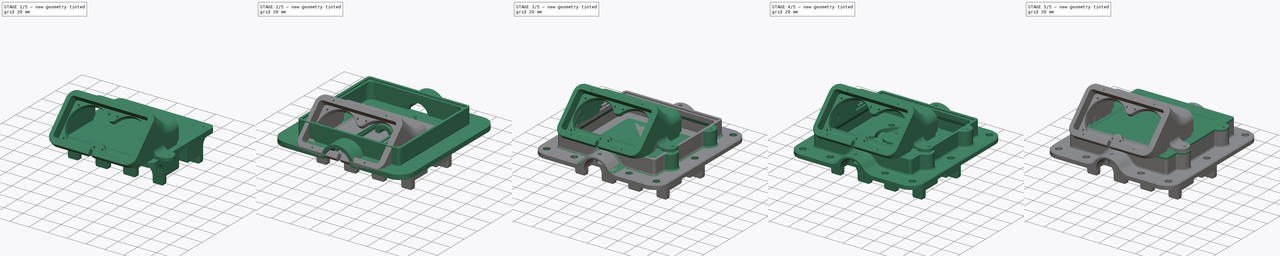
[diagram: build sequence overview — one tinted view per stage of 5, left to right]
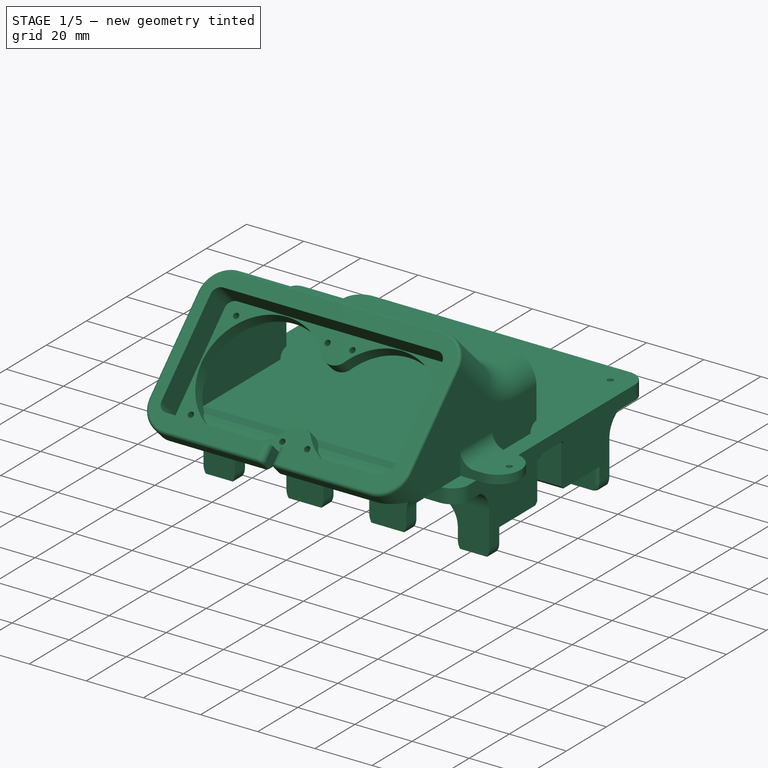
[diagram: stage 1 of 5 — iso view after this stage's code; geometry added in this stage tinted green]
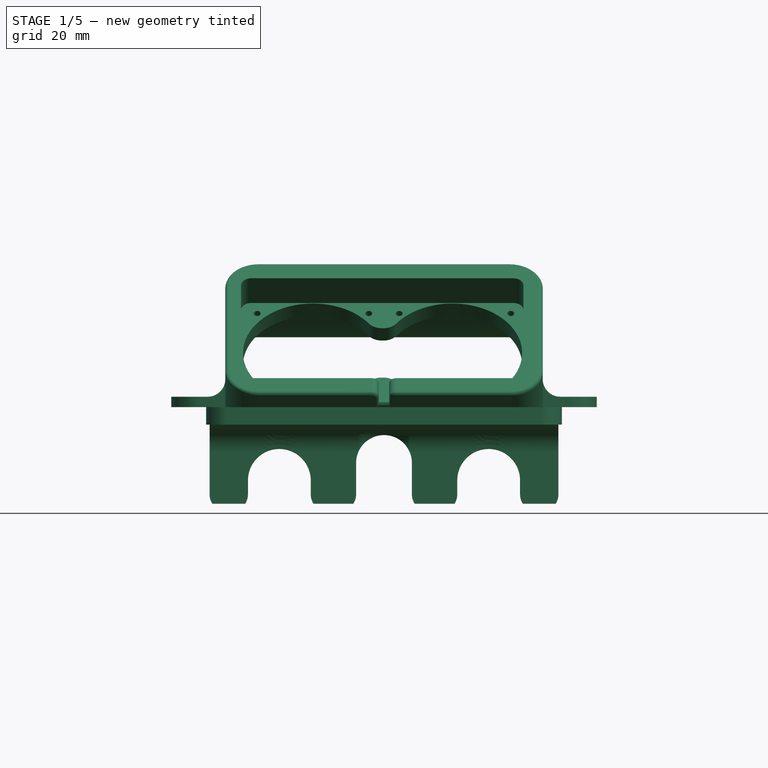
[diagram: stage 1 of 5 — front view after this stage's code; geometry added in this stage tinted green]
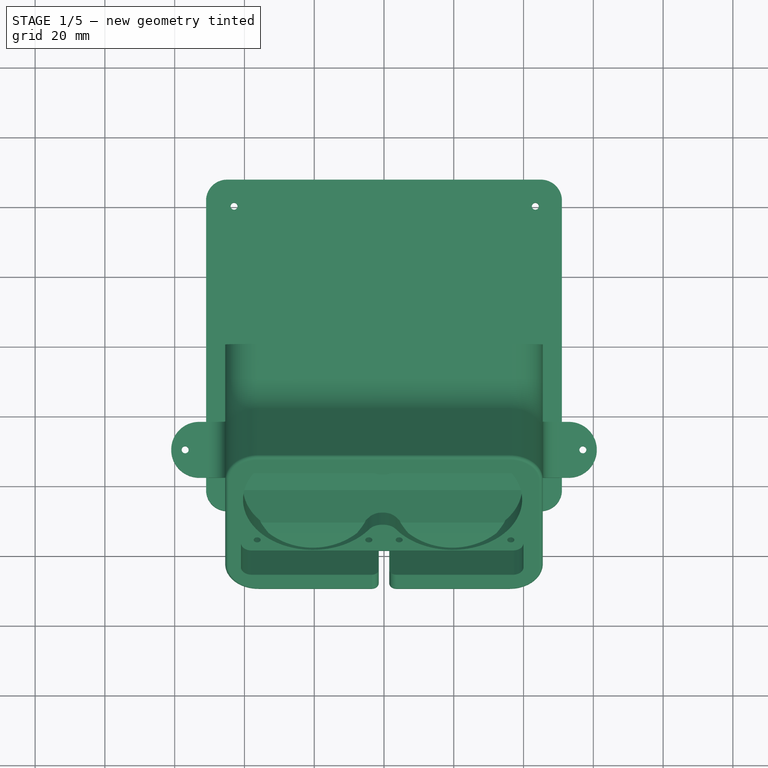
[diagram: stage 1 of 5 — top view after this stage's code; geometry added in this stage tinted green]
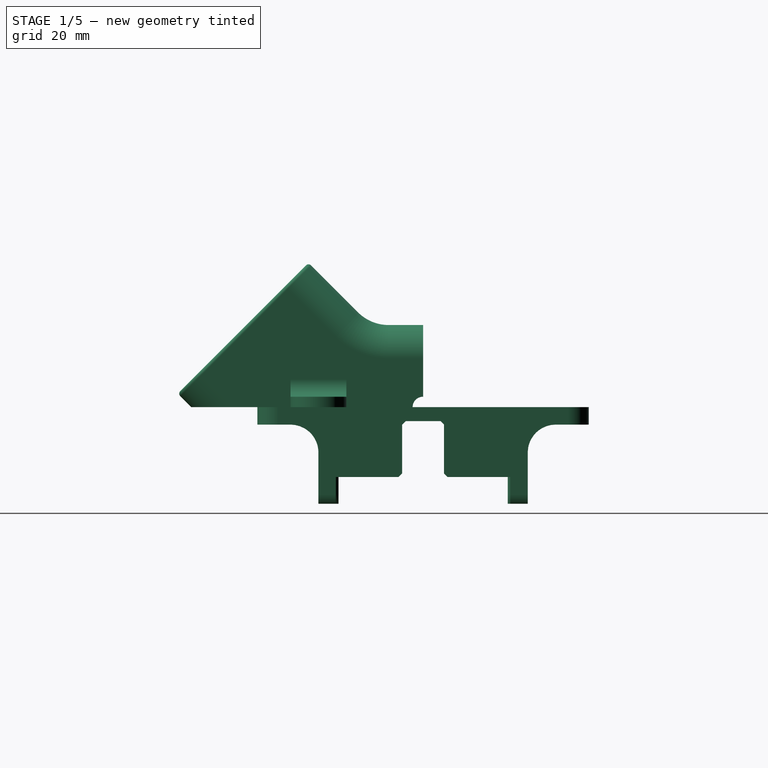
[diagram: stage 1 of 5 — right view after this stage's code; geometry added in this stage tinted green]
FCSTD DOCUMENT  (FreeCAD 0.19R24291 (Git))
Label: HeatExchangerCore
License: All rights reserved
LicenseURL: http://en.wikipedia.org/wiki/All_rights_reserved
objects: Sketcher::SketchObject×123, PartDesign::Fillet×69, PartDesign::Pocket×53, PartDesign::Body×53, PartDesign::Pad×50, App::Part×27, PartDesign::FeatureBase×18, PartDesign::Plane×16, PartDesign::Chamfer×15, PartDesign::Hole×13, PartDesign::PolarPattern×10, PartDesign::Revolution×4, PartDesign::LinearPattern×4, PartDesign::Mirrored×2, PartDesign::AdditivePipe×2, PartDesign::Thickness×1
note: 640 computed .brp shape members not serialized (recipe doc carries the construction recipe); baked Part::Feature solids carry a one-line shape summary decoded from their .brp

FEATURE [PartDesign::Body] Body044  label="Components-boundingbox"
  Group = -> [Sketch088,Pad036]
  Origin = -> Origin072
  Placement = pos=(0,0,1.5) rot=(0,0,1;0rad)
  Tip = -> Pad036
FEATURE [Sketcher::SketchObject] Sketch089
  FullyConstrained = true
  MapMode = 5
  Placement = pos=(0,0,0) rot=(0.57735,0.57735,0.57735;2.0944rad)
  Support = -> [YZ_Plane074]
  sketch-geometry (4):
    g0: LineSegment StartX=-30 StartY=0 StartZ=0 EndX=30 EndY=0 EndZ=0
    g1: LineSegment StartX=30 StartY=0 StartZ=0 EndX=30 EndY=-30 EndZ=0
    g2: LineSegment StartX=30 StartY=-30 StartZ=0 EndX=-30 EndY=-30 EndZ=0
    g3: LineSegment StartX=-30 StartY=-30 StartZ=0 EndX=-30 EndY=0 EndZ=0
  constraints (12):
    c: Coincident(g0,g1)
    c: Coincident(g1,g2)
    c: Coincident(g2,g3)
    c: Coincident(g3,g0)
    c: Horizontal(g0)
    c: Horizontal(g2)
    c: Vertical(g1)
    c: Vertical(g3)
    c: PointOnObject(g0,g-1)
    c: DistanceX(g0,g0) = 60
    c: DistanceY(g1,g1) = 30
    c: DistanceX(g-1,g0) = 30
FEATURE [PartDesign::Pad] Pad037
  Direction = (1,1,1)
  Length = 50
  Length2 = 50
  Placement = pos=(0,0,0) rot=(0.57735,0.57735,0.57735;2.0944rad)
  Profile = -> Sketch089
  Reversed = true
  Type = 4
FEATURE [Sketcher::SketchObject] Sketch090
  FullyConstrained = true
  MapMode = 5
  Placement = pos=(-50,1.1e-14,-1.1e-14) rot=(0.57735,0.57735,-0.57735;4.18879rad)
  Support = -> [Pad037]
  sketch-geometry (8):
    g0: LineSegment StartX=24.25 StartY=32.2 StartZ=0 EndX=-24.25 EndY=32.2 EndZ=0
    g1: LineSegment StartX=-24.25 StartY=32.2 StartZ=0 EndX=-24.25 EndY=20 EndZ=0
    g2: LineSegment StartX=24.25 StartY=20 StartZ=0 EndX=24.25 EndY=32.2 EndZ=0
    g3: LineSegment StartX=24.25 StartY=20 StartZ=0 EndX=6 EndY=20 EndZ=0
    g4: LineSegment StartX=6 StartY=20 StartZ=0 EndX=6 EndY=4 EndZ=0
    g5: LineSegment StartX=6 StartY=4 StartZ=0 EndX=-6 EndY=4 EndZ=0
    g6: LineSegment StartX=-6 StartY=4 StartZ=0 EndX=-6 EndY=20 EndZ=0
    g7: LineSegment StartX=-6 StartY=20 StartZ=0 EndX=-24.25 EndY=20 EndZ=0
  constraints (23):
    c: Coincident(g0,g1)
    c: Coincident(g2,g0)
    c: Horizontal(g0)
    c: Vertical(g1)
    c: Vertical(g2)
    c: DistanceX(g1,g2) = 48.5
    c: DistanceY(g-1,g0) = 32.2
    c: DistanceY(g-1,g2) = 20
    c: DistanceX(g-1,g2) = 24.25
    c: Coincident(g3,g2)
    c: Horizontal(g3)
    c: Coincident(g4,g3)
    c: Vertical(g4)
    c: Coincident(g5,g4)
    c: Horizontal(g5)
    c: Coincident(g6,g5)
    c: Vertical(g6)
    c: Coincident(g7,g6)
    c: Coincident(g7,g1)
    c: DistanceY(g-1,g4) = 4
    c: Tangent(g3,g7)
    c: DistanceX(g5,g5) = 12
    c: DistanceX(g5,g-1) = 6
FEATURE [Sketcher::SketchObject] Sketch091
  FullyConstrained = true
  MapMode = 5
  Support = -> [XY_Plane074]
  sketch-geometry (4):
    g0: LineSegment StartX=-51 StartY=47.5 StartZ=0 EndX=51 EndY=47.5 EndZ=0
    g1: LineSegment StartX=51 StartY=47.5 StartZ=0 EndX=51 EndY=-47.5 EndZ=0
    g2: LineSegment StartX=51 StartY=-47.5 StartZ=0 EndX=-51 EndY=-47.5 EndZ=0
    g3: LineSegment StartX=-51 StartY=-47.5 StartZ=0 EndX=-51 EndY=47.5 EndZ=0
  constraints (12):
    c: Coincident(g0,g1)
    c: Coincident(g1,g2)
    c: Coincident(g2,g3)
    c: Coincident(g3,g0)
    c: Horizontal(g0)
    c: Horizontal(g2)
    c: Vertical(g1)
    c: Vertical(g3)
    c: DistanceX(g0,g0) = 102
    c: DistanceY(g1,g1) = 95
    c: DistanceX(g-1,g0) = 51
    c: DistanceY(g-1,g0) = 47.5
FEATURE [PartDesign::Pad] Pad038
  BaseFeature = -> Pad037
  Direction = (1,1,1)
  Length = 5
  Length2 = 100
  Placement = pos=(0,0,0) rot=(0.57735,0.57735,0.57735;2.0944rad)
  Profile = -> Sketch091
  Reversed = true
  Type = 0
FEATURE [PartDesign::Pocket] Pocket026
  BaseFeature = -> Pad038
  Length = 102
  Length2 = 14
  Placement = pos=(0,0,0) rot=(0.57735,0.57735,0.57735;2.0944rad)
  Profile = -> Sketch090
  Type = 4
FEATURE [Sketcher::SketchObject] Sketch092
  ExternalGeometry = -> [Pocket026]
  FullyConstrained = false
  MapMode = 5
  Placement = pos=(0,0,0) rot=(1,0,0;1.5708rad)
  Support = -> [XZ_Plane074]
  sketch-geometry (14):
    g0: LineSegment StartX=-39 StartY=-30 StartZ=0 EndX=-39 EndY=-21 EndZ=0
    g1: ArcOfCircle CenterX=-30 CenterY=-21 CenterZ=0 NormalX=0 NormalY=0 NormalZ=1 AngleXU=0 Radius=9 StartAngle=0 EndAngle=3.14159
    g2: LineSegment StartX=-21 StartY=-21 StartZ=0 EndX=-21 EndY=-30 EndZ=0
    g3: LineSegment StartX=-74.2085 StartY=-21 StartZ=0 EndX=62.652 EndY=-21 EndZ=0
    g4: LineSegment StartX=-39 StartY=-30 StartZ=0 EndX=-21 EndY=-30 EndZ=0
    g5: ArcOfCircle CenterX=30 CenterY=-21 CenterZ=0 NormalX=0 NormalY=0 NormalZ=1 AngleXU=0 Radius=9 StartAngle=0 EndAngle=3.14159
    g6: LineSegment StartX=39 StartY=-21 StartZ=0 EndX=39 EndY=-30 EndZ=0
    g7: LineSegment StartX=39 StartY=-30 StartZ=0 EndX=21 EndY=-30 EndZ=0
    g8: LineSegment StartX=21 StartY=-21 StartZ=0 EndX=21 EndY=-30 EndZ=0
    g9: ArcOfCircle CenterX=0 CenterY=-16 CenterZ=0 NormalX=0 NormalY=0 NormalZ=1 AngleXU=0 Radius=8 StartAngle=0 EndAngle=3.14159
    g10: LineSegment StartX=8 StartY=-16 StartZ=0 EndX=8 EndY=-30 EndZ=0
    g11: LineSegment StartX=-8 StartY=-16 StartZ=0 EndX=-8 EndY=-30 EndZ=0
    g12: LineSegment StartX=-16.0535 StartY=-16 StartZ=0 EndX=17.83 EndY=-16 EndZ=0
    g13: LineSegment StartX=-8 StartY=-30 StartZ=0 EndX=8 EndY=-30 EndZ=0
  constraints (39):
    c: Vertical(g0)
    c: Coincident(g1,g0)
    c: Coincident(g2,g1)
    c: Vertical(g2)
    c: Horizontal(g3)
    c: PointOnObject(g1,g3)
    c: PointOnObject(g1,g3)
    c: PointOnObject(g0,g3)
    c: DistanceX(g0,g2) = 18
    c: Coincident(g4,g0)
    c: Coincident(g4,g2)
    c: Horizontal(g4)
    c: DistanceX(g1,g-1) = 30
    c: PointOnObject(g5,g3)
    c: PointOnObject(g5,g3)
    c: PointOnObject(g5,g3)
    c: Vertical(g6)
    c: Horizontal(g7)
    c: Coincident(g6,g5)
    c: Coincident(g8,g5)
    c: Coincident(g8,g7)
    c: Vertical(g8)
    c: Radius(g5) = 9
    c: DistanceX(g-1,g5) = 30
    c: Coincident(g6,g7)
    c: PointOnObject(g9,g-2)
    c: Vertical(g10)
    c: Vertical(g11)
    c: Radius(g9) = 8
    c: Coincident(g9,g11)
    c: Coincident(g9,g10)
    c: Horizontal(g12)
    c: PointOnObject(g9,g12)
    c: PointOnObject(g9,g12)
    c: PointOnObject(g9,g12)
    c: Coincident(g13,g11)
    c: Coincident(g13,g10)
    c: Horizontal(g13)
    c: DistanceY(g9,g-1) = 16
FEATURE [PartDesign::Pocket] Pocket027
  BaseFeature = -> Pocket026
  Length = 50
  Length2 = 100
  Placement = pos=(0,0,0) rot=(0.57735,0.57735,0.57735;2.0944rad)
  Profile = -> Sketch092
  Type = 4
FEATURE [PartDesign::Fillet] Fillet045
  Base = -> Pocket027 [Edge159,Edge77,Edge156,Edge90,Edge95,Edge153,Edge150,Edge59,Edge104,Edge161,Edge166,Edge119,Edge125,Edge167,Edge172,Edge138]
  BaseFeature = -> Pocket027
  Placement = pos=(0,0,0) rot=(0.57735,0.57735,0.57735;2.0944rad)
  Radius = 5
  SupportTransform = false
FEATURE [PartDesign::Fillet] Fillet046
  Base = -> Fillet045 [Edge8,Edge138]
  BaseFeature = -> Fillet045
  Placement = pos=(0,0,0) rot=(0.57735,0.57735,0.57735;2.0944rad)
  Radius = 8
  SupportTransform = false
FEATURE [PartDesign::Fillet] Fillet047
  Base = -> Fillet046 [Edge77,Edge74,Edge85,Edge70]
  BaseFeature = -> Fillet046
  Placement = pos=(0,0,0) rot=(0.57735,0.57735,0.57735;2.0944rad)
  Radius = 6
  SupportTransform = false
FEATURE [App::Part] Part024  label="Board"
  Group = -> [Body044,Body043]
  Origin = -> Origin075
  Placement = pos=(0,0,5.9) rot=(0,0,1;0rad)
FEATURE [PartDesign::Chamfer] Chamfer004
  Angle = 45
  Base = -> Fillet047 [Edge106,Edge105,Edge104,Edge102,Edge100,Edge99,Edge98,Edge40,Edge39,Edge38,Edge36,Edge34,Edge33,Edge32]
  BaseFeature = -> Fillet047
  ChamferType = 0
  FlipDirection = false
  Placement = pos=(0,0,0) rot=(0.57735,0.57735,0.57735;2.0944rad)
  Size = 1
  Size2 = 1
  SupportTransform = false
FEATURE [PartDesign::Chamfer] Chamfer005
  Angle = 45
  Base = -> Chamfer004 [Edge166,Edge239,Edge192,Edge80,Edge250,Edge307,Edge319,Edge267]
  BaseFeature = -> Chamfer004
  ChamferType = 0
  FlipDirection = false
  Placement = pos=(0,0,0) rot=(0.57735,0.57735,0.57735;2.0944rad)
  Size = 0.75
  Size2 = 1
  SupportTransform = false
FEATURE [PartDesign::Body] Body049  label="Spacer4"
  Group = -> [Sketch097,Pad042]
  Origin = -> Origin079
  Placement = pos=(-43,40.1,0.4) rot=(0,0,1;0rad)
  Tip = -> Pad042
FEATURE [Sketcher::SketchObject] Sketch098
  ExternalGeometry = -> [Chamfer005]
  FullyConstrained = false
  MapMode = 5
  Support = -> [XY_Plane074]
  sketch-geometry (8):
    g0: LineSegment StartX=-82.9846 StartY=39.88 StartZ=0 EndX=71.0657 EndY=39.88 EndZ=0
    g1: LineSegment StartX=43.38 StartY=49.8048 StartZ=0 EndX=43.38 EndY=-54.7579 EndZ=0
    g2: LineSegment StartX=-75.19 StartY=-40.12 StartZ=0 EndX=79.4589 EndY=-40.12 EndZ=0
    g3: LineSegment StartX=-42.98 StartY=51.4195 StartZ=0 EndX=-42.98 EndY=-56.5354 EndZ=0
    g4: Circle CenterX=43.38 CenterY=39.88 CenterZ=0 NormalX=0 NormalY=0 NormalZ=1 AngleXU=0 Radius=1
    g5: Circle CenterX=43.38 CenterY=-40.12 CenterZ=0 NormalX=0 NormalY=0 NormalZ=1 AngleXU=0 Radius=1
    g6: Circle CenterX=-42.98 CenterY=39.88 CenterZ=0 NormalX=0 NormalY=0 NormalZ=1 AngleXU=0 Radius=1
    g7: Circle CenterX=-42.98 CenterY=-40.12 CenterZ=0 NormalX=0 NormalY=0 NormalZ=1 AngleXU=0 Radius=1
  constraints (20):
    c: Horizontal(g0)
    c: Vertical(g1)
    c: Horizontal(g2)
    c: Vertical(g3)
    c: DistanceX(g1,g-4) = 7.62
    c: DistanceY(g0,g-3) = 7.62
    c: PointOnObject(g4,g1)
    c: PointOnObject(g4,g0)
    c: PointOnObject(g5,g1)
    c: PointOnObject(g5,g2)
    c: DistanceY(g5,g4) = 80
    c: PointOnObject(g6,g0)
    c: PointOnObject(g6,g3)
    c: DistanceX(g6,g4) = 86.36
    c: PointOnObject(g7,g3)
    c: PointOnObject(g7,g2)
    c: Radius(g4) = 1
    c: Equal(g4,g5)
    c: Equal(g5,g7)
    c: Equal(g7,g6)
FEATURE [PartDesign::Pocket] Pocket028
  BaseFeature = -> Chamfer005
  Length = 5
  Length2 = 100
  Placement = pos=(0,0,0) rot=(0.57735,0.57735,0.57735;2.0944rad)
  Profile = -> Sketch098
  Type = 1
FEATURE [PartDesign::Chamfer] Chamfer006
  Angle = 45
  Base = -> Pocket028 [Edge122,Edge51]
  BaseFeature = -> Pocket028
  ChamferType = 0
  FlipDirection = false
  Placement = pos=(0,0,0) rot=(0.57735,0.57735,0.57735;2.0944rad)
  Size = 1
  Size2 = 1
  SupportTransform = false
FEATURE [PartDesign::Plane] DatumPlane012
  AttachmentOffset = pos=(0,0,26) rot=(-1,0,0;0.261799rad)
  Length = 142.691
  MapMode = 2
  Placement = pos=(0,-26,-5.8e-15) rot=(1,0,0;1.309rad)
  ResizeMode = 0
  Support = -> [XZ_Plane082]
  Width = 109.013
FEATURE [PartDesign::Plane] DatumPlane013
  AttachmentOffset = pos=(0,0,9.5) rot=(0,0,1;0rad)
  Length = 139.877
  MapMode = 5
  Placement = pos=(0,-9.5,-2.1e-15) rot=(1,0,0;1.5708rad)
  ResizeMode = 0
  Support = -> [XZ_Plane082]
  Width = 83.8836
FEATURE [Sketcher::SketchObject] Sketch106
  FullyConstrained = true
  MapMode = 5
  Placement = pos=(0,-26,-5.3e-15) rot=(1,0,0;1.309rad)
  Support = -> [DatumPlane012]
  sketch-geometry (6):
    g0: LineSegment StartX=-34 StartY=24.5 StartZ=0 EndX=38 EndY=24.5 EndZ=0
    g1: LineSegment StartX=-40 StartY=0 StartZ=0 EndX=44 EndY=0 EndZ=0
    g2: LineSegment StartX=-40 StartY=18.5 StartZ=0 EndX=-40 EndY=0 EndZ=0
    g3: LineSegment StartX=44 StartY=18.5 StartZ=0 EndX=44 EndY=0 EndZ=0
    g4: ArcOfCircle CenterX=38 CenterY=18.5 CenterZ=0 NormalX=0 NormalY=0 NormalZ=1 AngleXU=0 Radius=6 StartAngle=-9e-16 EndAngle=1.5708
    g5: ArcOfCircle CenterX=-34 CenterY=18.5 CenterZ=0 NormalX=0 NormalY=0 NormalZ=1 AngleXU=0 Radius=6 StartAngle=1.5708 EndAngle=3.14159
  constraints (15):
    c: Horizontal(g0)
    c: Vertical(g2)
    c: Vertical(g3)
    c: Tangent(g0,g4) = 1.5708
    c: Tangent(g3,g4) = 1.5708
    c: Tangent(g0,g5) = 1.5708
    c: Tangent(g2,g5) = -1.5708
    c: DistanceX(g2,g-1) = 40
    c: DistanceX(g2,g3) = 84
    c: DistanceY(g-1,g0) = 24.5
    c: Radius(g4) = 6
    c: Equal(g5,g4)
    c: Tangent(g1,g-1) = -1.5708
    c: Coincident(g1,g3)
    c: Coincident(g2,g1)
FEATURE [Sketcher::SketchObject] Sketch107
  FullyConstrained = true
  MapMode = 5
  Placement = pos=(0,-9.5,-2.1e-15) rot=(1,0,0;1.5708rad)
  Support = -> [DatumPlane013]
  sketch-geometry (6):
    g0: LineSegment StartX=-34 StartY=20 StartZ=0 EndX=38 EndY=20 EndZ=0
    g1: LineSegment StartX=44 StartY=14 StartZ=0 EndX=44 EndY=0 EndZ=0
    g2: LineSegment StartX=44 StartY=0 StartZ=0 EndX=-40 EndY=-1.03e-14 EndZ=0
    g3: LineSegment StartX=-40 StartY=-1.03e-14 StartZ=0 EndX=-40 EndY=14 EndZ=0
    g4: ArcOfCircle CenterX=38 CenterY=14 CenterZ=0 NormalX=0 NormalY=0 NormalZ=1 AngleXU=0 Radius=6 StartAngle=-9e-16 EndAngle=1.5708
    g5: ArcOfCircle CenterX=-34 CenterY=14 CenterZ=0 NormalX=0 NormalY=0 NormalZ=1 AngleXU=0 Radius=6 StartAngle=1.5708 EndAngle=3.14159
  constraints (15):
    c: Horizontal(g0)
    c: Vertical(g1)
    c: Vertical(g3)
    c: Tangent(g0,g4) = 1.5708
    c: Tangent(g1,g4) = 1.5708
    c: Tangent(g3,g5) = 1.5708
    c: Tangent(g0,g5) = 1.5708
    c: DistanceX(g3,g1) = 84
    c: Tangent(g2,g-1) = 1.5708
    c: DistanceX(g3,g-1) = 40
    c: DistanceY(g-1,g0) = 20
    c: Radius(g4) = 6
    c: Coincident(g2,g1)
    c: Coincident(g3,g2)
    c: Equal(g5,g4)
FEATURE [PartDesign::Plane] DatumPlane014
  AttachmentOffset = pos=(0,0,53) rot=(-1,0,0;0.785398rad)
  Length = 145.496
  MapMode = 5
  Placement = pos=(0,-53,-1.18e-14) rot=(1,0,0;0.785398rad)
  ResizeMode = 0
  Support = -> [XZ_Plane082]
  Width = 137.293
FEATURE [Sketcher::SketchObject] Sketch108
  FullyConstrained = true
  MapMode = 5
  Placement = pos=(0,-53,-1.07e-14) rot=(1,0,0;0.785398rad)
  Support = -> [DatumPlane014]
  sketch-geometry (6):
    g0: LineSegment StartX=-36 StartY=40 StartZ=0 EndX=36 EndY=40 EndZ=0
    g1: LineSegment StartX=42 StartY=34 StartZ=0 EndX=42 EndY=0 EndZ=0
    g2: LineSegment StartX=42 StartY=0 StartZ=0 EndX=-42 EndY=0 EndZ=0
    g3: LineSegment StartX=-42 StartY=0 StartZ=0 EndX=-42 EndY=34 EndZ=0
    g4: ArcOfCircle CenterX=-36 CenterY=34 CenterZ=0 NormalX=0 NormalY=0 NormalZ=1 AngleXU=0 Radius=6 StartAngle=1.5708 EndAngle=3.14159
    g5: ArcOfCircle CenterX=36 CenterY=34 CenterZ=0 NormalX=0 NormalY=0 NormalZ=1 AngleXU=0 Radius=6 StartAngle=2e-16 EndAngle=1.5708
  constraints (16):
    c: Coincident(g1,g2)
    c: Coincident(g2,g3)
    c: Horizontal(g0)
    c: Horizontal(g2)
    c: Vertical(g1)
    c: Vertical(g3)
    c: PointOnObject(g1,g-1)
    c: DistanceX(g-1,g1) = 42
    c: Tangent(g0,g4) = 1.5708
    c: Tangent(g3,g4) = 1.5708
    c: Tangent(g0,g5) = 1.5708
    c: Tangent(g1,g5) = 1.5708
    c: Radius(g5) = 6
    c: Equal(g5,g4)
    c: DistanceX(g3,g1) = 84
    c: DistanceY(g-1,g0) = 40
FEATURE [Sketcher::SketchObject] Sketch109
  FullyConstrained = false
  MapMode = 5
  Placement = pos=(0,0,0) rot=(0.57735,0.57735,0.57735;2.0944rad)
  Support = -> [YZ_Plane082]
  sketch-geometry (4):
    g0: LineSegment StartX=-59.0434 StartY=0 StartZ=0 EndX=56.4247 EndY=0 EndZ=0
    g1: LineSegment StartX=56.4247 StartY=0 StartZ=0 EndX=56.4247 EndY=-38.6622 EndZ=0
    g2: LineSegment StartX=56.4247 StartY=-38.6622 StartZ=0 EndX=-59.0434 EndY=-38.6622 EndZ=0
    g3: LineSegment StartX=-59.0434 StartY=-38.6622 StartZ=0 EndX=-59.0434 EndY=0 EndZ=0
  constraints (9):
    c: Coincident(g0,g1)
    c: Coincident(g1,g2)
    c: Coincident(g2,g3)
    c: Coincident(g3,g0)
    c: Horizontal(g0)
    c: Horizontal(g2)
    c: Vertical(g1)
    c: Vertical(g3)
    c: PointOnObject(g0,g-1)
FEATURE [Sketcher::SketchObject] Sketch110
  FullyConstrained = false
  MapMode = 5
  Placement = pos=(0,0,0) rot=(0.57735,0.57735,0.57735;2.0944rad)
  Support = -> [YZ_Plane082]
  sketch-geometry (4):
    g0: LineSegment StartX=-59.6877 StartY=0 StartZ=0 EndX=64.4245 EndY=0 EndZ=0
    g1: LineSegment StartX=64.4245 StartY=0 StartZ=0 EndX=64.4245 EndY=-15.0574 EndZ=0
    g2: LineSegment StartX=64.4245 StartY=-15.0574 StartZ=0 EndX=-59.6877 EndY=-15.0574 EndZ=0
    g3: LineSegment StartX=-59.6877 StartY=-15.0574 StartZ=0 EndX=-59.6877 EndY=0 EndZ=0
  constraints (9):
    c: Coincident(g0,g1)
    c: Coincident(g1,g2)
    c: Coincident(g2,g3)
    c: Coincident(g3,g0)
    c: Horizontal(g0)
    c: Horizontal(g2)
    c: Vertical(g1)
    c: Vertical(g3)
    c: PointOnObject(g0,g-1)
FEATURE [Sketcher::SketchObject] Sketch113
  FullyConstrained = true
  MapMode = 5
  Placement = pos=(0,0,0) rot=(0.57735,0.57735,0.57735;2.0944rad)
  Support = -> [YZ_Plane082]
  sketch-geometry (3):
    g0: LineSegment StartX=-24.5 StartY=28 StartZ=0 EndX=-21.1863 EndY=24.6863 EndZ=0
    g1: ArcOfCircle CenterX=-9.87258 CenterY=36 CenterZ=0 NormalX=0 NormalY=0 NormalZ=1 AngleXU=0 Radius=16 StartAngle=3.92699 EndAngle=4.71239
    g2: LineSegment StartX=-9.87258 StartY=20 StartZ=0 EndX=1 EndY=20 EndZ=0
  constraints (9):
    c: Horizontal(g2)
    c: Tangent(g1,g0) = -1.5708
    c: Angle(g0,g-1) = 0.785398
    c: DistanceX(g0,g-1) = 24.5
    c: DistanceY(g-1,g0) = 28
    c: Radius(g1) = 16
    c: DistanceY(g-1,g2) = 20
    c: DistanceX(g-1,g2) = 1
    c: Tangent(g2,g1) = -1.5708
FEATURE [PartDesign::AdditivePipe] AdditivePipe001
  AuxilleryCurvelinear = true
  AuxillerySpineTangent = false
  Binormal = (0,0,0)
  Mode = 0
  Placement = pos=(0,-53,-1.2e-14) rot=(1,0,0;0.785398rad)
  Profile = -> Sketch108
  Spine = -> Sketch113 [Edge1,Edge2,Edge3]
  SpineTangent = false
  Transformation = 0
  Transition = 0
FEATURE [PartDesign::Mirrored] Mirrored002
  BaseFeature = -> AdditivePipe001
  MirrorPlane = -> XZ_Plane082
  Originals = -> [AdditivePipe001]
  Placement = pos=(0,-53,-1.2e-14) rot=(1,0,0;0.785398rad)
FEATURE [PartDesign::Pocket] Pocket032
  BaseFeature = -> Mirrored002
  Length = 100
  Length2 = 100
  Placement = pos=(0,-53,-1.2e-14) rot=(1,0,0;0.785398rad)
  Profile = -> Sketch109
  Type = 4
FEATURE [PartDesign::Thickness] Thickness
  Base = -> Pocket032 [Face1,Face14]
  BaseFeature = -> Pocket032
  Intersection = false
  Join = 1
  Mode = 0
  SupportTransform = false
  Value = 3.5
FEATURE [PartDesign::Pocket] Pocket033
  BaseFeature = -> Thickness
  Length = 100
  Length2 = 100
  Profile = -> Sketch110
  Type = 4
FEATURE [Sketcher::SketchObject] Sketch114
  ExternalGeometry = -> [Pocket033]
  FullyConstrained = false
  MapMode = 5
  Placement = pos=(0,-26.5,26.5) rot=(1,0,0;0.785398rad)
  Support = -> [Pocket033]
  sketch-geometry (6):
    g0: LineSegment StartX=-36 StartY=6.02334 StartZ=0 EndX=36 EndY=6.02334 EndZ=0
    g1: LineSegment StartX=45.5 StartY=-3.47666 StartZ=0 EndX=45.5 EndY=-37.4767 EndZ=0
    g2: LineSegment StartX=45.5 StartY=-37.4767 StartZ=0 EndX=-45.5 EndY=-37.4767 EndZ=0
    g3: LineSegment StartX=-45.5 StartY=-37.4767 StartZ=0 EndX=-45.5 EndY=-3.47666 EndZ=0
    g4: ArcOfCircle CenterX=-36 CenterY=-3.47666 CenterZ=0 NormalX=0 NormalY=0 NormalZ=1 AngleXU=0 Radius=9.5 StartAngle=1.5708 EndAngle=3.14159
    g5: ArcOfCircle CenterX=36 CenterY=-3.47666 CenterZ=0 NormalX=0 NormalY=0 NormalZ=1 AngleXU=0 Radius=9.5 StartAngle=2e-16 EndAngle=1.5708
  constraints (13):
    c: Coincident(g0,g-4)
    c: Coincident(g0,g-3)
    c: Coincident(g1,g-3)
    c: Coincident(g1,g-6)
    c: Coincident(g2,g1)
    c: Coincident(g2,g-5)
    c: Coincident(g3,g2)
    c: Coincident(g3,g-4)
    c: Coincident(g4,g3)
    c: Coincident(g4,g0)
    c: Coincident(g5,g0)
    c: Coincident(g5,g1)
    c: Tangent(g5,g-3)
FEATURE [PartDesign::Pad] Pad044
  BaseFeature = -> Pocket033
  Direction = (1,1,1)
  Length = 15
  Length2 = 100
  Profile = -> Sketch114
  Type = 0
FEATURE [Sketcher::SketchObject] Sketch117
  ExternalGeometry = -> [Pad044]
  FullyConstrained = false
  MapMode = 5
  Placement = pos=(1.6e-15,-37.1066,37.1066) rot=(1,0,0;0.785398rad)
  Support = -> [Pad044]
  sketch-geometry (11):
    g0: LineSegment StartX=49.4651 StartY=9.98846 StartZ=0 EndX=12.7648 EndY=-26.7119 EndZ=0
    g1: LineSegment StartX=-3.94771 StartY=-5.42437 StartZ=0 EndX=-39.2255 EndY=-40.7022 EndZ=0
    g2: LineSegment StartX=-36 StartY=6.02334 StartZ=0 EndX=36 EndY=6.02334 EndZ=0
    g3: ArcOfCircle CenterX=-35.9992 CenterY=-3.47747 CenterZ=0 NormalX=0 NormalY=0 NormalZ=1 AngleXU=0 Radius=9.50081 StartAngle=1.57088 EndAngle=3.14151
    g4: ArcOfCircle CenterX=36 CenterY=-3.47666 CenterZ=0 NormalX=0 NormalY=0 NormalZ=1 AngleXU=0 Radius=9.5 StartAngle=0 EndAngle=1.5708
    g5: LineSegment StartX=-45.5 StartY=-3.47666 StartZ=0 EndX=-45.5 EndY=-37.4767 EndZ=0
    g6: ArcOfCircle CenterX=-36 CenterY=-37.4767 CenterZ=0 NormalX=0 NormalY=0 NormalZ=1 AngleXU=0 Radius=9.5 StartAngle=3.14159 EndAngle=4.71239
    g7: LineSegment StartX=-36 StartY=-46.9767 StartZ=0 EndX=36 EndY=-46.9767 EndZ=0
    g8: ArcOfCircle CenterX=36 CenterY=-37.4767 CenterZ=0 NormalX=0 NormalY=0 NormalZ=1 AngleXU=0 Radius=9.5 StartAngle=4.71239 EndAngle=6.28319
    g9: LineSegment StartX=11.7713 StartY=-13.248 StartZ=0 EndX=54.1111 EndY=-55.5878 EndZ=0
    g10: LineSegment StartX=45.5 StartY=-3.47666 StartZ=0 EndX=45.5 EndY=-37.4767 EndZ=0
  constraints (23):
    c: PointOnObject(g-3,g0)
    c: Angle(g-1,g0) = 0.785398
    c: Parallel(g1,g0)
    c: Coincident(g2,g-4)
    c: Coincident(g2,g-3)
    c: Coincident(g3,g2)
    c: Coincident(g3,g-4)
    c: Coincident(g4,g2)
    c: Coincident(g4,g-3)
    c: Coincident(g5,g3)
    c: PointOnObject(g6,g1)
    c: Tangent(g6,g5) = -1.5708
    c: Horizontal(g7)
    c: Angle(g9,g0) = 1.5708
    c: PointOnObject(g8,g9)
    c: Tangent(g8,g7) = -1.5708
    c: Vertical(g10)
    c: Tangent(g10,g8) = 1.5708
    c: Equal(g-4,g6)
    c: Equal(g6,g8)
    c: Tangent(g7,g6) = -1.5708
    c: Tangent(g10,g4) = 1.5708
    c: Coincident(g5,g-5)
FEATURE [PartDesign::Pad] Pad045
  BaseFeature = -> Pad044
  Direction = (1,1,1)
  Length = 15
  Length2 = 100
  Profile = -> Sketch117
  Reversed = true
  Type = 0
FEATURE [Sketcher::SketchObject] Sketch116
  ExternalGeometry = -> [Pad045]
  FullyConstrained = false
  MapMode = 5
  Placement = pos=(2e-15,-37.1066,37.1066) rot=(1,0,0;0.785398rad)
  sketch-geometry (3):
    g0: Circle CenterX=-20.4035 CenterY=-20.4767 CenterZ=0 NormalX=0 NormalY=0 NormalZ=1 AngleXU=0 Radius=20
    g1: LineSegment StartX=-73.2098 StartY=-20.4767 StartZ=0 EndX=80.1427 EndY=-20.4767 EndZ=0
    g2: Circle CenterX=19.5965 CenterY=-20.4767 CenterZ=0 NormalX=0 NormalY=0 NormalZ=1 AngleXU=0 Radius=20
  constraints (7):
    c: Horizontal(g1)
    c: PointOnObject(g0,g1)
    c: PointOnObject(g2,g1)
    c: Radius(g0) = 20
    c: Radius(g2) = 20
    c: DistanceY(g0,g-3) = 26.5
    c: DistanceX(g0,g2) = 40
FEATURE [PartDesign::Pocket] Pocket034
  BaseFeature = -> Pad045
  Length = 5
  Length2 = 100
  Profile = -> Sketch116
  Type = 1
FEATURE [PartDesign::Pocket] Pocket035
  BaseFeature = -> Pocket034
  Length = 5
  Length2 = 100
  Profile = -> Sketch116
  Type = 1
FEATURE [Sketcher::SketchObject] Sketch118
  ExternalGeometry = -> [Pocket035]
  FullyConstrained = false
  MapMode = 5
  Placement = pos=(1.6e-15,-37.1066,37.1066) rot=(1,0,0;0.785398rad)
  Support = -> [Pocket035]
  sketch-geometry (5):
    g0: LineSegment StartX=-41 StartY=-0.226659 StartZ=0 EndX=40 EndY=-0.226659 EndZ=0
    g1: LineSegment StartX=40 StartY=-0.226659 StartZ=0 EndX=40 EndY=-40.7267 EndZ=0
    g2: LineSegment StartX=40 StartY=-40.7267 StartZ=0 EndX=-41 EndY=-40.7267 EndZ=0
    g3: LineSegment StartX=-41 StartY=-40.7267 StartZ=0 EndX=-41 EndY=-0.226659 EndZ=0
    g4: LineSegment StartX=-61.8206 StartY=-20.4767 StartZ=0 EndX=43.4548 EndY=-20.4767 EndZ=0
  constraints (14):
    c: Coincident(g0,g1)
    c: Coincident(g1,g2)
    c: Coincident(g2,g3)
    c: Coincident(g3,g0)
    c: Horizontal(g0)
    c: Horizontal(g2)
    c: Vertical(g1)
    c: Vertical(g3)
    c: DistanceX(g0,g0) = 81
    c: Horizontal(g4)
    c: PointOnObject(g-3,g4)
    c: DistanceY(g3,g3) = 40.5
    c: DistanceY(g4,g0) = 20.25
    c: DistanceX(g0,g-1) = 41
FEATURE [PartDesign::Pocket] Pocket036
  BaseFeature = -> Pocket035
  Length = 10
  Length2 = 100
  Profile = -> Sketch118
  Type = 0
FEATURE [PartDesign::Fillet] Fillet048
  Base = -> Pocket036 [Edge208,Edge209,Edge211,Edge210]
  BaseFeature = -> Pocket036
  Radius = 3
  SupportTransform = false
FEATURE [Sketcher::SketchObject] Sketch119
  ExternalGeometry = -> [Fillet048]
  FullyConstrained = true
  MapMode = 5
  Placement = pos=(2.5e-15,-30.0355,30.0355) rot=(1,0,0;0.785398rad)
  Support = -> [Fillet048]
  sketch-geometry (5):
    g0: LineSegment StartX=-15.4035 StartY=-10.4767 StartZ=0 EndX=14.5965 EndY=-10.4767 EndZ=0
    g1: LineSegment StartX=14.5965 StartY=-10.4767 StartZ=0 EndX=14.5965 EndY=-30.4767 EndZ=0
    g2: LineSegment StartX=14.5965 StartY=-30.4767 StartZ=0 EndX=-15.4035 EndY=-30.4767 EndZ=0
    g3: LineSegment StartX=-15.4035 StartY=-30.4767 StartZ=0 EndX=-15.4035 EndY=-10.4767 EndZ=0
    g4: LineSegment StartX=-20.4035 StartY=-20.4767 StartZ=0 EndX=19.5965 EndY=-20.4767 EndZ=0
  constraints (14):
    c: Coincident(g0,g1)
    c: Coincident(g1,g2)
    c: Coincident(g2,g3)
    c: Coincident(g3,g0)
    c: Horizontal(g0)
    c: Horizontal(g2)
    c: Vertical(g1)
    c: Vertical(g3)
    c: Coincident(g4,g-4)
    c: Coincident(g4,g-3)
    c: DistanceY(g-3,g0) = 10
    c: DistanceY(g1,g1) = 20
    c: DistanceX(g0,g0) = 30
    c: DistanceX(g0,g-3) = 15
FEATURE [PartDesign::Pocket] Pocket037
  BaseFeature = -> Fillet048
  Length = 5
  Length2 = 100
  Profile = -> Sketch119
  Type = 0
FEATURE [PartDesign::Fillet] Fillet049
  Base = -> Pocket037 [Edge34,Edge32,Edge39,Edge41]
  BaseFeature = -> Pocket037
  Radius = 4.5
  SupportTransform = false
FEATURE [Sketcher::SketchObject] Sketch120
  FullyConstrained = false
  MapMode = 5
  Placement = pos=(0,0,0) rot=(0.57735,0.57735,0.57735;2.0944rad)
  Support = -> [YZ_Plane082]
  sketch-geometry (4):
    g0: LineSegment StartX=0 StartY=40.1191 StartZ=0 EndX=69.4064 EndY=40.1191 EndZ=0
    g1: LineSegment StartX=69.4064 StartY=40.1191 StartZ=0 EndX=69.4064 EndY=-7.46215 EndZ=0
    g2: LineSegment StartX=69.4064 StartY=-7.46215 StartZ=0 EndX=0 EndY=-7.46215 EndZ=0
    g3: LineSegment StartX=0 StartY=-7.46215 StartZ=0 EndX=0 EndY=40.1191 EndZ=0
  constraints (9):
    c: Coincident(g0,g1)
    c: Coincident(g1,g2)
    c: Coincident(g2,g3)
    c: Coincident(g3,g0)
    c: Horizontal(g0)
    c: Horizontal(g2)
    c: Vertical(g1)
    c: Vertical(g3)
    c: PointOnObject(g0,g-2)
FEATURE [PartDesign::Pocket] Pocket038
  BaseFeature = -> Fillet049
  Length = 100
  Length2 = 100
  Profile = -> Sketch120
  Type = 4
FEATURE [Sketcher::SketchObject] Sketch121
  FullyConstrained = true
  MapMode = 5
  Support = -> [XY_Plane082]
  sketch-geometry (8):
    g0: ArcOfCircle CenterX=-53 CenterY=-30 CenterZ=0 NormalX=0 NormalY=0 NormalZ=1 AngleXU=0 Radius=8 StartAngle=1.5708 EndAngle=4.71239
    g1: LineSegment StartX=-53 StartY=-22 StartZ=0 EndX=-44 EndY=-22 EndZ=0
    g2: LineSegment StartX=-53 StartY=-38 StartZ=0 EndX=-44 EndY=-38 EndZ=0
    g3: LineSegment StartX=-44 StartY=-38 StartZ=0 EndX=-44 EndY=-22 EndZ=0
    g4: ArcOfCircle CenterX=53 CenterY=-30 CenterZ=0 NormalX=0 NormalY=0 NormalZ=1 AngleXU=0 Radius=8 StartAngle=4.71239 EndAngle=7.85398
    g5: LineSegment StartX=53 StartY=-22 StartZ=0 EndX=44 EndY=-22 EndZ=0
    g6: LineSegment StartX=44 StartY=-22 StartZ=0 EndX=44 EndY=-38 EndZ=0
    g7: LineSegment StartX=44 StartY=-38 StartZ=0 EndX=53 EndY=-38 EndZ=0
  constraints (22):
    c: Horizontal(g1)
    c: Horizontal(g2)
    c: Coincident(g3,g2)
    c: Coincident(g3,g1)
    c: Vertical(g3)
    c: Radius(g0) = 8
    c: Tangent(g1,g0) = 1.5708
    c: Tangent(g2,g0) = -1.5708
    c: DistanceY(g0,g-1) = 30
    c: DistanceX(g1,g-1) = 44
    c: DistanceX(g0,g-1) = 53
    c: Horizontal(g5)
    c: Coincident(g6,g5)
    c: Vertical(g6)
    c: Coincident(g7,g6)
    c: Horizontal(g7)
    c: Radius(g4) = 8
    c: Tangent(g5,g4) = -1.5708
    c: Tangent(g7,g4) = -1.5708
    c: DistanceX(g-1,g4) = 53
    c: DistanceY(g4,g-1) = 30
    c: DistanceX(g-1,g5) = 44
FEATURE [PartDesign::Pad] Pad046
  BaseFeature = -> Pocket038
  Direction = (1,1,1)
  Length = 3
  Length2 = 100
  Profile = -> Sketch121
  Type = 0
FEATURE [PartDesign::Fillet] Fillet050
  Base = -> Pad046 [Edge171,Edge141]
  BaseFeature = -> Pad046
  Radius = 5
  SupportTransform = false
FEATURE [Sketcher::SketchObject] Sketch122
  ExternalGeometry = -> [Fillet050]
  FullyConstrained = false
  MapMode = 5
  Support = -> [XY_Plane082]
  sketch-geometry (3):
    g0: Circle CenterX=-57 CenterY=-30 CenterZ=0 NormalX=0 NormalY=0 NormalZ=1 AngleXU=0 Radius=1
    g1: LineSegment StartX=-87.4817 StartY=-30 StartZ=0 EndX=111.839 EndY=-30 EndZ=0
    g2: Circle CenterX=57 CenterY=-30 CenterZ=0 NormalX=0 NormalY=0 NormalZ=1 AngleXU=0 Radius=1
  constraints (8):
    c: Horizontal(g1)
    c: PointOnObject(g-3,g1)
    c: PointOnObject(g0,g1)
    c: Radius(g0) = 1
    c: DistanceX(g0,g-1) = 57
    c: PointOnObject(g2,g1)
    c: DistanceX(g-1,g2) = 57
    c: Equal(g2,g0)
FEATURE [PartDesign::Pocket] Pocket039
  BaseFeature = -> Fillet050
  Length = 5
  Length2 = 100
  Profile = -> Sketch122
  Reversed = true
  Type = 0
FEATURE [Sketcher::SketchObject] Sketch123
  ExternalGeometry = -> [Pocket039]
  FullyConstrained = true
  MapMode = 5
  Placement = pos=(0,0,0) rot=(0.57735,0.57735,0.57735;2.0944rad)
  Support = -> [YZ_Plane082]
  sketch-geometry (6):
    g0: LineSegment StartX=-53.8578 StartY=3 StartZ=0 EndX=-50.8578 EndY=3 EndZ=0
    g1: LineSegment StartX=-59.5 StartY=-4e-16 StartZ=0 EndX=-53.8578 EndY=3 EndZ=0
    g2: LineSegment StartX=-50.8578 StartY=3 StartZ=0 EndX=-41.5 EndY=-4e-16 EndZ=0
    g3: LineSegment StartX=-41.5 StartY=-4e-16 StartZ=0 EndX=-53 EndY=-3e-15 EndZ=0
    g4: LineSegment StartX=-53 StartY=-3e-15 StartZ=0 EndX=-56.25 EndY=-3.25 EndZ=0
    g5: LineSegment StartX=-56.25 StartY=-3.25 StartZ=0 EndX=-59.5 EndY=-4e-16 EndZ=0
  constraints (17):
    c: Horizontal(g0)
    c: PointOnObject(g1,g-1)
    c: Coincident(g1,g0)
    c: DistanceX(g0,g0) = 3
    c: Coincident(g2,g0)
    c: PointOnObject(g2,g-1)
    c: DistanceY(g1,g0) = 3
    c: DistanceX(g1,g-1) = 59.5
    c: Coincident(g3,g2)
    c: Coincident(g5,g4)
    c: Coincident(g5,g1)
    c: Coincident(g4,g-3)
    c: Coincident(g3,g4)
    c: Parallel(g4,g-3)
    c: Angle(g4,g5) = 1.5708
    c: DistanceX(g1,g2) = 18
    c: Angle(g-1,g1) = 0.488692
FEATURE [PartDesign::Pad] Pad047
  BaseFeature = -> Pocket039
  Direction = (1,1,1)
  Length = 44
  Length2 = 44
  Profile = -> Sketch123
  Type = 4
FEATURE [Sketcher::SketchObject] Sketch124
  FullyConstrained = false
  MapMode = 5
  Placement = pos=(0,0,0) rot=(0.57735,0.57735,0.57735;2.0944rad)
  Support = -> [YZ_Plane082]
  sketch-geometry (4):
    g0: LineSegment StartX=-74.8698 StartY=0 StartZ=0 EndX=-38.5412 EndY=0 EndZ=0
    g1: LineSegment StartX=-38.5412 StartY=0 StartZ=0 EndX=-38.5412 EndY=-10.6742 EndZ=0
    g2: LineSegment StartX=-38.5412 StartY=-10.6742 StartZ=0 EndX=-74.8698 EndY=-10.6742 EndZ=0
    g3: LineSegment StartX=-74.8698 StartY=-10.6742 StartZ=0 EndX=-74.8698 EndY=0 EndZ=0
  constraints (9):
    c: Coincident(g0,g1)
    c: Coincident(g1,g2)
    c: Coincident(g2,g3)
    c: Coincident(g3,g0)
    c: Horizontal(g0)
    c: Horizontal(g2)
    c: Vertical(g1)
    c: Vertical(g3)
    c: PointOnObject(g0,g-1)
FEATURE [PartDesign::Pocket] Pocket040
  BaseFeature = -> Pad047
  Length = 100
  Length2 = 100
  Profile = -> Sketch124
  Type = 4
FEATURE [Sketcher::SketchObject] Sketch125
  FullyConstrained = false
  MapMode = 5
  Placement = pos=(2.5e-15,-30.0355,30.0355) rot=(1,0,0;0.785398rad)
  Support = -> [Pocket040]
  sketch-geometry (14):
    g0: Circle CenterX=-36.35 CenterY=-4.5 CenterZ=0 NormalX=0 NormalY=0 NormalZ=1 AngleXU=0 Radius=1
    g1: LineSegment StartX=-70.3284 StartY=-4.5 StartZ=0 EndX=53.8786 EndY=-4.5 EndZ=0
    g2: LineSegment StartX=-71.0987 StartY=-36.5 StartZ=0 EndX=53.1084 EndY=-36.5 EndZ=0
    g3: LineSegment StartX=-36.35 StartY=9.81111 StartZ=0 EndX=-36.35 EndY=-46.6113 EndZ=0
    g4: LineSegment StartX=36.35 StartY=10.0821 StartZ=0 EndX=36.35 EndY=-46.3403 EndZ=0
    g5: Circle CenterX=-36.35 CenterY=-36.5 CenterZ=0 NormalX=0 NormalY=0 NormalZ=1 AngleXU=0 Radius=1
    g6: LineSegment StartX=-4.35 StartY=14.0657 StartZ=0 EndX=-4.35 EndY=-52.5197 EndZ=0
    g7: Circle CenterX=-4.35 CenterY=-4.5 CenterZ=0 NormalX=0 NormalY=0 NormalZ=1 AngleXU=0 Radius=1
    g8: Circle CenterX=-4.35 CenterY=-36.5 CenterZ=0 NormalX=0 NormalY=0 NormalZ=1 AngleXU=0 Radius=1
    g9: LineSegment StartX=4.35 StartY=14.0979 StartZ=0 EndX=4.35 EndY=-52.4875 EndZ=0
    g10: Circle CenterX=4.35 CenterY=-4.5 CenterZ=0 NormalX=0 NormalY=0 NormalZ=1 AngleXU=0 Radius=1
    g11: Circle CenterX=4.35 CenterY=-36.5 CenterZ=0 NormalX=0 NormalY=0 NormalZ=1 AngleXU=0 Radius=1
    g12: Circle CenterX=36.35 CenterY=-36.5 CenterZ=0 NormalX=0 NormalY=0 NormalZ=1 AngleXU=0 Radius=1
    g13: Circle CenterX=36.35 CenterY=-4.5 CenterZ=0 NormalX=0 NormalY=0 NormalZ=1 AngleXU=0 Radius=1
  constraints (36):
    c: DistanceX(g0,g-1) = 36.35
    c: Horizontal(g1)
    c: Horizontal(g2)
    c: Vertical(g3)
    c: Vertical(g4)
    c: PointOnObject(g0,g1)
    c: PointOnObject(g0,g3)
    c: DistanceY(g1,g-1) = 4.5
    c: PointOnObject(g5,g3)
    c: PointOnObject(g5,g2)
    c: DistanceY(g5,g0) = 32
    c: Vertical(g6)
    c: PointOnObject(g7,g1)
    c: PointOnObject(g7,g6)
    c: DistanceX(g7,g-1) = 4.35
    c: PointOnObject(g8,g6)
    c: PointOnObject(g8,g2)
    c: Vertical(g9)
    c: DistanceX(g-1,g9) = 4.35
    c: PointOnObject(g10,g1)
    c: PointOnObject(g10,g9)
    c: PointOnObject(g11,g2)
    c: PointOnObject(g11,g9)
    c: PointOnObject(g12,g2)
    c: PointOnObject(g12,g4)
    c: PointOnObject(g13,g4)
    c: PointOnObject(g13,g1)
    c: DistanceX(g-1,g4) = 36.35
    c: Equal(g0,g7)
    c: Equal(g5,g0)
    c: Equal(g0,g8)
    c: Equal(g8,g11)
    c: Equal(g11,g12)
    c: Equal(g12,g13)
    c: Equal(g13,g10)
    c: Radius(g10) = 1
FEATURE [PartDesign::Pocket] Pocket041
  BaseFeature = -> Pocket040
  Length = 5
  Length2 = 100
  Profile = -> Sketch125
  Type = 1
FEATURE [Sketcher::SketchObject] Sketch126
  FullyConstrained = true
  MapMode = 5
  Placement = pos=(0,0,0) rot=(0.57735,0.57735,0.57735;2.0944rad)
  Support = -> [YZ_Plane087]
  sketch-geometry (4):
    g0: LineSegment StartX=-30 StartY=0 StartZ=0 EndX=30 EndY=0 EndZ=0
    g1: LineSegment StartX=30 StartY=0 StartZ=0 EndX=30 EndY=-30 EndZ=0
    g2: LineSegment StartX=30 StartY=-30 StartZ=0 EndX=-30 EndY=-30 EndZ=0
    g3: LineSegment StartX=-30 StartY=-30 StartZ=0 EndX=-30 EndY=0 EndZ=0
  constraints (12):
    c: Coincident(g0,g1)
    c: Coincident(g1,g2)
    c: Coincident(g2,g3)
    c: Coincident(g3,g0)
    c: Horizontal(g0)
    c: Horizontal(g2)
    c: Vertical(g1)
    c: Vertical(g3)
    c: PointOnObject(g0,g-1)
    c: DistanceX(g0,g0) = 60
    c: DistanceY(g1,g1) = 30
    c: DistanceX(g-1,g0) = 30
FEATURE [PartDesign::Pad] Pad048
  Direction = (1,1,1)
  Length = 50
  Length2 = 50
  Placement = pos=(0,0,0) rot=(0.57735,0.57735,0.57735;2.0944rad)
  Profile = -> Sketch126
  Reversed = true
  Type = 4
FEATURE [Sketcher::SketchObject] Sketch127
  FullyConstrained = true
  MapMode = 5
  Placement = pos=(-50,1.1e-14,-1.1e-14) rot=(0.57735,0.57735,-0.57735;4.18879rad)
  Support = -> [Pad048]
  sketch-geometry (8):
    g0: LineSegment StartX=24.25 StartY=32.2 StartZ=0 EndX=-24.25 EndY=32.2 EndZ=0
    g1: LineSegment StartX=-24.25 StartY=32.2 StartZ=0 EndX=-24.25 EndY=20 EndZ=0
    g2: LineSegment StartX=24.25 StartY=20 StartZ=0 EndX=24.25 EndY=32.2 EndZ=0
    g3: LineSegment StartX=24.25 StartY=20 StartZ=0 EndX=6 EndY=20 EndZ=0
    g4: LineSegment StartX=6 StartY=20 StartZ=0 EndX=6 EndY=4 EndZ=0
    g5: LineSegment StartX=6 StartY=4 StartZ=0 EndX=-6 EndY=4 EndZ=0
    g6: LineSegment StartX=-6 StartY=4 StartZ=0 EndX=-6 EndY=20 EndZ=0
    g7: LineSegment StartX=-6 StartY=20 StartZ=0 EndX=-24.25 EndY=20 EndZ=0
  constraints (23):
    c: Coincident(g0,g1)
    c: Coincident(g2,g0)
    c: Horizontal(g0)
    c: Vertical(g1)
    c: Vertical(g2)
    c: DistanceX(g1,g2) = 48.5
    c: DistanceY(g-1,g0) = 32.2
    c: DistanceY(g-1,g2) = 20
    c: DistanceX(g-1,g2) = 24.25
    c: Coincident(g3,g2)
    c: Horizontal(g3)
    c: Coincident(g4,g3)
    c: Vertical(g4)
    c: Coincident(g5,g4)
    c: Horizontal(g5)
    c: Coincident(g6,g5)
    c: Vertical(g6)
    c: Coincident(g7,g6)
    c: Coincident(g7,g1)
    c: DistanceY(g-1,g4) = 4
    c: Tangent(g3,g7)
    c: DistanceX(g5,g5) = 12
    c: DistanceX(g5,g-1) = 6
FEATURE [Sketcher::SketchObject] Sketch128
  FullyConstrained = true
  MapMode = 5
  Support = -> [XY_Plane087]
  sketch-geometry (4):
    g0: LineSegment StartX=-51 StartY=47.5 StartZ=0 EndX=51 EndY=47.5 EndZ=0
    g1: LineSegment StartX=51 StartY=47.5 StartZ=0 EndX=51 EndY=-47.5 EndZ=0
    g2: LineSegment StartX=51 StartY=-47.5 StartZ=0 EndX=-51 EndY=-47.5 EndZ=0
    g3: LineSegment StartX=-51 StartY=-47.5 StartZ=0 EndX=-51 EndY=47.5 EndZ=0
  constraints (12):
    c: Coincident(g0,g1)
    c: Coincident(g1,g2)
    c: Coincident(g2,g3)
    c: Coincident(g3,g0)
    c: Horizontal(g0)
    c: Horizontal(g2)
    c: Vertical(g1)
    c: Vertical(g3)
    c: DistanceX(g0,g0) = 102
    c: DistanceY(g1,g1) = 95
    c: DistanceX(g-1,g0) = 51
    c: DistanceY(g-1,g0) = 47.5
FEATURE [PartDesign::Pad] Pad049
  BaseFeature = -> Pad048
  Direction = (1,1,1)
  Length = 5
  Length2 = 100
  Placement = pos=(0,0,0) rot=(0.57735,0.57735,0.57735;2.0944rad)
  Profile = -> Sketch128
  Reversed = true
  Type = 0
FEATURE [PartDesign::Pocket] Pocket042
  BaseFeature = -> Pad049
  Length = 102
  Length2 = 14
  Placement = pos=(0,0,0) rot=(0.57735,0.57735,0.57735;2.0944rad)
  Profile = -> Sketch127
  Type = 4
FEATURE [Sketcher::SketchObject] Sketch129
  ExternalGeometry = -> [Pocket042]
  FullyConstrained = false
  MapMode = 5
  Placement = pos=(0,0,0) rot=(1,0,0;1.5708rad)
  Support = -> [XZ_Plane087]
  sketch-geometry (14):
    g0: LineSegment StartX=-39 StartY=-30 StartZ=0 EndX=-39 EndY=-21 EndZ=0
    g1: ArcOfCircle CenterX=-30 CenterY=-21 CenterZ=0 NormalX=0 NormalY=0 NormalZ=1 AngleXU=0 Radius=9 StartAngle=0 EndAngle=3.14159
    g2: LineSegment StartX=-21 StartY=-21 StartZ=0 EndX=-21 EndY=-30 EndZ=0
    g3: LineSegment StartX=-74.2085 StartY=-21 StartZ=0 EndX=62.652 EndY=-21 EndZ=0
    g4: LineSegment StartX=-39 StartY=-30 StartZ=0 EndX=-21 EndY=-30 EndZ=0
    g5: ArcOfCircle CenterX=30 CenterY=-21 CenterZ=0 NormalX=0 NormalY=0 NormalZ=1 AngleXU=0 Radius=9 StartAngle=0 EndAngle=3.14159
    g6: LineSegment StartX=39 StartY=-21 StartZ=0 EndX=39 EndY=-30 EndZ=0
    g7: LineSegment StartX=39 StartY=-30 StartZ=0 EndX=21 EndY=-30 EndZ=0
    g8: LineSegment StartX=21 StartY=-21 StartZ=0 EndX=21 EndY=-30 EndZ=0
    g9: ArcOfCircle CenterX=0 CenterY=-16 CenterZ=0 NormalX=0 NormalY=0 NormalZ=1 AngleXU=0 Radius=8 StartAngle=0 EndAngle=3.14159
    g10: LineSegment StartX=8 StartY=-16 StartZ=0 EndX=8 EndY=-30 EndZ=0
    g11: LineSegment StartX=-8 StartY=-16 StartZ=0 EndX=-8 EndY=-30 EndZ=0
    g12: LineSegment StartX=-16.0535 StartY=-16 StartZ=0 EndX=17.83 EndY=-16 EndZ=0
    g13: LineSegment StartX=-8 StartY=-30 StartZ=0 EndX=8 EndY=-30 EndZ=0
  constraints (39):
    c: Vertical(g0)
    c: Coincident(g1,g0)
    c: Coincident(g2,g1)
    c: Vertical(g2)
    c: Horizontal(g3)
    c: PointOnObject(g1,g3)
    c: PointOnObject(g1,g3)
    c: PointOnObject(g0,g3)
    c: DistanceX(g0,g2) = 18
    c: Coincident(g4,g0)
    c: Coincident(g4,g2)
    c: Horizontal(g4)
    c: DistanceX(g1,g-1) = 30
    c: PointOnObject(g5,g3)
    c: PointOnObject(g5,g3)
    c: PointOnObject(g5,g3)
    c: Vertical(g6)
    c: Horizontal(g7)
    c: Coincident(g6,g5)
    c: Coincident(g8,g5)
    c: Coincident(g8,g7)
    c: Vertical(g8)
    c: Radius(g5) = 9
    c: DistanceX(g-1,g5) = 30
    c: Coincident(g6,g7)
    c: PointOnObject(g9,g-2)
    c: Vertical(g10)
    c: Vertical(g11)
    c: Radius(g9) = 8
    c: Coincident(g9,g11)
    c: Coincident(g9,g10)
    c: Horizontal(g12)
    c: PointOnObject(g9,g12)
    c: PointOnObject(g9,g12)
    c: PointOnObject(g9,g12)
    c: Coincident(g13,g11)
    c: Coincident(g13,g10)
    c: Horizontal(g13)
    c: DistanceY(g9,g-1) = 16
FEATURE [PartDesign::Pocket] Pocket043
  BaseFeature = -> Pocket042
  Length = 50
  Length2 = 100
  Placement = pos=(0,0,0) rot=(0.57735,0.57735,0.57735;2.0944rad)
  Profile = -> Sketch129
  Type = 4
FEATURE [PartDesign::Fillet] Fillet051
  Base = -> Pocket043 [Edge159,Edge77,Edge156,Edge90,Edge95,Edge153,Edge150,Edge59,Edge104,Edge161,Edge166,Edge119,Edge125,Edge167,Edge172,Edge138]
  BaseFeature = -> Pocket043
  Placement = pos=(0,0,0) rot=(0.57735,0.57735,0.57735;2.0944rad)
  Radius = 5
  SupportTransform = false
FEATURE [PartDesign::Fillet] Fillet052
  Base = -> Fillet051 [Edge8,Edge138]
  BaseFeature = -> Fillet051
  Placement = pos=(0,0,0) rot=(0.57735,0.57735,0.57735;2.0944rad)
  Radius = 8
  SupportTransform = false
FEATURE [PartDesign::Fillet] Fillet053
  Base = -> Fillet052 [Edge77,Edge74,Edge85,Edge70]
  BaseFeature = -> Fillet052
  Placement = pos=(0,0,0) rot=(0.57735,0.57735,0.57735;2.0944rad)
  Radius = 6
  SupportTransform = false
FEATURE [PartDesign::Chamfer] Chamfer007
  Angle = 45
  Base = -> Fillet053 [Edge106,Edge105,Edge104,Edge102,Edge100,Edge99,Edge98,Edge40,Edge39,Edge38,Edge36,Edge34,Edge33,Edge32]
  BaseFeature = -> Fillet053
  ChamferType = 0
  FlipDirection = false
  Placement = pos=(0,0,0) rot=(0.57735,0.57735,0.57735;2.0944rad)
  Size = 1
  Size2 = 1
  SupportTransform = false
FEATURE [PartDesign::Chamfer] Chamfer008
  Angle = 45
  Base = -> Chamfer007 [Edge166,Edge239,Edge192,Edge80,Edge250,Edge307,Edge319,Edge267]
  BaseFeature = -> Chamfer007
  ChamferType = 0
  FlipDirection = false
  Placement = pos=(0,0,0) rot=(0.57735,0.57735,0.57735;2.0944rad)
  Size = 0.75
  Size2 = 1
  SupportTransform = false
FEATURE [Sketcher::SketchObject] Sketch130
  ExternalGeometry = -> [Chamfer008]
  FullyConstrained = false
  MapMode = 5
  Support = -> [XY_Plane087]
  sketch-geometry (8):
    g0: LineSegment StartX=-82.9846 StartY=39.88 StartZ=0 EndX=71.0657 EndY=39.88 EndZ=0
    g1: LineSegment StartX=43.38 StartY=49.8048 StartZ=0 EndX=43.38 EndY=-54.7579 EndZ=0
    g2: LineSegment StartX=-75.19 StartY=-40.12 StartZ=0 EndX=79.4589 EndY=-40.12 EndZ=0
    g3: LineSegment StartX=-42.98 StartY=51.4195 StartZ=0 EndX=-42.98 EndY=-56.5354 EndZ=0
    g4: Circle CenterX=43.38 CenterY=39.88 CenterZ=0 NormalX=0 NormalY=0 NormalZ=1 AngleXU=0 Radius=1
    g5: Circle CenterX=43.38 CenterY=-40.12 CenterZ=0 NormalX=0 NormalY=0 NormalZ=1 AngleXU=0 Radius=1
    g6: Circle CenterX=-42.98 CenterY=39.88 CenterZ=0 NormalX=0 NormalY=0 NormalZ=1 AngleXU=0 Radius=1
    g7: Circle CenterX=-42.98 CenterY=-40.12 CenterZ=0 NormalX=0 NormalY=0 NormalZ=1 AngleXU=0 Radius=1
  constraints (20):
    c: Horizontal(g0)
    c: Vertical(g1)
    c: Horizontal(g2)
    c: Vertical(g3)
    c: DistanceX(g1,g-4) = 7.62
    c: DistanceY(g0,g-3) = 7.62
    c: PointOnObject(g4,g1)
    c: PointOnObject(g4,g0)
    c: PointOnObject(g5,g1)
    c: PointOnObject(g5,g2)
    c: DistanceY(g5,g4) = 80
    c: PointOnObject(g6,g0)
    c: PointOnObject(g6,g3)
    c: DistanceX(g6,g4) = 86.36
    c: PointOnObject(g7,g3)
    c: PointOnObject(g7,g2)
    c: Radius(g4) = 1
    c: Equal(g4,g5)
    c: Equal(g5,g7)
    c: Equal(g7,g6)
FEATURE [PartDesign::Pocket] Pocket044
  BaseFeature = -> Chamfer008
  Length = 5
  Length2 = 100
  Placement = pos=(0,0,0) rot=(0.57735,0.57735,0.57735;2.0944rad)
  Profile = -> Sketch130
  Type = 1
FEATURE [PartDesign::Chamfer] Chamfer009
  Angle = 45
  Base = -> Pocket044 [Edge122,Edge51]
  BaseFeature = -> Pocket044
  ChamferType = 0
  FlipDirection = false
  Placement = pos=(0,0,0) rot=(0.57735,0.57735,0.57735;2.0944rad)
  Size = 1
  Size2 = 1
  SupportTransform = false
FEATURE [PartDesign::Body] Body057  label="MezzanineBoardSpacer"
  Group = -> [Sketch135,Pad050,Sketch137,Pocket047,Fillet058,Fillet059,Fillet060,Sketch138,Pocket048,Fillet061,Sketch139,Pocket049,Fillet062]
  Origin = -> Origin089
  Placement = pos=(4,-21,12) rot=(0,0,1;1.5708rad)
  Tip = -> Fillet062
FEATURE [PartDesign::Plane] DatumPlane016
  AttachmentOffset = pos=(0,0,71) rot=(0,0,1;0rad)
  Length = 139.877
  MapMode = 5
  Placement = pos=(0,-71,-1.58e-14) rot=(1,0,0;1.5708rad)
  ResizeMode = 0
  Support = -> [XZ_Plane082]
  Width = 83.8836
FEATURE [Sketcher::SketchObject] Sketch140
  FullyConstrained = true
  MapMode = 5
  Placement = pos=(0,-71,-1.58e-14) rot=(1,0,0;1.5708rad)
  Support = -> [DatumPlane016]
  sketch-geometry (4):
    g0: LineSegment StartX=-1.5 StartY=8.5 StartZ=0 EndX=1.5 EndY=8.5 EndZ=0
    g1: LineSegment StartX=1.5 StartY=8.5 StartZ=0 EndX=1.5 EndY=0 EndZ=0
    g2: LineSegment StartX=1.5 StartY=0 StartZ=0 EndX=-1.5 EndY=0 EndZ=0
    g3: LineSegment StartX=-1.5 StartY=0 StartZ=0 EndX=-1.5 EndY=8.5 EndZ=0
  constraints (12):
    c: Coincident(g0,g1)
    c: Coincident(g1,g2)
    c: Coincident(g2,g3)
    c: Coincident(g3,g0)
    c: Horizontal(g0)
    c: Horizontal(g2)
    c: Vertical(g1)
    c: Vertical(g3)
    c: DistanceX(g0,g0) = 3
    c: DistanceX(g-1,g0) = 1.5
    c: DistanceY(g-1,g0) = 8.5
    c: PointOnObject(g-1,g2)
FEATURE [PartDesign::Pocket] Pocket050
  BaseFeature = -> Pocket041
  Length = 12
  Length2 = 100
  Profile = -> Sketch140
  Type = 0
FEATURE [PartDesign::Fillet] Fillet063
  Base = -> Pocket050 [Edge174,Edge180]
  BaseFeature = -> Pocket050
  Radius = 2
  SupportTransform = false
FEATURE [PartDesign::Body] Body005  label="CounterPlate2"
  BaseFeature = -> Body004
  Group = -> [Clone002]
  Origin = -> Origin005
  Placement = pos=(0,0,0) rot=(0,1,0;3.14159rad)
  Tip = -> Clone002
FEATURE [App::Part] Part  label="CoreExchanger"
  Group = -> [Body,Body001,Body005,Body004]
  Origin = -> Origin008
FEATURE [Sketcher::SketchObject] Sketch141
  FullyConstrained = true
  MapMode = 5
  Placement = pos=(0,0,0) rot=(0.57735,0.57735,0.57735;2.0944rad)
  Support = -> [YZ_Plane082]
  sketch-geometry (1):
    g0: Circle CenterX=0 CenterY=0 CenterZ=0 NormalX=0 NormalY=0 NormalZ=1 AngleXU=0 Radius=3
  constraints (2):
    c: Coincident(g0,g-1)
    c: Radius(g0) = 3
FEATURE [PartDesign::Pocket] Pocket051
  BaseFeature = -> Fillet063
  Length = 100
  Length2 = 100
  Profile = -> Sketch141
  Type = 4
FEATURE [PartDesign::Fillet] Fillet064
  Base = -> Pocket051 [Edge37,Edge16,Edge4,Edge99,Edge36]
  BaseFeature = -> Pocket051
  Radius = 1
  SupportTransform = false
FEATURE [PartDesign::Body] Body054
  BaseFeature = -> Body051
  Group = -> [Clone021]
  Origin = -> Origin085
  Placement = pos=(0,0,0) rot=(1,0,0;3.14159rad)
  Tip = -> Clone021
FEATURE [App::Part] Part026  label="LowerAirDuct"
  Group = -> [Body054,Body053]
  Origin = -> Origin086
FEATURE [Sketcher::SketchObject] Sketch146
  FullyConstrained = false
  MapMode = 5
  Placement = pos=(0,0,0) rot=(1,0,0;1.5708rad)
  Support = -> [XZ_Plane087]
  sketch-geometry (4):
    g0: LineSegment StartX=-58.0514 StartY=-27.6718 StartZ=0 EndX=71.9794 EndY=-27.6718 EndZ=0
    g1: LineSegment StartX=71.9794 StartY=-27.6718 StartZ=0 EndX=71.9794 EndY=-44.4836 EndZ=0
    g2: LineSegment StartX=71.9794 StartY=-44.4836 StartZ=0 EndX=-58.0514 EndY=-44.4836 EndZ=0
    g3: LineSegment StartX=-58.0514 StartY=-44.4836 StartZ=0 EndX=-58.0514 EndY=-27.6718 EndZ=0
  constraints (8):
    c: Coincident(g0,g1)
    c: Coincident(g1,g2)
    c: Coincident(g2,g3)
    c: Coincident(g3,g0)
    c: Horizontal(g0)
    c: Horizontal(g2)
    c: Vertical(g1)
    c: Vertical(g3)
FEATURE [PartDesign::Pocket] Pocket055
  BaseFeature = -> Chamfer009
  Length = 500
  Length2 = 100
  Midplane = true
  Placement = pos=(0,0,0) rot=(0.57735,0.57735,0.57735;2.0944rad)
  Profile = -> Sketch146
  Type = 0
FEATURE [PartDesign::Body] Body055  label="BaseStand"
  Group = -> [Sketch126,Pad048,Sketch128,Pad049,Sketch127,Pocket042,Sketch129,Pocket043,Fillet051,Fillet052,Fillet053,Chamfer007,Chamfer008,Sketch130,Pocket044,Chamfer009,Sketch146,Pocket055]
  Origin = -> Origin087
  Placement = pos=(-74,0,-4e-15) rot=(0.57735,0.57735,-0.57735;4.18879rad)
  Tip = -> Pocket055
FEATURE [Sketcher::SketchObject] Sketch147
  FullyConstrained = false
  MapMode = 5
  Placement = pos=(0,0,0) rot=(1,0,0;1.5708rad)
  Support = -> [XZ_Plane074]
  sketch-geometry (4):
    g0: LineSegment StartX=-61.4206 StartY=-27.6127 StartZ=0 EndX=59.5933 EndY=-27.6127 EndZ=0
    g1: LineSegment StartX=59.5933 StartY=-27.6127 StartZ=0 EndX=59.5933 EndY=-41.487 EndZ=0
    g2: LineSegment StartX=59.5933 StartY=-41.487 StartZ=0 EndX=-61.4206 EndY=-41.487 EndZ=0
    g3: LineSegment StartX=-61.4206 StartY=-41.487 StartZ=0 EndX=-61.4206 EndY=-27.6127 EndZ=0
  constraints (8):
    c: Coincident(g0,g1)
    c: Coincident(g1,g2)
    c: Coincident(g2,g3)
    c: Coincident(g3,g0)
    c: Horizontal(g0)
    c: Horizontal(g2)
    c: Vertical(g1)
    c: Vertical(g3)
FEATURE [PartDesign::Pocket] Pocket056
  BaseFeature = -> Chamfer006
  Length = 500
  Length2 = 100
  Midplane = true
  Placement = pos=(0,0,0) rot=(0.57735,0.57735,0.57735;2.0944rad)
  Profile = -> Sketch147
  Type = 0
FEATURE [PartDesign::Body] Body045  label="BoardHolder"
  Group = -> [Sketch089,Pad037,Sketch091,Pad038,Sketch090,Pocket026,Sketch092,Pocket027,Fillet045,Fillet046,Fillet047,Chamfer004,Chamfer005,Sketch098,Pocket028,Chamfer006,Sketch147,Pocket056]
  Origin = -> Origin074
  Tip = -> Pocket056
FEATURE [App::Part] Part023  label="BTS-MainPower-Power-Mockup"
  Group = -> [Body045,Part024,Body046,Body047,Body048,Body049,Body057]
  Origin = -> Origin073
  Placement = pos=(74.3,0,0.3) rot=(0.57735,0.57735,0.57735;2.0944rad)
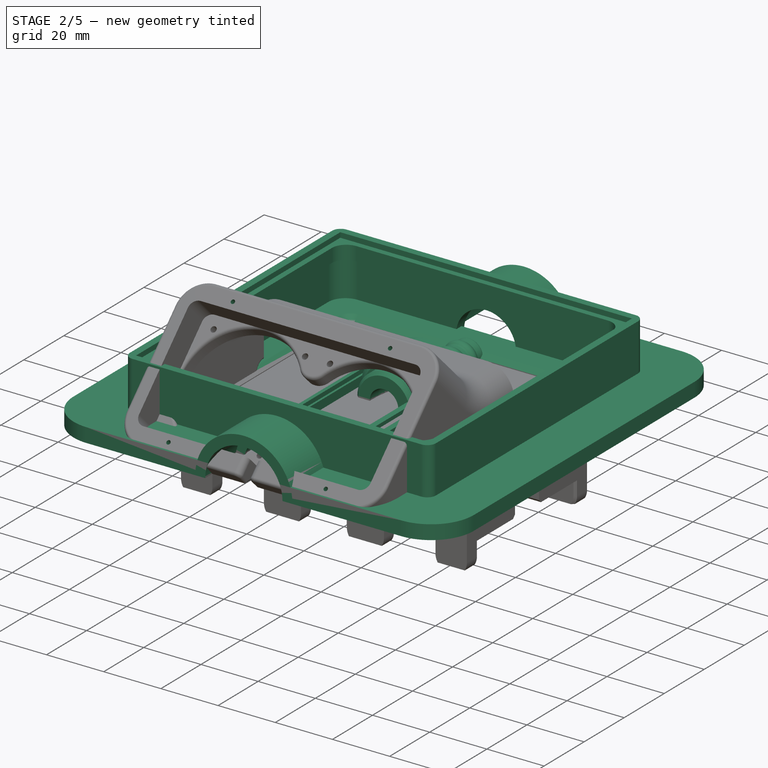
[diagram: stage 2 of 5 — iso view after this stage's code; geometry added in this stage tinted green]
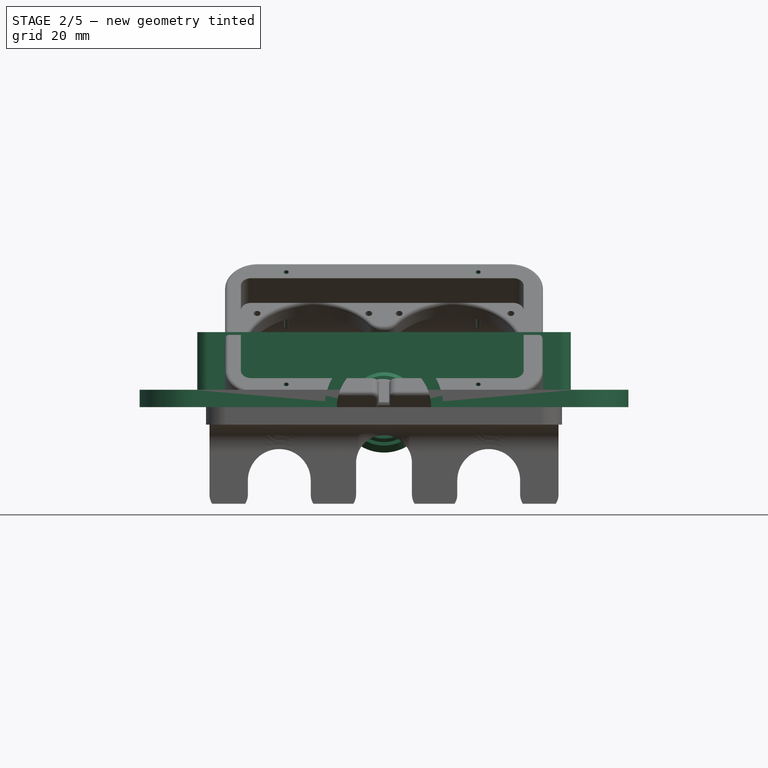
[diagram: stage 2 of 5 — front view after this stage's code; geometry added in this stage tinted green]
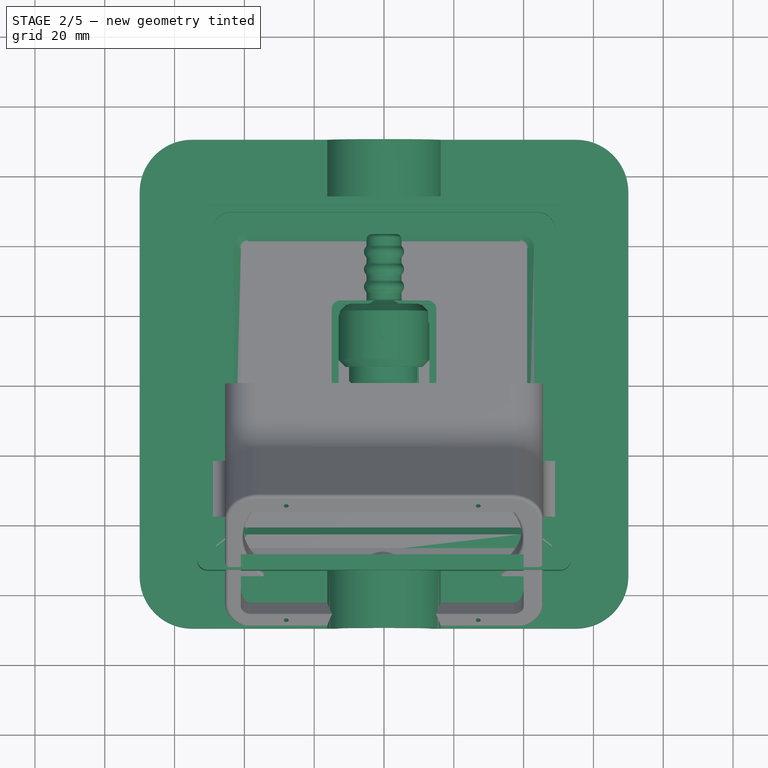
[diagram: stage 2 of 5 — top view after this stage's code; geometry added in this stage tinted green]
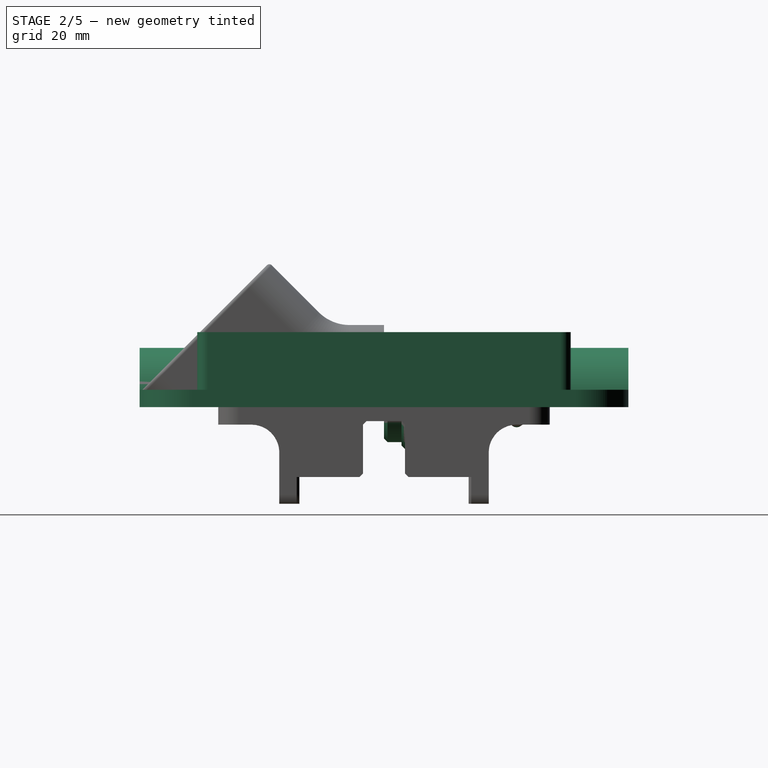
[diagram: stage 2 of 5 — right view after this stage's code; geometry added in this stage tinted green]
FEATURE [Sketcher::SketchObject] Sketch
  FullyConstrained = true
  MapMode = 5
  Support = -> [XY_Plane]
  sketch-geometry (4):
    g0: LineSegment StartX=-70 StartY=70 StartZ=0 EndX=70 EndY=70 EndZ=0
    g1: LineSegment StartX=70 StartY=70 StartZ=0 EndX=70 EndY=-70 EndZ=0
    g2: LineSegment StartX=70 StartY=-70 StartZ=0 EndX=-70 EndY=-70 EndZ=0
    g3: LineSegment StartX=-70 StartY=-70 StartZ=0 EndX=-70 EndY=70 EndZ=0
  constraints (12):
    c: Coincident(g0,g1)
    c: Coincident(g1,g2)
    c: Coincident(g2,g3)
    c: Coincident(g3,g0)
    c: Horizontal(g0)
    c: Horizontal(g2)
    c: Vertical(g1)
    c: Vertical(g3)
    c: DistanceX(g0,g0) = 140
    c: DistanceY(g1,g1) = 140
    c: DistanceX(g-1,g1) = 70
    c: DistanceY(g-1,g0) = 70
FEATURE [PartDesign::Pad] Pad
  Direction = (1,1,1)
  Length = 5
  Length2 = 100
  Profile = -> Sketch
  Type = 0
FEATURE [Sketcher::SketchObject] Sketch001
  FullyConstrained = true
  MapMode = 5
  Placement = pos=(0,0,5) rot=(0,0,1;0rad)
  Support = -> [Pad]
  sketch-geometry (4):
    g0: LineSegment StartX=-53.5 StartY=53.5 StartZ=0 EndX=53.5 EndY=53.5 EndZ=0
    g1: LineSegment StartX=53.5 StartY=53.5 StartZ=0 EndX=53.5 EndY=-53.5 EndZ=0
    g2: LineSegment StartX=53.5 StartY=-53.5 StartZ=0 EndX=-53.5 EndY=-53.5 EndZ=0
    g3: LineSegment StartX=-53.5 StartY=-53.5 StartZ=0 EndX=-53.5 EndY=53.5 EndZ=0
  constraints (12):
    c: Coincident(g0,g1)
    c: Coincident(g1,g2)
    c: Coincident(g2,g3)
    c: Coincident(g3,g0)
    c: Horizontal(g0)
    c: Horizontal(g2)
    c: Vertical(g1)
    c: Vertical(g3)
    c: DistanceX(g0,g0) = 107
    c: DistanceY(g1,g1) = 107
    c: DistanceY(g-1,g0) = 53.5
    c: DistanceX(g-1,g0) = 53.5
FEATURE [PartDesign::Pad] Pad001
  BaseFeature = -> Pad
  Direction = (1,1,1)
  Length = 16.5
  Length2 = 100
  Profile = -> Sketch001
  Type = 0
FEATURE [Sketcher::SketchObject] Sketch002
  FullyConstrained = true
  MapMode = 5
  Placement = pos=(0,0,21.5) rot=(0,0,1;0rad)
  Support = -> [Pad001]
  sketch-geometry (4):
    g0: LineSegment StartX=-51 StartY=51 StartZ=0 EndX=51 EndY=51 EndZ=0
    g1: LineSegment StartX=51 StartY=51 StartZ=0 EndX=51 EndY=-51 EndZ=0
    g2: LineSegment StartX=51 StartY=-51 StartZ=0 EndX=-51 EndY=-51 EndZ=0
    g3: LineSegment StartX=-51 StartY=-51 StartZ=0 EndX=-51 EndY=51 EndZ=0
  constraints (12):
    c: Coincident(g0,g1)
    c: Coincident(g1,g2)
    c: Coincident(g2,g3)
    c: Coincident(g3,g0)
    c: Horizontal(g0)
    c: Horizontal(g2)
    c: Vertical(g1)
    c: Vertical(g3)
    c: DistanceX(g0,g0) = 102
    c: DistanceY(g1,g1) = 102
    c: DistanceY(g-1,g0) = 51
    c: DistanceX(g-1,g0) = 51
FEATURE [PartDesign::Pocket] Pocket
  BaseFeature = -> Pad001
  Length = 1.75
  Length2 = 100
  Profile = -> Sketch002
  Type = 0
FEATURE [Sketcher::SketchObject] Sketch003
  FullyConstrained = true
  MapMode = 5
  Placement = pos=(0,0,0) rot=(1,0,0;1.5708rad)
  Support = -> [XZ_Plane]
  sketch-geometry (2):
    g0: LineSegment StartX=-17 StartY=0 StartZ=0 EndX=17 EndY=0 EndZ=0
    g1: ArcOfCircle CenterX=0 CenterY=0 CenterZ=0 NormalX=0 NormalY=0 NormalZ=1 AngleXU=0 Radius=17 StartAngle=0 EndAngle=3.14159
  constraints (6):
    c: Horizontal(g0)
    c: Coincident(g1,g-1)
    c: Coincident(g1,g0)
    c: Coincident(g1,g0)
    c: Radius(g1) = 17
    c: PointOnObject(g1,g0)
FEATURE [PartDesign::Pad] Pad002
  BaseFeature = -> Pocket
  Direction = (1,1,1)
  Length = 140
  Length2 = 100
  Midplane = true
  Profile = -> Sketch003
  Type = 0
FEATURE [Sketcher::SketchObject] Sketch004
  FullyConstrained = true
  MapMode = 5
  Placement = pos=(0,-70,0) rot=(1,0,0;1.5708rad)
  Support = -> [Pad002]
  sketch-geometry (1):
    g0: Circle CenterX=0 CenterY=0 CenterZ=0 NormalX=0 NormalY=0 NormalZ=1 AngleXU=0 Radius=10.5
  constraints (2):
    c: Coincident(g0,g-1)
    c: Radius(g0) = 10.5
FEATURE [PartDesign::Pocket] Pocket001
  BaseFeature = -> Pad002
  Length = 5
  Length2 = 100
  Profile = -> Sketch004
  Type = 1
FEATURE [Sketcher::SketchObject] Sketch005
  FullyConstrained = true
  MapMode = 5
  Placement = pos=(0,-70,0) rot=(1,0,0;1.5708rad)
  Support = -> [Pocket001]
  sketch-geometry (1):
    g0: Circle CenterX=0 CenterY=0 CenterZ=0 NormalX=0 NormalY=0 NormalZ=1 AngleXU=0 Radius=13.5
  constraints (2):
    c: Coincident(g0,g-1)
    c: Radius(g0) = 13.5
FEATURE [PartDesign::Pocket] Pocket002
  BaseFeature = -> Pocket001
  Length = 15
  Length2 = 100
  Profile = -> Sketch005
  Type = 0
FEATURE [PartDesign::Mirrored] Mirrored
  BaseFeature = -> Pocket002
  MirrorPlane = -> XZ_Plane
  Originals = -> [Pocket002]
FEATURE [Sketcher::SketchObject] Sketch008
  FullyConstrained = true
  MapMode = 5
  Placement = pos=(0,0,0) rot=(1,0,0;3.14159rad)
  Support = -> [Mirrored]
  sketch-geometry (4):
    g0: LineSegment StartX=-51 StartY=51 StartZ=0 EndX=51 EndY=51 EndZ=0
    g1: LineSegment StartX=51 StartY=51 StartZ=0 EndX=51 EndY=-51 EndZ=0
    g2: LineSegment StartX=51 StartY=-51 StartZ=0 EndX=-51 EndY=-51 EndZ=0
    g3: LineSegment StartX=-51 StartY=-51 StartZ=0 EndX=-51 EndY=51 EndZ=0
  constraints (12):
    c: Coincident(g0,g1)
    c: Coincident(g1,g2)
    c: Coincident(g2,g3)
    c: Coincident(g3,g0)
    c: Horizontal(g0)
    c: Horizontal(g2)
    c: Vertical(g1)
    c: Vertical(g3)
    c: DistanceX(g0,g0) = 102
    c: DistanceY(g1,g1) = 102
    c: DistanceY(g-1,g0) = 51
    c: DistanceX(g-1,g0) = 51
FEATURE [PartDesign::Pocket] Pocket003
  BaseFeature = -> Mirrored
  Length = 15
  Length2 = 100
  Profile = -> Sketch008
  Type = 0
FEATURE [Sketcher::SketchObject] Sketch009
  FullyConstrained = true
  MapMode = 5
  Placement = pos=(0,0,19.75) rot=(0,0,1;0rad)
  Support = -> [Pocket003]
  sketch-geometry (4):
    g0: LineSegment StartX=-49 StartY=49 StartZ=0 EndX=49 EndY=49 EndZ=0
    g1: LineSegment StartX=49 StartY=49 StartZ=0 EndX=49 EndY=-49 EndZ=0
    g2: LineSegment StartX=49 StartY=-49 StartZ=0 EndX=-49 EndY=-49 EndZ=0
    g3: LineSegment StartX=-49 StartY=-49 StartZ=0 EndX=-49 EndY=49 EndZ=0
  constraints (12):
    c: Coincident(g0,g1)
    c: Coincident(g1,g2)
    c: Coincident(g2,g3)
    c: Coincident(g3,g0)
    c: Horizontal(g0)
    c: Horizontal(g2)
    c: Vertical(g1)
    c: Vertical(g3)
    c: DistanceX(g0,g0) = 98
    c: DistanceY(g1,g1) = 98
    c: DistanceY(g-1,g0) = 49
    c: DistanceX(g0,g-1) = 49
FEATURE [PartDesign::Pocket] Pocket004
  BaseFeature = -> Pocket003
  Length = 5
  Length2 = 100
  Profile = -> Sketch009
  Type = 0
FEATURE [PartDesign::Fillet] Fillet
  Base = -> Pocket004 [Edge109,Edge107,Edge106,Edge111]
  BaseFeature = -> Pocket004
  Radius = 5
  SupportTransform = false
FEATURE [PartDesign::Fillet] Fillet001
  Base = -> Fillet [Edge36,Edge38,Edge35,Edge34]
  BaseFeature = -> Fillet
  Radius = 6
  SupportTransform = false
FEATURE [PartDesign::Fillet] Fillet002
  Base = -> Fillet001 [Edge144,Edge142,Edge141,Edge140]
  BaseFeature = -> Fillet001
  Radius = 3
  SupportTransform = false
FEATURE [PartDesign::Fillet] Fillet003
  Base = -> Fillet002 [Edge72,Edge70,Edge23,Edge27]
  BaseFeature = -> Fillet002
  Radius = 15
  SupportTransform = false
FEATURE [PartDesign::Body] Body003  label="AluminumSheet2"
  BaseFeature = -> Body002
  Group = -> [Clone001]
  Origin = -> Origin003
  Placement = pos=(-5e-15,0,0) rot=(0,1,0;3.14159rad)
  Tip = -> Clone001
FEATURE [Sketcher::SketchObject] Sketch025
  FullyConstrained = true
  MapMode = 5
  Support = -> [XY_Plane004]
  sketch-geometry (8):
    g0: LineSegment StartX=-53.5 StartY=53.5 StartZ=0 EndX=53.5 EndY=53.5 EndZ=0
    g1: LineSegment StartX=53.5 StartY=53.5 StartZ=0 EndX=53.5 EndY=-53.5 EndZ=0
    g2: LineSegment StartX=53.5 StartY=-53.5 StartZ=0 EndX=-53.5 EndY=-53.5 EndZ=0
    g3: LineSegment StartX=-53.5 StartY=-53.5 StartZ=0 EndX=-53.5 EndY=53.5 EndZ=0
    g4: LineSegment StartX=-41 StartY=41 StartZ=0 EndX=41 EndY=41 EndZ=0
    g5: LineSegment StartX=41 StartY=41 StartZ=0 EndX=41 EndY=-41 EndZ=0
    g6: LineSegment StartX=41 StartY=-41 StartZ=0 EndX=-41 EndY=-41 EndZ=0
    g7: LineSegment StartX=-41 StartY=-41 StartZ=0 EndX=-41 EndY=41 EndZ=0
  constraints (24):
    c: Coincident(g0,g1)
    c: Coincident(g1,g2)
    c: Coincident(g2,g3)
    c: Coincident(g3,g0)
    c: Horizontal(g0)
    c: Horizontal(g2)
    c: Vertical(g1)
    c: Vertical(g3)
    c: DistanceX(g0,g0) = 107
    c: DistanceY(g1,g1) = 107
    c: DistanceY(g-1,g0) = 53.5
    c: DistanceX(g-1,g0) = 53.5
    c: Coincident(g4,g5)
    c: Coincident(g5,g6)
    c: Coincident(g6,g7)
    c: Coincident(g7,g4)
    c: Horizontal(g4)
    c: Horizontal(g6)
    c: Vertical(g5)
    c: Vertical(g7)
    c: DistanceX(g4,g4) = 82
    c: DistanceY(g5,g5) = 82
    c: DistanceY(g-1,g4) = 41
    c: DistanceX(g4,g-1) = 41
FEATURE [PartDesign::Pad] Pad005
  Direction = (1,1,1)
  Length = 1.75
  Length2 = 100
  Profile = -> Sketch025
  Type = 0
FEATURE [Sketcher::SketchObject] Sketch026
  ExternalGeometry = -> [Pad005]
  FullyConstrained = false
  MapMode = 5
  Support = -> [XY_Plane004]
  sketch-geometry (16):
    g0: ArcOfCircle CenterX=-53.5 CenterY=30 CenterZ=0 NormalX=0 NormalY=0 NormalZ=1 AngleXU=0 Radius=8 StartAngle=1.5708 EndAngle=4.71239
    g1: LineSegment StartX=-53.5 StartY=38 StartZ=0 EndX=-53.5 EndY=22 EndZ=0
    g2: LineSegment StartX=-95.9756 StartY=30 StartZ=0 EndX=87.2402 EndY=30 EndZ=0
    g3: LineSegment StartX=-95.0719 StartY=-30 StartZ=0 EndX=88.1438 EndY=-30 EndZ=0
    g4: LineSegment StartX=-57.25 StartY=79.3634 StartZ=0 EndX=-57.25 EndY=-87.2239 EndZ=0
    g5: LineSegment StartX=57.25 StartY=82.7905 StartZ=0 EndX=57.25 EndY=-83.7968 EndZ=0
    g6: ArcOfCircle CenterX=-53.5 CenterY=-30 CenterZ=0 NormalX=0 NormalY=0 NormalZ=1 AngleXU=0 Radius=8 StartAngle=1.5708 EndAngle=4.71239
    g7: LineSegment StartX=-53.5 StartY=-22 StartZ=0 EndX=-53.5 EndY=-38 EndZ=0
    g8: LineSegment StartX=53.5 StartY=38 StartZ=0 EndX=53.5 EndY=22 EndZ=0
    g9: ArcOfCircle CenterX=53.5 CenterY=30 CenterZ=0 NormalX=0 NormalY=0 NormalZ=1 AngleXU=0 Radius=8 StartAngle=4.71239 EndAngle=7.85398
    g10: ArcOfCircle CenterX=53.5 CenterY=-30 CenterZ=0 NormalX=0 NormalY=0 NormalZ=1 AngleXU=0 Radius=8 StartAngle=4.71239 EndAngle=7.85398
    g11: LineSegment StartX=53.5 StartY=-22 StartZ=0 EndX=53.5 EndY=-38 EndZ=0
    g12: Circle CenterX=57.25 CenterY=30 CenterZ=0 NormalX=0 NormalY=0 NormalZ=1 AngleXU=0 Radius=1.15
    g13: Circle CenterX=57.25 CenterY=-30 CenterZ=0 NormalX=0 NormalY=0 NormalZ=1 AngleXU=0 Radius=1.15
    g14: Circle CenterX=-57.25 CenterY=-30 CenterZ=0 NormalX=0 NormalY=0 NormalZ=1 AngleXU=0 Radius=1.15
    g15: Circle CenterX=-57.25 CenterY=30 CenterZ=0 NormalX=0 NormalY=0 NormalZ=1 AngleXU=0 Radius=1.15
  constraints (48):
    c: Coincident(g1,g0)
    c: Coincident(g1,g0)
    c: Vertical(g1)
    c: PointOnObject(g0,g1)
    c: Horizontal(g2)
    c: PointOnObject(g0,g2)
    c: DistanceY(g-1,g0) = 30
    c: Radius(g0) = 8
    c: PointOnObject(g0,g-3)
    c: Horizontal(g3)
    c: Vertical(g4)
    c: Vertical(g5)
    c: DistanceX(g4,g-1) = 57.25
    c: DistanceX(g-1,g5) = 57.25
    c: DistanceY(g3,g-1) = 30
    c: Equal(g0,g6) = 8
    c: PointOnObject(g6,g3)
    c: PointOnObject(g6,g-3)
    c: Coincident(g7,g6)
    c: Coincident(g7,g6)
    c: Vertical(g7)
    c: PointOnObject(g6,g-3)
    c: Vertical(g8)
    c: PointOnObject(g9,g2)
    c: Coincident(g9,g8)
    c: Coincident(g9,g8)
    c: PointOnObject(g9,g-4)
    c: PointOnObject(g8,g-4)
    c: Radius(g9) = 8
    c: Equal(g9,g10) = 8
    c: PointOnObject(g10,g-4)
    c: PointOnObject(g10,g-4)
    c: PointOnObject(g10,g-4)
    c: Coincident(g11,g10)
    c: Coincident(g11,g10)
    c: PointOnObject(g10,g3)
    c: PointOnObject(g12,g2)
    c: PointOnObject(g12,g5)
    c: Radius(g12) = 1.15
    c: PointOnObject(g13,g3)
    c: PointOnObject(g13,g5)
    c: Radius(g13) = 1.15
    c: PointOnObject(g14,g4)
    c: PointOnObject(g14,g3)
    c: Radius(g14) = 1.15
    c: PointOnObject(g15,g4)
    c: PointOnObject(g15,g2)
    c: Radius(g15) = 1.15
FEATURE [PartDesign::Pad] Pad006
  BaseFeature = -> Pad005
  Direction = (1,1,1)
  Length = 1.75
  Length2 = 100
  Profile = -> Sketch026
  Type = 0
FEATURE [PartDesign::Fillet] Fillet008
  Base = -> Pad006 [Edge1,Edge2,Edge47,Edge49]
  BaseFeature = -> Pad006
  Radius = 3
  SupportTransform = false
FEATURE [PartDesign::Fillet] Fillet009
  Base = -> Fillet008 [Edge66,Edge68,Edge67,Edge65]
  BaseFeature = -> Fillet008
  Radius = 2
  SupportTransform = false
FEATURE [PartDesign::Body] Body001  label="HalfCore2"
  BaseFeature = -> Body
  Group = -> [Clone]
  Origin = -> Origin001
  Placement = pos=(0,0,0) rot=(0,1,0;3.14159rad)
  Tip = -> Clone
FEATURE [Sketcher::SketchObject] Sketch131
  FullyConstrained = false
  MapMode = 5
  Support = -> [XY_Plane088]
  sketch-geometry (14):
    g0: LineSegment StartX=5 StartY=0 StartZ=0 EndX=10 EndY=0 EndZ=0
    g1: LineSegment StartX=10 StartY=0 StartZ=0 EndX=10 EndY=5 EndZ=0
    g2: LineSegment StartX=13 StartY=5 StartZ=0 EndX=13 EndY=23 EndZ=0
    g3: LineSegment StartX=13 StartY=23 StartZ=0 EndX=5 EndY=23 EndZ=0
    g4: LineSegment StartX=13.5852 StartY=54.757 StartZ=0 EndX=13.5852 EndY=-12.7815 EndZ=0
    g5: LineSegment StartX=10.3428 StartY=72.3886 StartZ=0 EndX=10.3428 EndY=-17.9019 EndZ=0
    g6: LineSegment StartX=13 StartY=5 StartZ=0 EndX=10 EndY=5 EndZ=0
    g7: LineSegment StartX=3 StartY=43 StartZ=0 EndX=3 EndY=19 EndZ=0
    g8: LineSegment StartX=3.32852 StartY=14.5725 StartZ=0 EndX=4.67148 EndY=5.57246 EndZ=0
    g9: LineSegment StartX=5 StartY=1.14493 StartZ=0 EndX=5 EndY=0 EndZ=0
    g10: ArcOfCircle CenterX=33 CenterY=19 CenterZ=0 NormalX=0 NormalY=0 NormalZ=1 AngleXU=0 Radius=30 StartAngle=3.14159 EndAngle=3.28972
    g11: ArcOfCircle CenterX=-25 CenterY=1.14493 CenterZ=0 NormalX=0 NormalY=0 NormalZ=1 AngleXU=0 Radius=30 StartAngle=0 EndAngle=0.148126
    g12: LineSegment StartX=3 StartY=43 StartZ=0 EndX=5 EndY=43 EndZ=0
    g13: LineSegment StartX=5 StartY=43 StartZ=0 EndX=5 EndY=23 EndZ=0
  constraints (36):
    c: Horizontal(g0)
    c: Coincident(g1,g0)
    c: Vertical(g1)
    c: Vertical(g2)
    c: Horizontal(g3)
    c: DistanceY(g3,g12) = 20
    c: DistanceX(g-1,g2) = 13
    c: Vertical(g4)
    c: Vertical(g5)
    c: DistanceX(g-1,g1) = 10
    c: Coincident(g3,g2)
    c: Coincident(g6,g2)
    c: Horizontal(g6)
    c: Coincident(g1,g6)
    c: DistanceY(g0,g1) = 5
    c: DistanceY(g2,g2) = 18
    c: PointOnObject(g0,g-1)
    c: Vertical(g7)
    c: Coincident(g9,g0)
    c: Vertical(g9)
    c: Tangent(g7,g10) = -1.5708
    c: Tangent(g8,g10) = -1.5708
    c: Tangent(g8,g11) = 1.5708
    c: Tangent(g9,g11) = 1.5708
    c: DistanceX(g-1,g7) = 3
    c: DistanceY(g7,g7) = 24
    c: DistanceX(g-1,g0) = 5
    c: Radius(g11) = 30
    c: Radius(g10) = 30
    c: DistanceY(g8,g8) = 9
    c: Coincident(g12,g7)
    c: Horizontal(g12)
    c: Coincident(g13,g3)
    c: Vertical(g13)
    c: Coincident(g12,g13)
    c: DistanceX(g-1,g12) = 5
FEATURE [Sketcher::SketchObject] Sketch133
  FullyConstrained = false
  MapMode = 5
  Support = -> [XY_Plane088]
  sketch-geometry (4):
    g0: ArcOfCircle CenterX=3.75 CenterY=38 CenterZ=0 NormalX=0 NormalY=0 NormalZ=1 AngleXU=0 Radius=2 StartAngle=5.23599 EndAngle=7.33038
    g1: LineSegment StartX=4.75 StartY=48.9191 StartZ=0 EndX=4.75 EndY=17.5125 EndZ=0
    g2: LineSegment StartX=5.75 StartY=43.3668 StartZ=0 EndX=5.75 EndY=29.5809 EndZ=0
    g3: LineSegment StartX=4.75 StartY=39.7321 StartZ=0 EndX=4.75 EndY=36.2679 EndZ=0
  constraints (11):
    c: Vertical(g1)
    c: PointOnObject(g0,g1)
    c: PointOnObject(g0,g1)
    c: DistanceX(g0,g0) = 1
    c: Radius(g0) = 2
    c: DistanceY(g-1,g0) = 38
    c: Vertical(g2)
    c: Tangent(g2,g0)
    c: DistanceX(g-1,g2) = 5.75
    c: Coincident(g3,g0)
    c: Coincident(g3,g0)
FEATURE [PartDesign::Revolution] Revolution002
  Angle = 360
  Axis = (0,1,0)
  Base = (0,0,0)
  Profile = -> Sketch131
  ReferenceAxis = -> Sketch131 [V_Axis]
  Reversed = true
FEATURE [PartDesign::Chamfer] Chamfer011
  Angle = 45
  Base = -> Revolution002 [Edge10]
  BaseFeature = -> Revolution002
  ChamferType = 0
  FlipDirection = false
  Size = 1.2
  Size2 = 1
  SupportTransform = false
FEATURE [PartDesign::Chamfer] Chamfer012
  Angle = 45
  Base = -> Chamfer011 [Edge11]
  BaseFeature = -> Chamfer011
  ChamferType = 0
  FlipDirection = false
  Size = 1
  Size2 = 1
  SupportTransform = false
FEATURE [PartDesign::Chamfer] Chamfer013
  Angle = 45
  Base = -> Chamfer012 [Face5]
  BaseFeature = -> Chamfer012
  ChamferType = 0
  FlipDirection = false
  Size = 2
  Size2 = 1
  SupportTransform = false
FEATURE [PartDesign::Plane] DatumPlane015
  AttachmentOffset = pos=(0,0,14) rot=(0,0,1;0rad)
  Length = 61.6619
  MapMode = 2
  Placement = pos=(0,0,14) rot=(0,0,1;0rad)
  ResizeMode = 0
  Support = -> [XY_Plane088]
  Width = 79.6619
FEATURE [Sketcher::SketchObject] Sketch132
  FullyConstrained = true
  MapMode = 5
  Placement = pos=(0,0,14) rot=(0,0,1;0rad)
  Support = -> [DatumPlane015]
  sketch-geometry (1):
    g0: Circle CenterX=0 CenterY=12.75 CenterZ=0 NormalX=0 NormalY=0 NormalZ=1 AngleXU=0 Radius=0.75
  constraints (3):
    c: PointOnObject(g0,g-2)
    c: Radius(g0) = 0.75
    c: DistanceY(g-1,g0) = 12.75
FEATURE [PartDesign::Pocket] Pocket045
  BaseFeature = -> Chamfer013
  Length = 3
  Length2 = 100
  Profile = -> Sketch132
  Type = 0
FEATURE [PartDesign::PolarPattern] PolarPattern009
  Angle = 180
  Axis = -> Y_Axis088
  BaseFeature = -> Pocket045
  Occurrences = 2
  Originals = -> [Pocket045]
FEATURE [PartDesign::Revolution] Revolution003
  Angle = 360
  Axis = (1e-16,1,-1e-16)
  Base = (0,0,0)
  BaseFeature = -> PolarPattern009
  Profile = -> Sketch133
  ReferenceAxis = -> Y_Axis088
  Reversed = true
FEATURE [PartDesign::LinearPattern] LinearPattern003
  BaseFeature = -> Revolution003
  Direction = -> Y_Axis088
  Length = 10
  Occurrences = 3
  Originals = -> [Revolution003]
  Reversed = true
FEATURE [PartDesign::Fillet] Fillet055
  Base = -> LinearPattern003 [Face25,Face24,Face20,Face16]
  BaseFeature = -> LinearPattern003
  Radius = 1
  SupportTransform = false
FEATURE [PartDesign::Fillet] Fillet056
  Base = -> Fillet055 [Edge57]
  BaseFeature = -> Fillet055
  Radius = 0.85
  SupportTransform = false
FEATURE [PartDesign::Body] Body056  label="SmallInlet"
  Group = -> [Sketch131,Revolution002,Chamfer011,Chamfer012,Chamfer013,DatumPlane015,Sketch132,Pocket045,PolarPattern009,Sketch133,Revolution003,LinearPattern003,Fillet055,Fillet056]
  Origin = -> Origin088
  Placement = pos=(0,-49.75,-8e-15) rot=(1,0,0;3.14159rad)
  Tip = -> Fillet056
FEATURE [App::Part] Part002  label="InOutLets"
  Group = -> [Body006,Body056]
  Origin = -> Origin010
FEATURE [Sketcher::SketchObject] Sketch135
  FullyConstrained = true
  MapMode = 5
  Support = -> [XY_Plane089]
  sketch-geometry (4):
    g0: LineSegment StartX=-15 StartY=24 StartZ=0 EndX=15 EndY=24 EndZ=0
    g1: LineSegment StartX=15 StartY=24 StartZ=0 EndX=15 EndY=-24 EndZ=0
    g2: LineSegment StartX=15 StartY=-24 StartZ=0 EndX=-15 EndY=-24 EndZ=0
    g3: LineSegment StartX=-15 StartY=-24 StartZ=0 EndX=-15 EndY=24 EndZ=0
  constraints (12):
    c: Coincident(g0,g1)
    c: Coincident(g1,g2)
    c: Coincident(g2,g3)
    c: Coincident(g3,g0)
    c: Horizontal(g0)
    c: Horizontal(g2)
    c: Vertical(g1)
    c: Vertical(g3)
    c: DistanceX(g0,g0) = 30
    c: DistanceX(g0,g-1) = 15
    c: DistanceY(g1,g1) = 48
    c: DistanceY(g-1,g0) = 24
FEATURE [PartDesign::Pad] Pad050
  Direction = (1,1,1)
  Length = 4.5
  Length2 = 100
  Profile = -> Sketch135
  Type = 0
FEATURE [Sketcher::SketchObject] Sketch137
  ExternalGeometry = -> [Pad050]
  FullyConstrained = false
  MapMode = 5
  Placement = pos=(0,0,4.5) rot=(0,0,1;0rad)
  Support = -> [Pad050]
  sketch-geometry (10):
    g0: LineSegment StartX=10 StartY=18 StartZ=0 EndX=13 EndY=18 EndZ=0
    g1: LineSegment StartX=13 StartY=18 StartZ=0 EndX=13 EndY=-21 EndZ=0
    g2: LineSegment StartX=13 StartY=-21 StartZ=0 EndX=10 EndY=-21 EndZ=0
    g3: LineSegment StartX=10 StartY=-21 StartZ=0 EndX=10 EndY=18 EndZ=0
    g4: LineSegment StartX=-13 StartY=22 StartZ=0 EndX=8 EndY=22 EndZ=0
    g5: LineSegment StartX=8 StartY=22 StartZ=0 EndX=8 EndY=-22 EndZ=0
    g6: LineSegment StartX=8 StartY=-22 StartZ=0 EndX=-13 EndY=-22 EndZ=0
    g7: LineSegment StartX=-13 StartY=-22 StartZ=0 EndX=-13 EndY=22 EndZ=0
    g8: LineSegment StartX=-30.3657 StartY=18 StartZ=0 EndX=32.0381 EndY=18 EndZ=0
    g9: LineSegment StartX=-30.5487 StartY=-21 StartZ=0 EndX=31.8551 EndY=-21 EndZ=0
  constraints (28):
    c: Coincident(g0,g1)
    c: Coincident(g1,g2)
    c: Coincident(g2,g3)
    c: Coincident(g3,g0)
    c: Horizontal(g0)
    c: Horizontal(g2)
    c: Vertical(g1)
    c: Vertical(g3)
    c: Coincident(g4,g5)
    c: Coincident(g5,g6)
    c: Coincident(g6,g7)
    c: Coincident(g7,g4)
    c: Horizontal(g4)
    c: Horizontal(g6)
    c: Vertical(g5)
    c: Vertical(g7)
    c: Horizontal(g8)
    c: Horizontal(g9)
    c: PointOnObject(g0,g8)
    c: PointOnObject(g1,g9)
    c: DistanceY(g-4,g1) = 3
    c: DistanceY(g0,g-3) = 6
    c: DistanceY(g4,g-3) = 2
    c: DistanceY(g-4,g5) = 2
    c: DistanceX(g4,g0) = 2
    c: DistanceX(g-3,g4) = 2
    c: DistanceX(g0,g0) = 3
    c: DistanceX(g0,g-3) = 2
FEATURE [PartDesign::Pocket] Pocket047
  BaseFeature = -> Pad050
  Length = 5
  Length2 = 100
  Profile = -> Sketch137
  Type = 0
FEATURE [PartDesign::Fillet] Fillet058
  Base = -> Pocket047 [Edge34,Edge36,Edge33,Edge35]
  BaseFeature = -> Pocket047
  Radius = 3
  SupportTransform = false
FEATURE [PartDesign::Fillet] Fillet059
  Base = -> Fillet058 [Edge33,Edge36,Edge34,Edge38]
  BaseFeature = -> Fillet058
  Radius = 2.5
  SupportTransform = false
FEATURE [PartDesign::Fillet] Fillet060
  Base = -> Fillet059 [Edge59,Edge55,Edge54,Edge57]
  BaseFeature = -> Fillet059
  Radius = 1
  SupportTransform = false
FEATURE [Sketcher::SketchObject] Sketch138
  ExternalGeometry = -> [Fillet060]
  FullyConstrained = true
  MapMode = 5
  Placement = pos=(0,0,4.5) rot=(0,0,1;0rad)
  Support = -> [Fillet060]
  sketch-geometry (4):
    g0: LineSegment StartX=-13.75 StartY=22.75 StartZ=0 EndX=16.25 EndY=22.75 EndZ=0
    g1: LineSegment StartX=16.25 StartY=22.75 StartZ=0 EndX=16.25 EndY=-22.75 EndZ=0
    g2: LineSegment StartX=16.25 StartY=-22.75 StartZ=0 EndX=-13.75 EndY=-22.75 EndZ=0
    g3: LineSegment StartX=-13.75 StartY=-22.75 StartZ=0 EndX=-13.75 EndY=22.75 EndZ=0
  constraints (12):
    c: Coincident(g0,g1)
    c: Coincident(g1,g2)
    c: Coincident(g2,g3)
    c: Coincident(g3,g0)
    c: Horizontal(g0)
    c: Horizontal(g2)
    c: Vertical(g1)
    c: Vertical(g3)
    c: DistanceY(g1,g1) = 45.5
    c: DistanceX(g0,g-1) = 13.75
    c: DistanceY(g-1,g0) = 22.75
    c: DistanceX(g0,g0) = 30
FEATURE [PartDesign::Pocket] Pocket048
  BaseFeature = -> Fillet060
  Length = 1.5
  Length2 = 100
  Profile = -> Sketch138
  Type = 0
FEATURE [PartDesign::Fillet] Fillet061
  Base = -> Pocket048 [Edge83,Edge84]
  BaseFeature = -> Pocket048
  Radius = 2.5
  SupportTransform = false
FEATURE [Sketcher::SketchObject] Sketch139
  FullyConstrained = true
  MapMode = 5
  Placement = pos=(0,-24,0) rot=(1,0,0;1.5708rad)
  Support = -> [Fillet061]
  sketch-geometry (4):
    g0: LineSegment StartX=-10 StartY=1.75 StartZ=0 EndX=10 EndY=1.75 EndZ=0
    g1: LineSegment StartX=10 StartY=1.75 StartZ=0 EndX=10 EndY=-2.25 EndZ=0
    g2: LineSegment StartX=10 StartY=-2.25 StartZ=0 EndX=-10 EndY=-2.25 EndZ=0
    g3: LineSegment StartX=-10 StartY=-2.25 StartZ=0 EndX=-10 EndY=1.75 EndZ=0
  constraints (12):
    c: Coincident(g0,g1)
    c: Coincident(g1,g2)
    c: Coincident(g2,g3)
    c: Coincident(g3,g0)
    c: Horizontal(g0)
    c: Horizontal(g2)
    c: Vertical(g1)
    c: Vertical(g3)
    c: DistanceX(g0,g0) = 20
    c: DistanceX(g0,g-1) = 10
    c: DistanceY(g-1,g0) = 1.75
    c: DistanceY(g3,g3) = 4
FEATURE [PartDesign::Pocket] Pocket049
  BaseFeature = -> Fillet061
  Length = 5
  Length2 = 100
  Profile = -> Sketch139
  Type = 1
FEATURE [PartDesign::Fillet] Fillet062
  Base = -> Pocket049 [Edge103,Edge102]
  BaseFeature = -> Pocket049
  Radius = 0.5
  SupportTransform = false
FEATURE [PartDesign::Chamfer] Chamfer014
  Angle = 45
  Base = -> Fillet009 [Edge27]
  BaseFeature = -> Fillet009
  ChamferType = 1
  FlipDirection = false
  Size = 1.5
  Size2 = 2
  SupportTransform = false
FEATURE [PartDesign::Fillet] Fillet065
  Base = -> Fillet064 [Edge308,Edge310,Edge233,Edge230]
  BaseFeature = -> Fillet064
  Radius = 1
  SupportTransform = false
FEATURE [Sketcher::SketchObject] Sketch142
  ExternalGeometry = -> [Fillet065]
  FullyConstrained = false
  MapMode = 5
  Placement = pos=(1.6e-15,-37.1066,37.1066) rot=(1,0,0;0.785398rad)
  Support = -> [Fillet065]
  sketch-geometry (6):
    g0: LineSegment StartX=-59.8006 StartY=2.27334 StartZ=0 EndX=69.674 EndY=2.27334 EndZ=0
    g1: LineSegment StartX=-60.9809 StartY=-43.2267 StartZ=0 EndX=68.4938 EndY=-43.2267 EndZ=0
    g2: Circle CenterX=-28 CenterY=2.27334 CenterZ=0 NormalX=0 NormalY=0 NormalZ=1 AngleXU=0 Radius=0.75
    g3: Circle CenterX=-28 CenterY=-43.2267 CenterZ=0 NormalX=0 NormalY=0 NormalZ=1 AngleXU=0 Radius=0.75
    g4: Circle CenterX=27 CenterY=2.27334 CenterZ=0 NormalX=0 NormalY=0 NormalZ=1 AngleXU=0 Radius=0.75
    g5: Circle CenterX=27 CenterY=-43.2267 CenterZ=0 NormalX=0 NormalY=0 NormalZ=1 AngleXU=0 Radius=0.75
  constraints (16):
    c: Horizontal(g0)
    c: Horizontal(g1)
    c: PointOnObject(g2,g0)
    c: Radius(g2) = 0.75
    c: DistanceX(g-5,g2) = 13
    c: DistanceY(g-3,g0) = 2.5
    c: Equal(g2,g3) = 0.75
    c: PointOnObject(g3,g1)
    c: DistanceY(g1,g-4) = 2.5
    c: DistanceX(g-5,g3) = 13
    c: Equal(g2,g4) = 0.75
    c: PointOnObject(g4,g0)
    c: PointOnObject(g5,g1)
    c: DistanceX(g4,g-6) = 13
    c: DistanceX(g5,g-6) = 13
    c: Equal(g5,g3)
FEATURE [PartDesign::Hole] Hole011
  BaseFeature = -> Fillet065
  Depth = 25
  DepthType = 0
  Diameter = 1.4
  DrillForDepth = false
  DrillPoint = 1
  DrillPointAngle = 118
  HoleCutCountersinkAngle = 90
  HoleCutCustomValues = false
  HoleCutDepth = 0
  HoleCutDiameter = 6.1
  HoleCutType = 0
  ModelActualThread = false
  Profile = -> Sketch142
  Tapered = false
  TaperedAngle = 90
  ThreadAngle = 0
  ThreadClass = 0
  ThreadCutOffInner = 0
  ThreadCutOffOuter = 0
  ThreadDirection = 0
  ThreadFit = 0
  ThreadPitch = 0
  ThreadSize = 2
  ThreadType = 1
  Threaded = false
FEATURE [Sketcher::SketchObject] Sketch143
  ExternalGeometry = -> [Hole011]
  FullyConstrained = false
  MapMode = 5
  Support = -> [XY_Plane082]
  sketch-geometry (11):
    g0: LineSegment StartX=35 StartY=-40.5 StartZ=0 EndX=50 EndY=-40.5 EndZ=0
    g1: LineSegment StartX=50 StartY=-40.5 StartZ=0 EndX=50 EndY=-37.5 EndZ=0
    g2: LineSegment StartX=48 StartY=-35.5 StartZ=0 EndX=35 EndY=-35.5 EndZ=0
    g3: ArcOfCircle CenterX=35 CenterY=-38 CenterZ=0 NormalX=0 NormalY=0 NormalZ=1 AngleXU=0 Radius=2.5 StartAngle=1.5708 EndAngle=4.71239
    g4: LineSegment StartX=-35 StartY=-40.5 StartZ=0 EndX=-50 EndY=-40.5 EndZ=0
    g5: LineSegment StartX=-50 StartY=-40.5 StartZ=0 EndX=-50 EndY=-37.5 EndZ=0
    g6: LineSegment StartX=-48 StartY=-35.5 StartZ=0 EndX=-35 EndY=-35.5 EndZ=0
    g7: ArcOfCircle CenterX=-35 CenterY=-38 CenterZ=0 NormalX=0 NormalY=0 NormalZ=1 AngleXU=0 Radius=2.5 StartAngle=4.71239 EndAngle=7.85398
    g8: LineSegment StartX=-49.6915 StartY=-38 StartZ=0 EndX=43.8289 EndY=-38 EndZ=0
    g9: ArcOfCircle CenterX=48 CenterY=-37.5 CenterZ=0 NormalX=0 NormalY=0 NormalZ=1 AngleXU=0 Radius=2 StartAngle=-1.8e-15 EndAngle=1.5708
    g10: ArcOfCircle CenterX=-48 CenterY=-37.5 CenterZ=0 NormalX=0 NormalY=0 NormalZ=1 AngleXU=0 Radius=2 StartAngle=1.5708 EndAngle=3.14159
  constraints (28):
    c: Horizontal(g0)
    c: Vertical(g1)
    c: Horizontal(g2)
    c: Tangent(g2,g3) = -1.5708
    c: Tangent(g0,g3) = -1.5708
    c: Coincident(g0,g1)
    c: DistanceX(g-1,g3) = 35
    c: DistanceX(g0,g0) = 15
    c: Horizontal(g4)
    c: Vertical(g5)
    c: Horizontal(g6)
    c: Tangent(g6,g7) = 1.5708
    c: Tangent(g4,g7) = 1.5708
    c: Coincident(g4,g5)
    c: DistanceX(g7,g-1) = 35
    c: Horizontal(g8)
    c: PointOnObject(g3,g8)
    c: PointOnObject(g7,g8)
    c: DistanceY(g8,g-1) = 38
    c: Equal(g3,g7)
    c: Tangent(g2,g9) = -1.5708
    c: Tangent(g1,g9) = -1.5708
    c: Tangent(g6,g10) = 1.5708
    c: Tangent(g5,g10) = 1.5708
    c: Radius(g9) = 2
    c: Radius(g3) = 2.5
    c: Equal(g10,g9)
    c: DistanceX(g4,g4) = 15
FEATURE [PartDesign::Pocket] Pocket052
  BaseFeature = -> Hole011
  Length = 2
  Length2 = 100
  Profile = -> Sketch143
  Reversed = true
  Type = 0
FEATURE [PartDesign::Fillet] Fillet066
  Base = -> Pocket052 [Edge305,Edge179]
  BaseFeature = -> Pocket052
  Radius = 1
  SupportTransform = false
FEATURE [Sketcher::SketchObject] Sketch144
  ExternalGeometry = -> [Fillet066]
  FullyConstrained = true
  MapMode = 5
  Support = -> [XY_Plane082]
  sketch-geometry (2):
    g0: Circle CenterX=57 CenterY=-30 CenterZ=0 NormalX=0 NormalY=0 NormalZ=1 AngleXU=0 Radius=3
    g1: Circle CenterX=-57 CenterY=-30 CenterZ=0 NormalX=0 NormalY=0 NormalZ=1 AngleXU=0 Radius=3
  constraints (5):
    c: Coincident(g-3,g0)
    c: Radius(g0) = 3
    c: Radius(g1) = 3
    c: DistanceX(g1,g-1) = 57
    c: DistanceY(g1,g-1) = 30
FEATURE [PartDesign::Pocket] Pocket053
  BaseFeature = -> Fillet066
  Length = 1.5
  Length2 = 100
  Profile = -> Sketch144
  Reversed = true
  Type = 0
FEATURE [PartDesign::Plane] DatumPlane017
  AttachmentOffset = pos=(0,0,30) rot=(0,0,1;0rad)
  Length = 139.877
  MapMode = 5
  Placement = pos=(0,-30,-6.7e-15) rot=(1,0,0;1.5708rad)
  ResizeMode = 0
  Support = -> [XZ_Plane082]
  Width = 83.8836
FEATURE [Sketcher::SketchObject] Sketch145
  FullyConstrained = false
  MapMode = 5
  Placement = pos=(0,-30,-6.7e-15) rot=(1,0,0;1.5708rad)
  Support = -> [DatumPlane017]
  sketch-geometry (12):
    g0: ArcOfCircle CenterX=53 CenterY=13.5 CenterZ=0 NormalX=0 NormalY=0 NormalZ=1 AngleXU=0 Radius=12 StartAngle=3.76754 EndAngle=4.71239
    g1: LineSegment StartX=43.2751 StartY=6.46966 StartZ=0 EndX=40 EndY=11 EndZ=0
    g2: LineSegment StartX=40 StartY=11 StartZ=0 EndX=40 EndY=0 EndZ=0
    g3: LineSegment StartX=40 StartY=0 StartZ=0 EndX=56 EndY=0 EndZ=0
    g4: LineSegment StartX=53 StartY=1.5 StartZ=0 EndX=56 EndY=1.5 EndZ=0
    g5: LineSegment StartX=56 StartY=1.5 StartZ=0 EndX=56 EndY=0 EndZ=0
    g6: ArcOfCircle CenterX=-53 CenterY=13.5 CenterZ=0 NormalX=0 NormalY=0 NormalZ=1 AngleXU=0 Radius=12 StartAngle=4.71239 EndAngle=5.65724
    g7: LineSegment StartX=-43.2751 StartY=6.46966 StartZ=0 EndX=-40 EndY=11 EndZ=0
    g8: LineSegment StartX=-40 StartY=11 StartZ=0 EndX=-40 EndY=0 EndZ=0
    g9: LineSegment StartX=-40 StartY=0 StartZ=0 EndX=-56 EndY=0 EndZ=0
    g10: LineSegment StartX=-53 StartY=1.5 StartZ=0 EndX=-56 EndY=1.5 EndZ=0
    g11: LineSegment StartX=-56 StartY=1.5 StartZ=0 EndX=-56 EndY=0 EndZ=0
  constraints (30):
    c: Coincident(g2,g1)
    c: Vertical(g2)
    c: Coincident(g3,g2)
    c: Horizontal(g3)
    c: Horizontal(g4)
    c: Coincident(g5,g4)
    c: Coincident(g5,g3)
    c: Vertical(g5)
    c: Tangent(g4,g0) = -1.5708
    c: Tangent(g1,g0) = 1.5708
    c: Radius(g0) = 12
    c: DistanceY(g-1,g4) = 1.5
    c: DistanceX(g-1,g3) = 56
    c: DistanceY(g2,g2) = 11
    c: PointOnObject(g-1,g3)
    c: DistanceX(g4,g4) = 3
    c: DistanceX(g-1,g1) = 40
    c: Coincident(g8,g7)
    c: Vertical(g8)
    c: Coincident(g9,g8)
    c: Horizontal(g9)
    c: Horizontal(g10)
    c: Coincident(g11,g10)
    c: Coincident(g11,g9)
    c: Vertical(g11)
    c: Tangent(g10,g6) = 1.5708
    c: Tangent(g7,g6) = -1.5708
    c: Radius(g6) = 12
    c: DistanceX(g7,g-1) = 40
    c: PointOnObject(g-1,g9)
FEATURE [PartDesign::Pocket] Pocket054
  BaseFeature = -> Pocket053
  Length = 3
  Length2 = 100
  Midplane = true
  Profile = -> Sketch145
  Type = 0
FEATURE [PartDesign::Fillet] Fillet067
  Base = -> Pocket054 [Edge338,Edge330,Edge136,Edge143]
  BaseFeature = -> Pocket054
  Radius = 1
  SupportTransform = false
FEATURE [PartDesign::Fillet] Fillet068
  Base = -> Fillet067 [Edge374,Edge382,Edge35,Edge21]
  BaseFeature = -> Fillet067
  Radius = 1
  SupportTransform = false
FEATURE [PartDesign::Hole] Hole012
  BaseFeature = -> Fillet068
  Depth = 0.5
  DepthType = 0
  Diameter = 3.4
  DrillForDepth = false
  DrillPoint = 0
  DrillPointAngle = 118
  HoleCutCountersinkAngle = 90
  HoleCutCustomValues = false
  HoleCutDepth = 0
  HoleCutDiameter = 6.1
  HoleCutType = 0
  ModelActualThread = false
  Profile = -> Fillet068 [Edge609,Edge270]
  Tapered = false
  TaperedAngle = 90
  ThreadAngle = 0
  ThreadClass = 0
  ThreadCutOffInner = 0
  ThreadCutOffOuter = 0
  ThreadDirection = 0
  ThreadFit = 0
  ThreadPitch = 0
  ThreadSize = 9
  ThreadType = 1
  Threaded = false
FEATURE [PartDesign::Fillet] Fillet069
  Base = -> Hole012 [Edge24,Edge360]
  BaseFeature = -> Hole012
  Radius = 1.25
  SupportTransform = false
FEATURE [PartDesign::Fillet] Fillet070
  Base = -> Fillet069 [Edge26,Edge353]
  BaseFeature = -> Fillet069
  Radius = 1
  SupportTransform = false
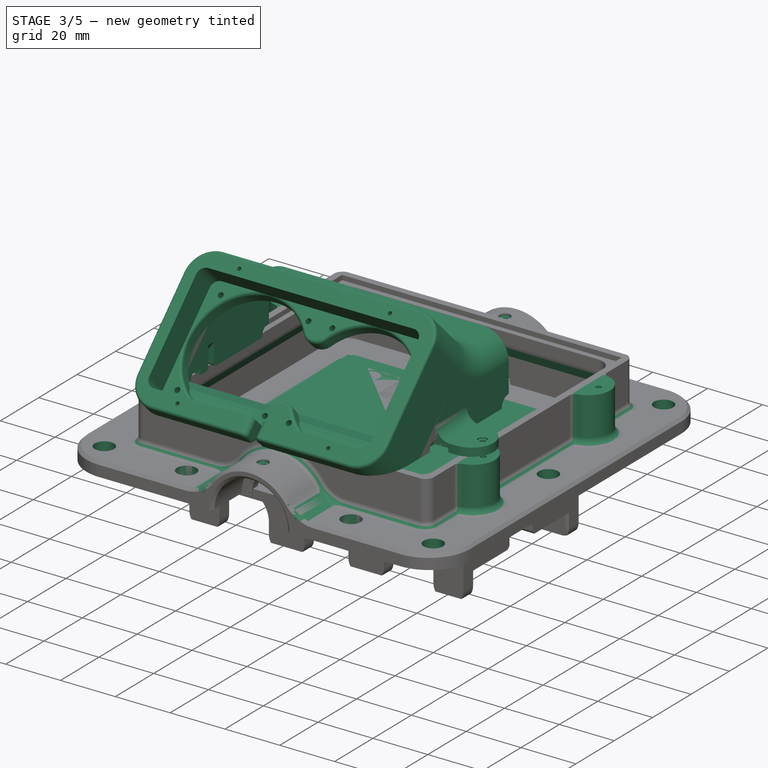
[diagram: stage 3 of 5 — iso view after this stage's code; geometry added in this stage tinted green]
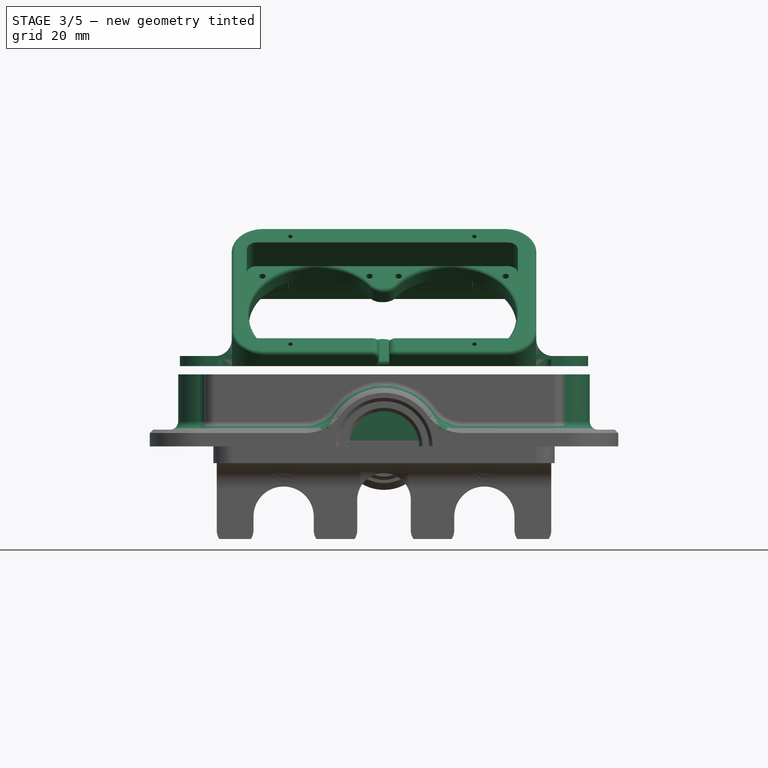
[diagram: stage 3 of 5 — front view after this stage's code; geometry added in this stage tinted green]
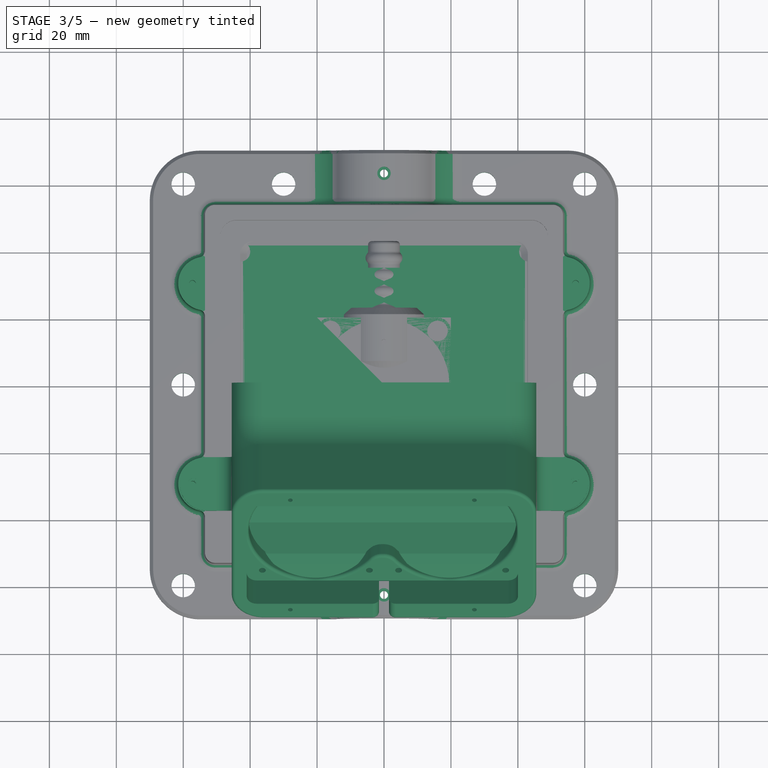
[diagram: stage 3 of 5 — top view after this stage's code; geometry added in this stage tinted green]
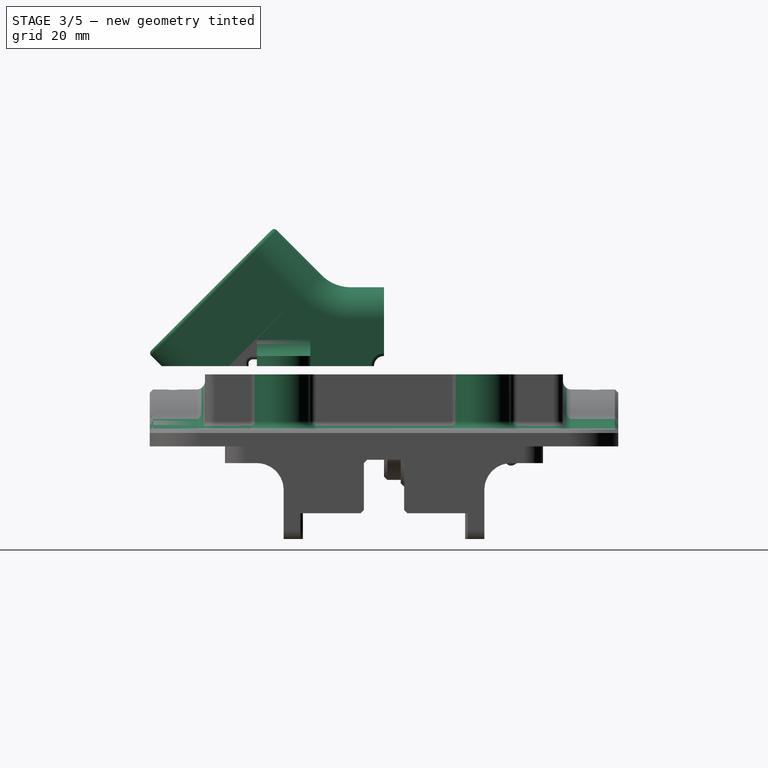
[diagram: stage 3 of 5 — right view after this stage's code; geometry added in this stage tinted green]
FEATURE [Sketcher::SketchObject] Sketch010
  ExternalGeometry = -> [Fillet003]
  FullyConstrained = false
  MapMode = 5
  Placement = pos=(0,0,5) rot=(0,0,1;0rad)
  Support = -> [Fillet003]
  sketch-geometry (9):
    g0: ArcOfCircle CenterX=-53.5 CenterY=30 CenterZ=0 NormalX=0 NormalY=0 NormalZ=1 AngleXU=0 Radius=8 StartAngle=1.5708 EndAngle=4.71239
    g1: LineSegment StartX=-53.5 StartY=38 StartZ=0 EndX=-53.5 EndY=22 EndZ=0
    g2: ArcOfCircle CenterX=-53.5 CenterY=-30 CenterZ=0 NormalX=0 NormalY=0 NormalZ=1 AngleXU=0 Radius=8 StartAngle=1.5708 EndAngle=4.71239
    g3: LineSegment StartX=-53.5 StartY=-22 StartZ=0 EndX=-53.5 EndY=-38 EndZ=0
    g4: LineSegment StartX=52.6856 StartY=38.4151 StartZ=0 EndX=52.6856 EndY=22.4151 EndZ=0
    g5: ArcOfCircle CenterX=53.5 CenterY=30 CenterZ=0 NormalX=0 NormalY=0 NormalZ=1 AngleXU=0 Radius=8 StartAngle=4.71239 EndAngle=7.85398
    g6: LineSegment StartX=53.5 StartY=38 StartZ=0 EndX=53.5 EndY=22 EndZ=0
    g7: ArcOfCircle CenterX=53.5 CenterY=-30 CenterZ=0 NormalX=0 NormalY=0 NormalZ=1 AngleXU=0 Radius=8 StartAngle=4.71239 EndAngle=7.85398
    g8: LineSegment StartX=53.5 StartY=-22 StartZ=0 EndX=53.5 EndY=-38 EndZ=0
  constraints (28):
    c: Coincident(g1,g0)
    c: Coincident(g1,g0)
    c: Vertical(g1)
    c: PointOnObject(g0,g1)
    c: PointOnObject(g0,g-3)
    c: Radius(g0) = 8
    c: DistanceY(g-1,g0) = 30
    c: Coincident(g3,g2)
    c: Coincident(g3,g2)
    c: Vertical(g3)
    c: PointOnObject(g2,g3)
    c: Equal(g0,g2) = 8
    c: PointOnObject(g3,g-3)
    c: DistanceY(g2,g-1) = 30
    c: Coincident(g6,g5)
    c: Coincident(g6,g5)
    c: Vertical(g6)
    c: PointOnObject(g5,g6)
    c: PointOnObject(g5,g-4)
    c: Radius(g5) = 8
    c: DistanceY(g-1,g5) = 30
    c: Coincident(g8,g7)
    c: Coincident(g8,g7)
    c: Vertical(g8)
    c: PointOnObject(g7,g8)
    c: Equal(g5,g7) = 8
    c: PointOnObject(g8,g-4)
    c: DistanceY(g7,g-1) = 30
FEATURE [PartDesign::Pad] Pad003
  BaseFeature = -> Fillet003
  Direction = (1,1,1)
  Length = 16.5
  Length2 = 100
  Profile = -> Sketch010
  Type = 0
FEATURE [Sketcher::SketchObject] Sketch011
  ExternalGeometry = -> [Pad003]
  FullyConstrained = false
  MapMode = 5
  Placement = pos=(0,0,21.5) rot=(0,0,1;0rad)
  Support = -> [Pad003]
  sketch-geometry (8):
    g0: Circle CenterX=-57.25 CenterY=30 CenterZ=0 NormalX=0 NormalY=0 NormalZ=1 AngleXU=0 Radius=1
    g1: LineSegment StartX=-76.8608 StartY=30 StartZ=0 EndX=82.2031 EndY=30 EndZ=0
    g2: Circle CenterX=-57.25 CenterY=-30 CenterZ=0 NormalX=0 NormalY=0 NormalZ=1 AngleXU=0 Radius=1
    g3: LineSegment StartX=-81.8492 StartY=-30 StartZ=0 EndX=82.3867 EndY=-30 EndZ=0
    g4: LineSegment StartX=-57.25 StartY=70.4544 StartZ=0 EndX=-57.25 EndY=-68.3943 EndZ=0
    g5: Circle CenterX=57.25 CenterY=30 CenterZ=0 NormalX=0 NormalY=0 NormalZ=1 AngleXU=0 Radius=1
    g6: LineSegment StartX=57.25 StartY=49.846 StartZ=0 EndX=57.25 EndY=-67.9212 EndZ=0
    g7: Circle CenterX=57.25 CenterY=-30 CenterZ=0 NormalX=0 NormalY=0 NormalZ=1 AngleXU=0 Radius=1
  constraints (20):
    c: Horizontal(g1)
    c: PointOnObject(g0,g1)
    c: PointOnObject(g-3,g1)
    c: DistanceX(g0,g-3) = 3.75
    c: Radius(g0) = 1
    c: Equal(g0,g2) = 2
    c: Horizontal(g3)
    c: PointOnObject(g-4,g3)
    c: PointOnObject(g2,g3)
    c: Vertical(g4)
    c: PointOnObject(g0,g4)
    c: PointOnObject(g2,g4)
    c: PointOnObject(g5,g1)
    c: DistanceX(g-5,g5) = 3.75
    c: Radius(g5) = 1
    c: Vertical(g6)
    c: PointOnObject(g5,g6)
    c: PointOnObject(g7,g6)
    c: Radius(g7) = 1
    c: PointOnObject(g7,g3)
FEATURE [PartDesign::Pocket] Pocket005
  BaseFeature = -> Pad003
  Length = 9
  Length2 = 100
  Profile = -> Sketch011
  Type = 0
FEATURE [Sketcher::SketchObject] Sketch022
  ExternalGeometry = -> [Pocket005]
  FullyConstrained = false
  MapMode = 5
  Placement = pos=(0,0,5) rot=(0,0,1;0rad)
  Support = -> [Pocket005]
  sketch-geometry (16):
    g0: Circle CenterX=60 CenterY=60 CenterZ=0 NormalX=0 NormalY=0 NormalZ=1 AngleXU=0 Radius=3.15
    g1: LineSegment StartX=60 StartY=110.842 StartZ=0 EndX=60 EndY=-99.4806 EndZ=0
    g2: Circle CenterX=60 CenterY=0 CenterZ=0 NormalX=0 NormalY=0 NormalZ=1 AngleXU=0 Radius=3.15
    g3: Circle CenterX=60 CenterY=-60 CenterZ=0 NormalX=0 NormalY=0 NormalZ=1 AngleXU=0 Radius=3.15
    g4: LineSegment StartX=-108.692 StartY=60 StartZ=0 EndX=144.847 EndY=60 EndZ=0
    g5: LineSegment StartX=-80.8477 StartY=-60 StartZ=0 EndX=154.796 EndY=-60 EndZ=0
    g6: LineSegment StartX=-60 StartY=94.5633 StartZ=0 EndX=-60 EndY=-106.278 EndZ=0
    g7: Circle CenterX=-60 CenterY=60 CenterZ=0 NormalX=0 NormalY=0 NormalZ=1 AngleXU=0 Radius=3.15
    g8: Circle CenterX=-60 CenterY=0 CenterZ=0 NormalX=0 NormalY=0 NormalZ=1 AngleXU=0 Radius=3.15
    g9: Circle CenterX=-60 CenterY=-60 CenterZ=0 NormalX=0 NormalY=0 NormalZ=1 AngleXU=0 Radius=3.15
    g10: LineSegment StartX=-30 StartY=99.6671 StartZ=0 EndX=-30 EndY=-134.756 EndZ=0
    g11: LineSegment StartX=30 StartY=100.707 StartZ=0 EndX=30 EndY=-134.756 EndZ=0
    g12: Circle CenterX=-30 CenterY=60 CenterZ=0 NormalX=0 NormalY=0 NormalZ=1 AngleXU=0 Radius=3.15
    g13: Circle CenterX=30 CenterY=60 CenterZ=0 NormalX=0 NormalY=0 NormalZ=1 AngleXU=0 Radius=3.15
    g14: Circle CenterX=-30 CenterY=-60 CenterZ=0 NormalX=0 NormalY=0 NormalZ=1 AngleXU=0 Radius=3.15
    g15: Circle CenterX=30 CenterY=-60 CenterZ=0 NormalX=0 NormalY=0 NormalZ=1 AngleXU=0 Radius=3.15
  constraints (42):
    c: Vertical(g1)
    c: PointOnObject(g0,g1)
    c: PointOnObject(g2,g1)
    c: PointOnObject(g2,g-1)
    c: PointOnObject(g3,g1)
    c: Horizontal(g4)
    c: Horizontal(g5)
    c: PointOnObject(g0,g4)
    c: PointOnObject(g3,g5)
    c: DistanceX(g0,g-3) = 10
    c: DistanceY(g0,g-4) = 10
    c: DistanceY(g-5,g3) = 10
    c: Vertical(g6)
    c: DistanceX(g-6,g6) = 10
    c: PointOnObject(g7,g4)
    c: PointOnObject(g7,g6)
    c: PointOnObject(g8,g6)
    c: PointOnObject(g8,g-1)
    c: PointOnObject(g9,g6)
    c: PointOnObject(g9,g5)
    c: Vertical(g10)
    c: Vertical(g11)
    c: PointOnObject(g12,g4)
    c: PointOnObject(g12,g10)
    c: PointOnObject(g13,g4)
    c: PointOnObject(g13,g11)
    c: PointOnObject(g14,g10)
    c: PointOnObject(g15,g5)
    c: PointOnObject(g15,g11)
    c: PointOnObject(g14,g5)
    c: Radius(g13) = 3.15
    c: DistanceX(g-1,g11) = 30
    c: Radius(g0) = 3.15
    c: Radius(g2) = 3.15
    c: Radius(g3) = 3.15
    c: Radius(g15) = 3.15
    c: Radius(g14) = 3.15
    c: Radius(g9) = 3.15
    c: Radius(g8) = 3.15
    c: Radius(g7) = 3.15
    c: Radius(g12) = 3.15
    c: DistanceX(g10,g-1) = 30
FEATURE [PartDesign::Hole] Hole
  BaseFeature = -> Pocket005
  Depth = 25
  DepthType = 0
  Diameter = 7
  DrillForDepth = false
  DrillPoint = 1
  DrillPointAngle = 118
  HoleCutCountersinkAngle = 90
  HoleCutCustomValues = false
  HoleCutDepth = 8
  HoleCutDiameter = 15
  HoleCutType = 0
  ModelActualThread = false
  Profile = -> Sketch022
  Tapered = false
  TaperedAngle = 90
  ThreadAngle = 60
  ThreadClass = 0
  ThreadCutOffInner = 0.108253
  ThreadCutOffOuter = 0.216506
  ThreadDirection = 0
  ThreadFit = 2
  ThreadPitch = 1
  ThreadSize = 14
  ThreadType = 1
  Threaded = false
FEATURE [Sketcher::SketchObject] Sketch023
  ExternalGeometry = -> [Hole]
  FullyConstrained = true
  MapMode = 5
  Placement = pos=(0,0,0) rot=(1,0,0;1.5708rad)
  Support = -> [XZ_Plane]
  sketch-geometry (3):
    g0: LineSegment StartX=-51 StartY=15 StartZ=0 EndX=-49 EndY=15 EndZ=0
    g1: LineSegment StartX=-49 StartY=15 StartZ=0 EndX=-51 EndY=11 EndZ=0
    g2: LineSegment StartX=-51 StartY=11 StartZ=0 EndX=-51 EndY=15 EndZ=0
  constraints (7):
    c: Coincident(g1,g0)
    c: Coincident(g2,g1)
    c: Coincident(g2,g0)
    c: Vertical(g2)
    c: Coincident(g0,g-3)
    c: Coincident(g0,g-4)
    c: DistanceY(g2,g2) = 4
FEATURE [PartDesign::AdditivePipe] AdditivePipe
  AuxilleryCurvelinear = true
  AuxillerySpineTangent = false
  BaseFeature = -> Hole
  Binormal = (0,0,0)
  Mode = 0
  Profile = -> Sketch023
  Spine = -> Hole [Edge201,Edge203,Edge205,Edge207,Edge208,Edge206,Edge204,Edge202]
  SpineTangent = false
  Transformation = 0
  Transition = 0
FEATURE [PartDesign::Fillet] Fillet004
  Base = -> AdditivePipe [Edge221,Edge260,Edge226,Edge256,Edge270,Edge266,Edge234,Edge263]
  BaseFeature = -> AdditivePipe
  Radius = 4
  SupportTransform = false
FEATURE [PartDesign::Fillet] Fillet005
  Base = -> Fillet004 [Edge209,Edge225,Edge205,Edge229]
  BaseFeature = -> Fillet004
  Radius = 12
  SupportTransform = false
FEATURE [PartDesign::Fillet] Fillet006
  Base = -> Fillet005 [Edge8,Edge16,Edge14,Edge18,Edge20,Edge72,Edge76,Edge78,Edge80,Edge147,Edge146,Edge148,Edge55,Edge57,Edge53]
  BaseFeature = -> Fillet005
  Radius = 2.5
  SupportTransform = false
FEATURE [PartDesign::Fillet] Fillet007
  Base = -> Fillet006 [Edge99,Edge97,Edge101,Edge111,Edge245,Edge251,Edge249,Edge244]
  BaseFeature = -> Fillet006
  Radius = 2
  SupportTransform = false
FEATURE [PartDesign::Chamfer] Chamfer
  Angle = 45
  Base = -> Fillet007 [Edge244,Edge16]
  BaseFeature = -> Fillet007
  ChamferType = 0
  FlipDirection = false
  Size = 1
  Size2 = 1
  SupportTransform = false
FEATURE [Sketcher::SketchObject] Sketch028
  FullyConstrained = true
  MapMode = 5
  Support = -> [XY_Plane]
  sketch-geometry (2):
    g0: Circle CenterX=0 CenterY=63 CenterZ=0 NormalX=0 NormalY=0 NormalZ=1 AngleXU=0 Radius=1
    g1: Circle CenterX=0 CenterY=-63 CenterZ=0 NormalX=0 NormalY=0 NormalZ=1 AngleXU=0 Radius=1
  constraints (6):
    c: PointOnObject(g0,g-2)
    c: DistanceY(g-1,g0) = 63
    c: Radius(g0) = 1
    c: PointOnObject(g1,g-2)
    c: Radius(g1) = 1
    c: DistanceY(g1,g-1) = 63
FEATURE [PartDesign::Hole] Hole001
  BaseFeature = -> Chamfer
  Depth = 25
  DepthType = 0
  Diameter = 2.4
  DrillForDepth = false
  DrillPoint = 1
  DrillPointAngle = 118
  HoleCutCountersinkAngle = 90
  HoleCutCustomValues = false
  HoleCutDepth = 0
  HoleCutDiameter = 6.1
  HoleCutType = 0
  ModelActualThread = false
  Profile = -> Sketch028
  Reversed = true
  Tapered = false
  TaperedAngle = 90
  ThreadAngle = 0
  ThreadClass = 0
  ThreadCutOffInner = 0
  ThreadCutOffOuter = 0
  ThreadDirection = 0
  ThreadFit = 0
  ThreadPitch = 0
  ThreadSize = 6
  ThreadType = 1
  Threaded = false
FEATURE [PartDesign::Plane] DatumPlane
  AttachmentOffset = pos=(0,0,17) rot=(0,0,1;0rad)
  Length = 168
  MapMode = 5
  Placement = pos=(0,0,17) rot=(0,0,1;0rad)
  ResizeMode = 0
  Support = -> [XY_Plane]
  Width = 168
FEATURE [Sketcher::SketchObject] Sketch029
  FullyConstrained = true
  MapMode = 5
  Placement = pos=(0,0,17) rot=(0,0,1;0rad)
  Support = -> [DatumPlane]
  sketch-geometry (2):
    g0: Circle CenterX=0 CenterY=63 CenterZ=0 NormalX=0 NormalY=0 NormalZ=1 AngleXU=0 Radius=2
    g1: Circle CenterX=0 CenterY=-63 CenterZ=0 NormalX=0 NormalY=0 NormalZ=1 AngleXU=0 Radius=2
  constraints (6):
    c: PointOnObject(g0,g-2)
    c: DistanceY(g-1,g0) = 63
    c: Radius(g0) = 2
    c: PointOnObject(g1,g-2)
    c: Radius(g1) = 2
    c: DistanceY(g1,g-1) = 63
FEATURE [PartDesign::Pocket] Pocket006
  BaseFeature = -> Hole001
  Length = 2
  Length2 = 100
  Midplane = true
  Profile = -> Sketch029
  Type = 0
FEATURE [Sketcher::SketchObject] Sketch067
  FullyConstrained = true
  MapMode = 5
  Support = -> [XY_Plane069]
  sketch-geometry (4):
    g0: LineSegment StartX=-20 StartY=20 StartZ=0 EndX=20 EndY=20 EndZ=0
    g1: LineSegment StartX=20 StartY=20 StartZ=0 EndX=20 EndY=-20 EndZ=0
    g2: LineSegment StartX=20 StartY=-20 StartZ=0 EndX=-20 EndY=-20 EndZ=0
    g3: LineSegment StartX=-20 StartY=-20 StartZ=0 EndX=-20 EndY=20 EndZ=0
  constraints (12):
    c: Coincident(g0,g1)
    c: Coincident(g1,g2)
    c: Coincident(g2,g3)
    c: Coincident(g3,g0)
    c: Horizontal(g0)
    c: Horizontal(g2)
    c: Vertical(g1)
    c: Vertical(g3)
    c: DistanceX(g0,g0) = 40
    c: DistanceY(g1,g1) = 40
    c: DistanceX(g0,g-1) = 20
    c: DistanceY(g1,g-1) = 20
FEATURE [PartDesign::Pad] Pad025
  Direction = (1,1,1)
  Length = 11
  Length2 = 100
  Profile = -> Sketch067
  Type = 0
FEATURE [Sketcher::SketchObject] Sketch072
  FullyConstrained = true
  MapMode = 5
  Support = -> [XY_Plane068]
  sketch-geometry (1):
    g0: Circle CenterX=0 CenterY=0 CenterZ=0 NormalX=0 NormalY=0 NormalZ=1 AngleXU=0 Radius=12.25
  constraints (2):
    c: Coincident(g0,g-1)
    c: Radius(g0) = 12.25
FEATURE [PartDesign::Pad] Pad027
  Direction = (1,1,1)
  Length = 10
  Length2 = 100
  Profile = -> Sketch072
  Type = 0
FEATURE [Sketcher::SketchObject] Sketch075
  FullyConstrained = true
  MapMode = 5
  Support = -> [XY_Plane059]
  sketch-geometry (4):
    g0: LineSegment StartX=-20 StartY=20 StartZ=0 EndX=20 EndY=20 EndZ=0
    g1: LineSegment StartX=20 StartY=20 StartZ=0 EndX=20 EndY=-20 EndZ=0
    g2: LineSegment StartX=20 StartY=-20 StartZ=0 EndX=-20 EndY=-20 EndZ=0
    g3: LineSegment StartX=-20 StartY=-20 StartZ=0 EndX=-20 EndY=20 EndZ=0
  constraints (12):
    c: Coincident(g0,g1)
    c: Coincident(g1,g2)
    c: Coincident(g2,g3)
    c: Coincident(g3,g0)
    c: Horizontal(g0)
    c: Horizontal(g2)
    c: Vertical(g1)
    c: Vertical(g3)
    c: DistanceX(g0,g0) = 40
    c: DistanceY(g1,g1) = 40
    c: DistanceX(g0,g-1) = 20
    c: DistanceY(g1,g-1) = 20
FEATURE [PartDesign::Pad] Pad024
  Direction = (1,1,1)
  Length = 11
  Length2 = 100
  Profile = -> Sketch075
  Type = 0
FEATURE [Sketcher::SketchObject] Sketch081
  FullyConstrained = true
  MapMode = 5
  Support = -> [XY_Plane061]
  sketch-geometry (4):
    g0: LineSegment StartX=-20 StartY=20 StartZ=0 EndX=20 EndY=20 EndZ=0
    g1: LineSegment StartX=20 StartY=20 StartZ=0 EndX=20 EndY=-20 EndZ=0
    g2: LineSegment StartX=20 StartY=-20 StartZ=0 EndX=-20 EndY=-20 EndZ=0
    g3: LineSegment StartX=-20 StartY=-20 StartZ=0 EndX=-20 EndY=20 EndZ=0
  constraints (12):
    c: Coincident(g0,g1)
    c: Coincident(g1,g2)
    c: Coincident(g2,g3)
    c: Coincident(g3,g0)
    c: Horizontal(g0)
    c: Horizontal(g2)
    c: Vertical(g1)
    c: Vertical(g3)
    c: DistanceX(g0,g0) = 40
    c: DistanceY(g1,g1) = 40
    c: DistanceX(g0,g-1) = 20
    c: DistanceY(g1,g-1) = 20
FEATURE [PartDesign::Pad] Pad032
  Direction = (1,1,1)
  Length = 11
  Length2 = 100
  Profile = -> Sketch081
  Type = 0
FEATURE [Sketcher::SketchObject] Sketch076
  FullyConstrained = true
  MapMode = 5
  Placement = pos=(0,0,11) rot=(0,0,1;0rad)
  Support = -> [Pad032]
  sketch-geometry (1):
    g0: Circle CenterX=0 CenterY=0 CenterZ=0 NormalX=0 NormalY=0 NormalZ=1 AngleXU=0 Radius=19
  constraints (2):
    c: Coincident(g0,g-1)
    c: Radius(g0) = 19
FEATURE [PartDesign::Pocket] Pocket018
  BaseFeature = -> Pad032
  Length = 5
  Length2 = 100
  Profile = -> Sketch076
  Type = 1
FEATURE [Sketcher::SketchObject] Sketch071
  ExternalGeometry = -> [Pocket018]
  FullyConstrained = false
  MapMode = 5
  Placement = pos=(0,0,11) rot=(0,0,1;0rad)
  Support = -> [Pocket018]
  sketch-geometry (8):
    g0: Circle CenterX=16 CenterY=16 CenterZ=0 NormalX=0 NormalY=0 NormalZ=1 AngleXU=0 Radius=1.75
    g1: LineSegment StartX=16 StartY=26.8506 StartZ=0 EndX=16 EndY=-28.9031 EndZ=0
    g2: Circle CenterX=16 CenterY=-16 CenterZ=0 NormalX=0 NormalY=0 NormalZ=1 AngleXU=0 Radius=1.75
    g3: LineSegment StartX=-28.6992 StartY=-16 StartZ=0 EndX=48.6186 EndY=-16 EndZ=0
    g4: LineSegment StartX=-16 StartY=27.4413 StartZ=0 EndX=-16 EndY=-28.3124 EndZ=0
    g5: LineSegment StartX=-29.9463 StartY=16 StartZ=0 EndX=47.3716 EndY=16 EndZ=0
    g6: Circle CenterX=-16 CenterY=16 CenterZ=0 NormalX=0 NormalY=0 NormalZ=1 AngleXU=0 Radius=1.75
    g7: Circle CenterX=-16 CenterY=-16 CenterZ=0 NormalX=0 NormalY=0 NormalZ=1 AngleXU=0 Radius=1.75
  constraints (20):
    c: Vertical(g1)
    c: PointOnObject(g0,g1)
    c: PointOnObject(g2,g1)
    c: Horizontal(g3)
    c: PointOnObject(g2,g3)
    c: Vertical(g4)
    c: Horizontal(g5)
    c: PointOnObject(g0,g5)
    c: Radius(g0) = 1.75
    c: DistanceY(g0,g-4) = 4
    c: DistanceX(g0,g-4) = 4
    c: DistanceY(g-4,g2) = 4
    c: Radius(g2) = 1.75
    c: DistanceX(g-3,g4) = 4
    c: PointOnObject(g6,g4)
    c: PointOnObject(g6,g5)
    c: Radius(g6) = 1.75
    c: Equal(g6,g7) = 1.75
    c: PointOnObject(g7,g4)
    c: PointOnObject(g7,g3)
FEATURE [PartDesign::Hole] Hole008
  BaseFeature = -> Pocket018
  Depth = 25
  DepthType = 0
  Diameter = 3.9
  DrillForDepth = false
  DrillPoint = 1
  DrillPointAngle = 118
  HoleCutCountersinkAngle = 90
  HoleCutCustomValues = false
  HoleCutDepth = 3.9
  HoleCutDiameter = 6.1
  HoleCutType = 1
  ModelActualThread = false
  Profile = -> Sketch071
  Tapered = false
  TaperedAngle = 90
  ThreadAngle = 0
  ThreadClass = 0
  ThreadCutOffInner = 0
  ThreadCutOffOuter = 0
  ThreadDirection = 0
  ThreadFit = 0
  ThreadPitch = 0
  ThreadSize = 10
  ThreadType = 1
  Threaded = false
FEATURE [PartDesign::Fillet] Fillet032
  Base = -> Hole008 [Edge2,Edge1,Edge5,Edge8]
  BaseFeature = -> Hole008
  Radius = 4
  SupportTransform = false
FEATURE [PartDesign::Fillet] Fillet028
  Base = -> Fillet032 [Face14]
  BaseFeature = -> Fillet032
  Radius = 0.5
  SupportTransform = false
FEATURE [PartDesign::Fillet] Fillet030
  Base = -> Fillet028 [Face10,Face7,Face3,Face6]
  BaseFeature = -> Fillet028
  Radius = 0.25
  SupportTransform = false
FEATURE [PartDesign::Body] Body038  label="Rotor006"
  Group = -> [Sketch064,Pad026,Fillet029,DatumPlane006,Sketch078,Pad028,Sketch070,Pocket019,PolarPattern007]
  Origin = -> Origin070
  Tip = -> PolarPattern007
FEATURE [PartDesign::Plane] DatumPlane007
  AttachmentOffset = pos=(0,-2,-13) rot=(0,0,1;0rad)
  Length = 60
  MapMode = 2
  Placement = pos=(0,13,-2) rot=(1,0,0;1.5708rad)
  ResizeMode = 0
  Support = -> [XZ_Plane066]
  Width = 60
FEATURE [Sketcher::SketchObject] Sketch082
  FullyConstrained = true
  MapMode = 5
  Support = -> [XY_Plane064]
  sketch-geometry (1):
    g0: Circle CenterX=0 CenterY=0 CenterZ=0 NormalX=0 NormalY=0 NormalZ=1 AngleXU=0 Radius=12.25
  constraints (2):
    c: Coincident(g0,g-1)
    c: Radius(g0) = 12.25
FEATURE [PartDesign::Pad] Pad029
  Direction = (1,1,1)
  Length = 10
  Length2 = 100
  Profile = -> Sketch082
  Type = 0
FEATURE [PartDesign::Body] Body041  label="Duct007"
  Group = -> [Sketch081,Pad032,Sketch076,Pocket018,Sketch071,Hole008,Fillet032,Fillet028,Fillet030]
  Origin = -> Origin063
  Tip = -> Fillet030
FEATURE [App::Part] Part019  label="Fan005"
  Group = -> [Body041,Body038]
  Origin = -> Origin067
  Placement = pos=(20.2,41.5874,37.1813) rot=(-1,0,0;0.785398rad)
FEATURE [Sketcher::SketchObject] Sketch083
  FullyConstrained = true
  MapMode = 5
  Support = -> [XY_Plane060]
  sketch-geometry (4):
    g0: LineSegment StartX=-20 StartY=20 StartZ=0 EndX=20 EndY=20 EndZ=0
    g1: LineSegment StartX=20 StartY=20 StartZ=0 EndX=20 EndY=-20 EndZ=0
    g2: LineSegment StartX=20 StartY=-20 StartZ=0 EndX=-20 EndY=-20 EndZ=0
    g3: LineSegment StartX=-20 StartY=-20 StartZ=0 EndX=-20 EndY=20 EndZ=0
  constraints (12):
    c: Coincident(g0,g1)
    c: Coincident(g1,g2)
    c: Coincident(g2,g3)
    c: Coincident(g3,g0)
    c: Horizontal(g0)
    c: Horizontal(g2)
    c: Vertical(g1)
    c: Vertical(g3)
    c: DistanceX(g0,g0) = 40
    c: DistanceY(g1,g1) = 40
    c: DistanceX(g0,g-1) = 20
    c: DistanceY(g1,g-1) = 20
FEATURE [PartDesign::Fillet] Fillet040
  Base = -> Pad027 [Face3,Face2]
  BaseFeature = -> Pad027
  Radius = 0.5
  SupportTransform = false
FEATURE [Sketcher::SketchObject] Sketch084
  FullyConstrained = true
  MapMode = 5
  Placement = pos=(0,0,11) rot=(0,0,1;0rad)
  Support = -> [Pad024]
  sketch-geometry (1):
    g0: Circle CenterX=0 CenterY=0 CenterZ=0 NormalX=0 NormalY=0 NormalZ=1 AngleXU=0 Radius=19
  constraints (2):
    c: Coincident(g0,g-1)
    c: Radius(g0) = 19
FEATURE [PartDesign::Pocket] Pocket024
  BaseFeature = -> Pad024
  Length = 5
  Length2 = 100
  Profile = -> Sketch084
  Type = 1
FEATURE [Sketcher::SketchObject] Sketch080
  ExternalGeometry = -> [Pocket024]
  FullyConstrained = false
  MapMode = 5
  Placement = pos=(0,0,11) rot=(0,0,1;0rad)
  Support = -> [Pocket024]
  sketch-geometry (8):
    g0: Circle CenterX=16 CenterY=16 CenterZ=0 NormalX=0 NormalY=0 NormalZ=1 AngleXU=0 Radius=1.75
    g1: LineSegment StartX=16 StartY=26.8506 StartZ=0 EndX=16 EndY=-28.9031 EndZ=0
    g2: Circle CenterX=16 CenterY=-16 CenterZ=0 NormalX=0 NormalY=0 NormalZ=1 AngleXU=0 Radius=1.75
    g3: LineSegment StartX=-28.6992 StartY=-16 StartZ=0 EndX=48.6186 EndY=-16 EndZ=0
    g4: LineSegment StartX=-16 StartY=27.4413 StartZ=0 EndX=-16 EndY=-28.3124 EndZ=0
    g5: LineSegment StartX=-29.9463 StartY=16 StartZ=0 EndX=47.3716 EndY=16 EndZ=0
    g6: Circle CenterX=-16 CenterY=16 CenterZ=0 NormalX=0 NormalY=0 NormalZ=1 AngleXU=0 Radius=1.75
    g7: Circle CenterX=-16 CenterY=-16 CenterZ=0 NormalX=0 NormalY=0 NormalZ=1 AngleXU=0 Radius=1.75
  constraints (20):
    c: Vertical(g1)
    c: PointOnObject(g0,g1)
    c: PointOnObject(g2,g1)
    c: Horizontal(g3)
    c: PointOnObject(g2,g3)
    c: Vertical(g4)
    c: Horizontal(g5)
    c: PointOnObject(g0,g5)
    c: Radius(g0) = 1.75
    c: DistanceY(g0,g-4) = 4
    c: DistanceX(g0,g-4) = 4
    c: DistanceY(g-4,g2) = 4
    c: Radius(g2) = 1.75
    c: DistanceX(g-3,g4) = 4
    c: PointOnObject(g6,g4)
    c: PointOnObject(g6,g5)
    c: Radius(g6) = 1.75
    c: Equal(g6,g7) = 1.75
    c: PointOnObject(g7,g4)
    c: PointOnObject(g7,g3)
FEATURE [PartDesign::Pad] Pad033
  Direction = (1,1,1)
  Length = 10
  Length2 = 100
  Profile = -> Sketch069
  Type = 0
FEATURE [Sketcher::SketchObject] Sketch085
  FullyConstrained = true
  MapMode = 5
  Placement = pos=(0,13,-2) rot=(1,0,0;1.5708rad)
  Support = -> [DatumPlane007]
  sketch-geometry (2):
    g0: ArcOfCircle CenterX=4.54824 CenterY=0.0282968 CenterZ=0 NormalX=0 NormalY=0 NormalZ=1 AngleXU=0 Radius=10 StartAngle=1.49555 EndAngle=2.83986
    g1: ArcOfCircle CenterX=6.56442 CenterY=-2.93836 CenterZ=0 NormalX=0 NormalY=0 NormalZ=1 AngleXU=0 Radius=13 StartAngle=1.66821 EndAngle=2.6672
  constraints (8):
    c: Coincident(g1,g0)
    c: Coincident(g1,g0)
    c: DistanceX(g-1,g0) = 5.3
    c: DistanceY(g-1,g0) = 10
    c: DistanceX(g0,g-1) = 5
    c: DistanceY(g-1,g0) = 3
    c: Radius(g1) = 13
    c: Radius(g0) = 10
FEATURE [PartDesign::Pad] Pad030
  BaseFeature = -> Fillet040
  Direction = (1,1,1)
  Length = 15
  Length2 = 100
  Midplane = true
  Profile = -> Sketch085
  Type = 0
FEATURE [Sketcher::SketchObject] Sketch063
  FullyConstrained = true
  MapMode = 5
  Placement = pos=(0,0,10) rot=(0,0,1;0rad)
  Support = -> [Pad030]
  sketch-geometry (2):
    g0: Circle CenterX=0 CenterY=0 CenterZ=0 NormalX=0 NormalY=0 NormalZ=1 AngleXU=0 Radius=18.75
    g1: Circle CenterX=0 CenterY=0 CenterZ=0 NormalX=0 NormalY=0 NormalZ=1 AngleXU=0 Radius=32.89
  constraints (4):
    c: Coincident(g0,g-1)
    c: Coincident(g1,g0)
    c: Radius(g0) = 18.75
    c: Radius(g1) = 32.89
FEATURE [PartDesign::Pocket] Pocket020
  BaseFeature = -> Pad030
  Length = 5
  Length2 = 100
  Profile = -> Sketch063
  Type = 1
FEATURE [PartDesign::PolarPattern] PolarPattern006
  Angle = 360
  Axis = -> Z_Axis065
  BaseFeature = -> Pocket020
  Occurrences = 8
  Originals = -> [Pad030,Pocket020]
FEATURE [PartDesign::Fillet] Fillet042
  Base = -> Pad029 [Face3,Face2]
  BaseFeature = -> Pad029
  Radius = 0.5
  SupportTransform = false
FEATURE [PartDesign::Body] Body035  label="Rotor004"
  Group = -> [Sketch082,Pad029,Fillet042,DatumPlane008,Sketch065,Pad031,Sketch077,Pocket021,PolarPattern005]
  Origin = -> Origin069
  Tip = -> PolarPattern005
FEATURE [PartDesign::Pad] Pad034
  Direction = (1,1,1)
  Length = 11
  Length2 = 100
  Profile = -> Sketch083
  Type = 0
FEATURE [PartDesign::Body] Body040  label="Duct006"
  Group = -> [Sketch083,Pad034,Sketch073,Pocket023,Sketch068,Hole007,Fillet034,Fillet038,Fillet035]
  Origin = -> Origin060
  Tip = -> Fillet035
FEATURE [PartDesign::Body] Body042  label="Rotor007"
  Group = -> [Sketch072,Pad027,Fillet040,DatumPlane007,Sketch085,Pad030,Sketch063,Pocket020,PolarPattern006]
  Origin = -> Origin061
  Tip = -> PolarPattern006
FEATURE [App::Part] Part018  label="Fan004"
  Group = -> [Body040,Body042]
  Origin = -> Origin068
  Placement = pos=(20.2,-42.934,37.8884) rot=(1,0,0;0.785398rad)
FEATURE [PartDesign::Pocket] Pocket025
  BaseFeature = -> Pad025
  Length = 5
  Length2 = 100
  Profile = -> Sketch066
  Type = 1
FEATURE [Sketcher::SketchObject] Sketch074
  ExternalGeometry = -> [Pocket025]
  FullyConstrained = false
  MapMode = 5
  Placement = pos=(0,0,11) rot=(0,0,1;0rad)
  Support = -> [Pocket025]
  sketch-geometry (8):
    g0: Circle CenterX=16 CenterY=16 CenterZ=0 NormalX=0 NormalY=0 NormalZ=1 AngleXU=0 Radius=1.75
    g1: LineSegment StartX=16 StartY=26.8506 StartZ=0 EndX=16 EndY=-28.9031 EndZ=0
    g2: Circle CenterX=16 CenterY=-16 CenterZ=0 NormalX=0 NormalY=0 NormalZ=1 AngleXU=0 Radius=1.75
    g3: LineSegment StartX=-28.6992 StartY=-16 StartZ=0 EndX=48.6186 EndY=-16 EndZ=0
    g4: LineSegment StartX=-16 StartY=27.4413 StartZ=0 EndX=-16 EndY=-28.3124 EndZ=0
    g5: LineSegment StartX=-29.9463 StartY=16 StartZ=0 EndX=47.3716 EndY=16 EndZ=0
    g6: Circle CenterX=-16 CenterY=16 CenterZ=0 NormalX=0 NormalY=0 NormalZ=1 AngleXU=0 Radius=1.75
    g7: Circle CenterX=-16 CenterY=-16 CenterZ=0 NormalX=0 NormalY=0 NormalZ=1 AngleXU=0 Radius=1.75
  constraints (20):
    c: Vertical(g1)
    c: PointOnObject(g0,g1)
    c: PointOnObject(g2,g1)
    c: Horizontal(g3)
    c: PointOnObject(g2,g3)
    c: Vertical(g4)
    c: Horizontal(g5)
    c: PointOnObject(g0,g5)
    c: Radius(g0) = 1.75
    c: DistanceY(g0,g-4) = 4
    c: DistanceX(g0,g-4) = 4
    c: DistanceY(g-4,g2) = 4
    c: Radius(g2) = 1.75
    c: DistanceX(g-3,g4) = 4
    c: PointOnObject(g6,g4)
    c: PointOnObject(g6,g5)
    c: Radius(g6) = 1.75
    c: Equal(g6,g7) = 1.75
    c: PointOnObject(g7,g4)
    c: PointOnObject(g7,g3)
FEATURE [PartDesign::Hole] Hole006
  BaseFeature = -> Pocket025
  Depth = 25
  DepthType = 0
  Diameter = 3.9
  DrillForDepth = false
  DrillPoint = 1
  DrillPointAngle = 118
  HoleCutCountersinkAngle = 90
  HoleCutCustomValues = false
  HoleCutDepth = 3.9
  HoleCutDiameter = 6.1
  HoleCutType = 1
  ModelActualThread = false
  Profile = -> Sketch074
  Tapered = false
  TaperedAngle = 90
  ThreadAngle = 0
  ThreadClass = 0
  ThreadCutOffInner = 0
  ThreadCutOffOuter = 0
  ThreadDirection = 0
  ThreadFit = 0
  ThreadPitch = 0
  ThreadSize = 10
  ThreadType = 1
  Threaded = false
FEATURE [PartDesign::Body] Body037  label="Rotor005"
  Group = -> [Sketch069,Pad033,Fillet031,DatumPlane009,Sketch062,Pad023,Sketch079,Pocket022,PolarPattern008]
  Origin = -> Origin064
  Tip = -> PolarPattern008
FEATURE [PartDesign::Fillet] Fillet043
  Base = -> Hole006 [Edge2,Edge1,Edge5,Edge8]
  BaseFeature = -> Hole006
  Radius = 4
  SupportTransform = false
FEATURE [PartDesign::Fillet] Fillet036
  Base = -> Fillet043 [Face14]
  BaseFeature = -> Fillet043
  Radius = 0.5
  SupportTransform = false
FEATURE [PartDesign::Fillet] Fillet041
  Base = -> Fillet036 [Face10,Face7,Face3,Face6]
  BaseFeature = -> Fillet036
  Radius = 0.25
  SupportTransform = false
FEATURE [PartDesign::Body] Body036  label="Duct004"
  Group = -> [Sketch067,Pad025,Sketch066,Pocket025,Sketch074,Hole006,Fillet043,Fillet036,Fillet041]
  Origin = -> Origin062
  Tip = -> Fillet041
FEATURE [App::Part] Part020  label="Fan006"
  Group = -> [Body036,Body037]
  Origin = -> Origin058
  Placement = pos=(-20.3,-42.934,37.8884) rot=(1,0,0;0.785398rad)
FEATURE [PartDesign::Hole] Hole009
  BaseFeature = -> Pocket024
  Depth = 25
  DepthType = 0
  Diameter = 3.9
  DrillForDepth = false
  DrillPoint = 1
  DrillPointAngle = 118
  HoleCutCountersinkAngle = 90
  HoleCutCustomValues = false
  HoleCutDepth = 3.9
  HoleCutDiameter = 6.1
  HoleCutType = 1
  ModelActualThread = false
  Profile = -> Sketch080
  Tapered = false
  TaperedAngle = 90
  ThreadAngle = 0
  ThreadClass = 0
  ThreadCutOffInner = 0
  ThreadCutOffOuter = 0
  ThreadDirection = 0
  ThreadFit = 0
  ThreadPitch = 0
  ThreadSize = 10
  ThreadType = 1
  Threaded = false
FEATURE [PartDesign::Fillet] Fillet033
  Base = -> Hole009 [Edge2,Edge1,Edge5,Edge8]
  BaseFeature = -> Hole009
  Radius = 4
  SupportTransform = false
FEATURE [PartDesign::Fillet] Fillet037
  Base = -> Fillet033 [Face14]
  BaseFeature = -> Fillet033
  Radius = 0.5
  SupportTransform = false
FEATURE [PartDesign::Body] Body039  label="Duct005"
  Group = -> [Sketch075,Pad024,Sketch084,Pocket024,Sketch080,Hole009,Fillet033,Fillet037,Fillet039]
  Origin = -> Origin066
  Tip = -> Fillet039
FEATURE [App::Part] Part022  label="Fan007"
  Group = -> [Body039,Body035]
  Origin = -> Origin065
  Placement = pos=(-19.7,41.5874,37.1813) rot=(-1,0,0;0.785398rad)
FEATURE [App::Part] Part021  label="LowerFans"
  Group = -> [Part019,Part022,Part018,Part020]
  Origin = -> Origin059
  Placement = pos=(0,0,0) rot=(1,0,0;3.14159rad)
FEATURE [Sketcher::SketchObject] Sketch086
  FullyConstrained = true
  MapMode = 5
  Support = -> [XY_Plane071]
  sketch-geometry (4):
    g0: LineSegment StartX=-51 StartY=47.5 StartZ=0 EndX=51 EndY=47.5 EndZ=0
    g1: LineSegment StartX=51 StartY=47.5 StartZ=0 EndX=51 EndY=-47.5 EndZ=0
    g2: LineSegment StartX=51 StartY=-47.5 StartZ=0 EndX=-51 EndY=-47.5 EndZ=0
    g3: LineSegment StartX=-51 StartY=-47.5 StartZ=0 EndX=-51 EndY=47.5 EndZ=0
  constraints (12):
    c: Coincident(g0,g1)
    c: Coincident(g1,g2)
    c: Coincident(g2,g3)
    c: Coincident(g3,g0)
    c: Horizontal(g0)
    c: Horizontal(g2)
    c: Vertical(g1)
    c: Vertical(g3)
    c: DistanceX(g0,g0) = 102
    c: DistanceY(g1,g1) = 95
    c: DistanceX(g0,g-1) = 51
    c: DistanceY(g-1,g0) = 47.5
FEATURE [PartDesign::Pad] Pad035
  Direction = (1,1,1)
  Length = 1.6
  Length2 = 100
  Profile = -> Sketch086
  Type = 0
FEATURE [Sketcher::SketchObject] Sketch087
  ExternalGeometry = -> [Pad035]
  FullyConstrained = false
  MapMode = 5
  Placement = pos=(0,0,1.6) rot=(0,0,1;0rad)
  Support = -> [Pad035]
  sketch-geometry (8):
    g0: Circle CenterX=43.38 CenterY=39.88 CenterZ=0 NormalX=0 NormalY=0 NormalZ=1 AngleXU=0 Radius=2
    g1: LineSegment StartX=-66.6931 StartY=39.88 StartZ=0 EndX=75.9871 EndY=39.88 EndZ=0
    g2: LineSegment StartX=-70.182 StartY=-40.12 StartZ=0 EndX=72.4981 EndY=-40.12 EndZ=0
    g3: LineSegment StartX=-42.97 StartY=50.1481 StartZ=0 EndX=-42.97 EndY=-52.6844 EndZ=0
    g4: LineSegment StartX=43.38 StartY=50.3317 StartZ=0 EndX=43.38 EndY=-52.5008 EndZ=0
    g5: Circle CenterX=43.38 CenterY=-40.12 CenterZ=0 NormalX=0 NormalY=0 NormalZ=1 AngleXU=0 Radius=2
    g6: Circle CenterX=-42.97 CenterY=-40.12 CenterZ=0 NormalX=0 NormalY=0 NormalZ=1 AngleXU=0 Radius=2
    g7: Circle CenterX=-42.97 CenterY=39.88 CenterZ=0 NormalX=0 NormalY=0 NormalZ=1 AngleXU=0 Radius=2
  constraints (20):
    c: Horizontal(g1)
    c: PointOnObject(g0,g1)
    c: Horizontal(g2)
    c: Vertical(g3)
    c: Vertical(g4)
    c: PointOnObject(g0,g4)
    c: DistanceY(g2,g1) = 80
    c: DistanceX(g3,g4) = 86.35
    c: DistanceX(g0,g-4) = 7.62
    c: DistanceY(g0,g-4) = 7.62
    c: Radius(g0) = 2
    c: Equal(g0,g5) = 2
    c: PointOnObject(g5,g4)
    c: PointOnObject(g5,g2)
    c: PointOnObject(g6,g2)
    c: PointOnObject(g6,g3)
    c: Equal(g0,g7) = 2
    c: PointOnObject(g7,g1)
    c: PointOnObject(g7,g3)
    c: Equal(g6,g0)
FEATURE [PartDesign::Hole] Hole010
  BaseFeature = -> Pad035
  Depth = 25
  DepthType = 0
  Diameter = 6
  DrillForDepth = false
  DrillPoint = 1
  DrillPointAngle = 118
  HoleCutCountersinkAngle = 90
  HoleCutCustomValues = false
  HoleCutDepth = 0
  HoleCutDiameter = 6.1
  HoleCutType = 0
  ModelActualThread = false
  Profile = -> Sketch087
  Tapered = false
  TaperedAngle = 90
  ThreadAngle = 0
  ThreadClass = 0
  ThreadCutOffInner = 0
  ThreadCutOffOuter = 0
  ThreadDirection = 0
  ThreadFit = 0
  ThreadPitch = 0
  ThreadSize = 0
  ThreadType = 0
  Threaded = false
FEATURE [PartDesign::Fillet] Fillet044
  Base = -> Hole010 [Edge5,Edge1,Edge2,Edge8]
  BaseFeature = -> Hole010
  Radius = 6.35
  SupportTransform = false
FEATURE [PartDesign::Body] Body043  label="BTS-MainBoard-Power-Board"
  Group = -> [Sketch086,Pad035,Sketch087,Hole010,Fillet044]
  Origin = -> Origin071
  Tip = -> Fillet044
FEATURE [Sketcher::SketchObject] Sketch088
  FullyConstrained = true
  MapMode = 5
  Support = -> [XY_Plane072]
  sketch-geometry (4):
    g0: LineSegment StartX=-37.5 StartY=35 StartZ=0 EndX=37.5 EndY=35 EndZ=0
    g1: LineSegment StartX=37.5 StartY=35 StartZ=0 EndX=37.5 EndY=-35 EndZ=0
    g2: LineSegment StartX=37.5 StartY=-35 StartZ=0 EndX=-37.5 EndY=-35 EndZ=0
    g3: LineSegment StartX=-37.5 StartY=-35 StartZ=0 EndX=-37.5 EndY=35 EndZ=0
  constraints (12):
    c: Coincident(g0,g1)
    c: Coincident(g1,g2)
    c: Coincident(g2,g3)
    c: Coincident(g3,g0)
    c: Horizontal(g0)
    c: Horizontal(g2)
    c: Vertical(g1)
    c: Vertical(g3)
    c: DistanceX(g0,g0) = 75
    c: DistanceY(g1,g1) = 70
    c: DistanceY(g-1,g0) = 35
    c: DistanceX(g0,g-1) = 37.5
FEATURE [PartDesign::Pad] Pad036
  Direction = (1,1,1)
  Length = 5
  Length2 = 100
  Profile = -> Sketch088
  Type = 0
FEATURE [Sketcher::SketchObject] Sketch094
  FullyConstrained = true
  MapMode = 5
  Support = -> [XY_Plane076]
  sketch-geometry (2):
    g0: Circle CenterX=0 CenterY=0 CenterZ=0 NormalX=0 NormalY=0 NormalZ=1 AngleXU=0 Radius=5
    g1: Circle CenterX=0 CenterY=0 CenterZ=0 NormalX=0 NormalY=0 NormalZ=1 AngleXU=0 Radius=2
  constraints (4):
    c: Coincident(g0,g-1)
    c: Coincident(g1,g0)
    c: Radius(g0) = 5
    c: Radius(g1) = 2
FEATURE [PartDesign::Pad] Pad039
  Direction = (1,1,1)
  Length = 5
  Length2 = 100
  Profile = -> Sketch094
  Type = 0
FEATURE [PartDesign::Body] Body046  label="Spacer1"
  Group = -> [Sketch094,Pad039]
  Origin = -> Origin076
  Placement = pos=(-43,-40,0.4) rot=(0,0,1;0rad)
  Tip = -> Pad039
FEATURE [Sketcher::SketchObject] Sketch095
  FullyConstrained = true
  MapMode = 5
  Support = -> [XY_Plane077]
  sketch-geometry (2):
    g0: Circle CenterX=0 CenterY=0 CenterZ=0 NormalX=0 NormalY=0 NormalZ=1 AngleXU=0 Radius=5
    g1: Circle CenterX=0 CenterY=0 CenterZ=0 NormalX=0 NormalY=0 NormalZ=1 AngleXU=0 Radius=2
  constraints (4):
    c: Coincident(g0,g-1)
    c: Coincident(g1,g0)
    c: Radius(g0) = 5
    c: Radius(g1) = 2
FEATURE [PartDesign::Pad] Pad040
  Direction = (1,1,1)
  Length = 5
  Length2 = 100
  Profile = -> Sketch095
  Type = 0
FEATURE [PartDesign::Body] Body047  label="Spacer2"
  Group = -> [Sketch095,Pad040]
  Origin = -> Origin077
  Placement = pos=(43.4,-40,0.4) rot=(0,0,1;0rad)
  Tip = -> Pad040
FEATURE [Sketcher::SketchObject] Sketch096
  FullyConstrained = true
  MapMode = 5
  Support = -> [XY_Plane078]
  sketch-geometry (2):
    g0: Circle CenterX=0 CenterY=0 CenterZ=0 NormalX=0 NormalY=0 NormalZ=1 AngleXU=0 Radius=5
    g1: Circle CenterX=0 CenterY=0 CenterZ=0 NormalX=0 NormalY=0 NormalZ=1 AngleXU=0 Radius=2
  constraints (4):
    c: Coincident(g0,g-1)
    c: Coincident(g1,g0)
    c: Radius(g0) = 5
    c: Radius(g1) = 2
FEATURE [PartDesign::Pad] Pad041
  Direction = (1,1,1)
  Length = 5
  Length2 = 100
  Profile = -> Sketch096
  Type = 0
FEATURE [PartDesign::Body] Body048  label="Spacer3"
  Group = -> [Sketch096,Pad041]
  Origin = -> Origin078
  Placement = pos=(43.3,39.9,0.4) rot=(0,0,1;0rad)
  Tip = -> Pad041
FEATURE [Sketcher::SketchObject] Sketch097
  FullyConstrained = true
  MapMode = 5
  Support = -> [XY_Plane079]
  sketch-geometry (2):
    g0: Circle CenterX=0 CenterY=0 CenterZ=0 NormalX=0 NormalY=0 NormalZ=1 AngleXU=0 Radius=5
    g1: Circle CenterX=0 CenterY=0 CenterZ=0 NormalX=0 NormalY=0 NormalZ=1 AngleXU=0 Radius=2
  constraints (4):
    c: Coincident(g0,g-1)
    c: Coincident(g1,g0)
    c: Radius(g0) = 5
    c: Radius(g1) = 2
FEATURE [PartDesign::Pad] Pad042
  Direction = (1,1,1)
  Length = 5
  Length2 = 100
  Profile = -> Sketch097
  Type = 0
FEATURE [PartDesign::Chamfer] Chamfer010
  Angle = 45
  Base = -> Pocket006 [Edge362,Edge200,Edge329,Edge157]
  BaseFeature = -> Pocket006
  ChamferType = 0
  FlipDirection = false
  Size = 1
  Size2 = 1
  SupportTransform = false
FEATURE [PartDesign::Body] Body051  label="AirDuct1"
  Group = -> [DatumPlane012,DatumPlane013,Sketch106,Sketch107,DatumPlane014,Sketch108,AdditivePipe001,Mirrored002,Sketch109,Pocket032,Thickness,Sketch110,Pocket033,Sketch113,Sketch114,Pad044,Sketch116,Sketch117,Pad045,Pocket034,Pocket035,Sketch118,Pocket036,Fillet048,Sketch119,Pocket037,Fillet049,Sketch120,Pocket038,Sketch121,Pad046,Fillet050,Sketch122,Pocket039,Sketch123,Pad047,Sketch124,Pocket040,Sketch125,+24 more]
  Origin = -> Origin082
  Placement = pos=(0,0,24) rot=(0,0,1;0rad)
  Tip = -> Fillet070
FEATURE [PartDesign::FeatureBase] Clone019
  BaseFeature = -> Body051
  Placement = pos=(0,0,24) rot=(0,0,1;0rad)
FEATURE [PartDesign::Body] Body052  label="AirDuct2"
  BaseFeature = -> Body051
  Group = -> [Clone019]
  Origin = -> Origin083
  Placement = pos=(0,0,0) rot=(0,0,1;3.14159rad)
  Tip = -> Clone019
FEATURE [App::Part] Part025  label="UpperAirDuct"
  Group = -> [Body051,Body052]
  Origin = -> Origin080
FEATURE [PartDesign::FeatureBase] Clone020
  BaseFeature = -> Body051
  Placement = pos=(0,0,24) rot=(0,0,1;0rad)
FEATURE [PartDesign::Body] Body053
  BaseFeature = -> Body051
  Group = -> [Clone020]
  Origin = -> Origin084
  Placement = pos=(0,0,0) rot=(0,1,0;3.14159rad)
  Tip = -> Clone020
FEATURE [PartDesign::FeatureBase] Clone021
  BaseFeature = -> Body051
  Placement = pos=(0,0,24) rot=(0,0,1;0rad)
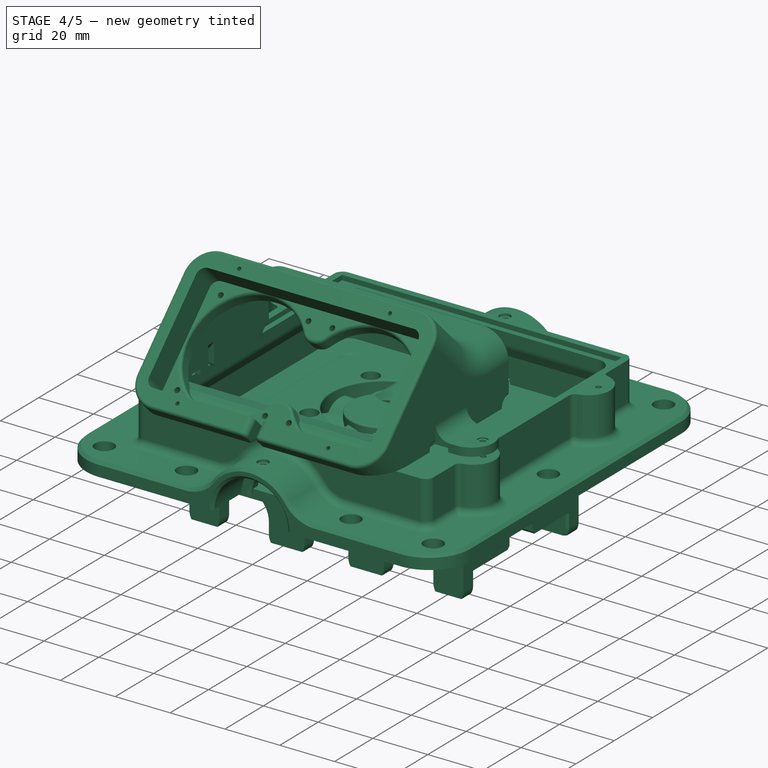
[diagram: stage 4 of 5 — iso view after this stage's code; geometry added in this stage tinted green]
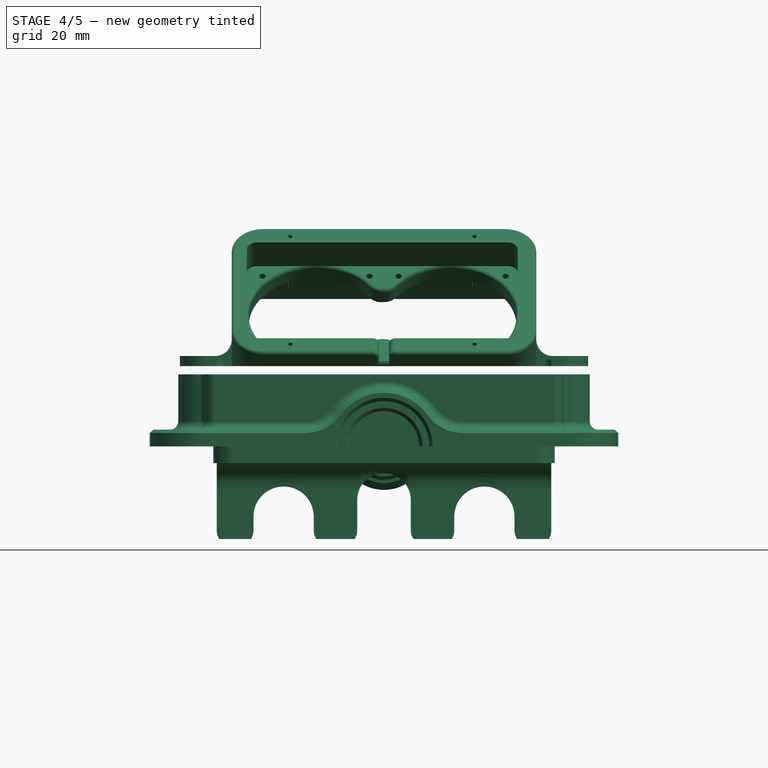
[diagram: stage 4 of 5 — front view after this stage's code; geometry added in this stage tinted green]
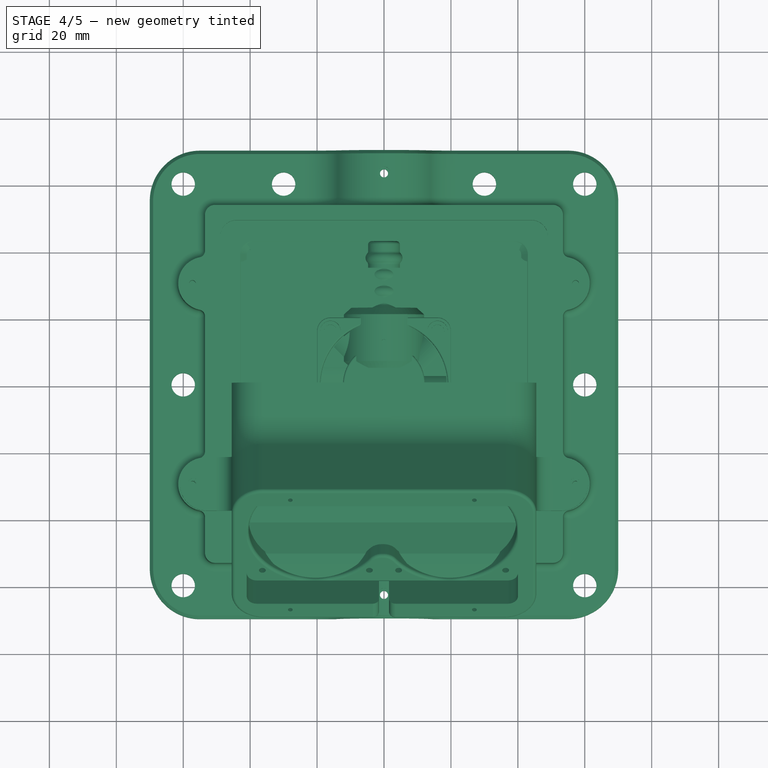
[diagram: stage 4 of 5 — top view after this stage's code; geometry added in this stage tinted green]
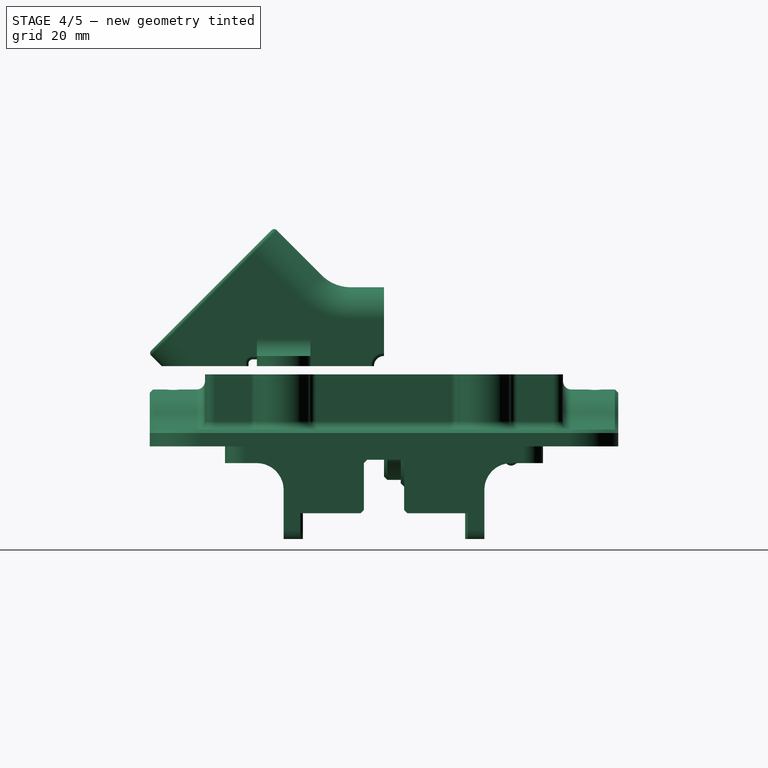
[diagram: stage 4 of 5 — right view after this stage's code; geometry added in this stage tinted green]
FEATURE [PartDesign::Body] Body028  label="Rotor"
  Group = -> [Sketch041,Pad012,Fillet013,DatumPlane002,Sketch042,Pad013,Sketch043,Pocket011,PolarPattern001]
  Origin = -> Origin046
  Tip = -> PolarPattern001
FEATURE [App::Part] Part013  label="Fan"
  Group = -> [Body027,Body028]
  Origin = -> Origin047
  Placement = pos=(19.7,44.5189,39.3733) rot=(1,0,0;5.49779rad)
FEATURE [Sketcher::SketchObject] Sketch044
  FullyConstrained = true
  MapMode = 5
  Support = -> [XY_Plane048]
  sketch-geometry (1):
    g0: Circle CenterX=0 CenterY=0 CenterZ=0 NormalX=0 NormalY=0 NormalZ=1 AngleXU=0 Radius=12.25
  constraints (2):
    c: Coincident(g0,g-1)
    c: Radius(g0) = 12.25
FEATURE [PartDesign::Pad] Pad014
  Direction = (1,1,1)
  Length = 10
  Length2 = 100
  Profile = -> Sketch044
  Type = 0
FEATURE [PartDesign::Fillet] Fillet017
  Base = -> Pad014 [Face3,Face2]
  BaseFeature = -> Pad014
  Radius = 0.5
  SupportTransform = false
FEATURE [Sketcher::SketchObject] Sketch049
  FullyConstrained = true
  MapMode = 5
  Support = -> [XY_Plane049]
  sketch-geometry (4):
    g0: LineSegment StartX=-20 StartY=20 StartZ=0 EndX=20 EndY=20 EndZ=0
    g1: LineSegment StartX=20 StartY=20 StartZ=0 EndX=20 EndY=-20 EndZ=0
    g2: LineSegment StartX=20 StartY=-20 StartZ=0 EndX=-20 EndY=-20 EndZ=0
    g3: LineSegment StartX=-20 StartY=-20 StartZ=0 EndX=-20 EndY=20 EndZ=0
  constraints (12):
    c: Coincident(g0,g1)
    c: Coincident(g1,g2)
    c: Coincident(g2,g3)
    c: Coincident(g3,g0)
    c: Horizontal(g0)
    c: Horizontal(g2)
    c: Vertical(g1)
    c: Vertical(g3)
    c: DistanceX(g0,g0) = 40
    c: DistanceY(g1,g1) = 40
    c: DistanceX(g0,g-1) = 20
    c: DistanceY(g1,g-1) = 20
FEATURE [PartDesign::Pad] Pad016
  Direction = (1,1,1)
  Length = 11
  Length2 = 100
  Profile = -> Sketch049
  Type = 0
FEATURE [Sketcher::SketchObject] Sketch047
  FullyConstrained = true
  MapMode = 5
  Placement = pos=(0,0,11) rot=(0,0,1;0rad)
  Support = -> [Pad016]
  sketch-geometry (1):
    g0: Circle CenterX=0 CenterY=0 CenterZ=0 NormalX=0 NormalY=0 NormalZ=1 AngleXU=0 Radius=19
  constraints (2):
    c: Coincident(g0,g-1)
    c: Radius(g0) = 19
FEATURE [PartDesign::Pocket] Pocket012
  BaseFeature = -> Pad016
  Length = 5
  Length2 = 100
  Profile = -> Sketch047
  Type = 1
FEATURE [Sketcher::SketchObject] Sketch046
  ExternalGeometry = -> [Pocket012]
  FullyConstrained = false
  MapMode = 5
  Placement = pos=(0,0,11) rot=(0,0,1;0rad)
  Support = -> [Pocket012]
  sketch-geometry (8):
    g0: Circle CenterX=16 CenterY=16 CenterZ=0 NormalX=0 NormalY=0 NormalZ=1 AngleXU=0 Radius=1.75
    g1: LineSegment StartX=16 StartY=26.8506 StartZ=0 EndX=16 EndY=-28.9031 EndZ=0
    g2: Circle CenterX=16 CenterY=-16 CenterZ=0 NormalX=0 NormalY=0 NormalZ=1 AngleXU=0 Radius=1.75
    g3: LineSegment StartX=-28.6992 StartY=-16 StartZ=0 EndX=48.6186 EndY=-16 EndZ=0
    g4: LineSegment StartX=-16 StartY=27.4413 StartZ=0 EndX=-16 EndY=-28.3124 EndZ=0
    g5: LineSegment StartX=-29.9463 StartY=16 StartZ=0 EndX=47.3716 EndY=16 EndZ=0
    g6: Circle CenterX=-16 CenterY=16 CenterZ=0 NormalX=0 NormalY=0 NormalZ=1 AngleXU=0 Radius=1.75
    g7: Circle CenterX=-16 CenterY=-16 CenterZ=0 NormalX=0 NormalY=0 NormalZ=1 AngleXU=0 Radius=1.75
  constraints (20):
    c: Vertical(g1)
    c: PointOnObject(g0,g1)
    c: PointOnObject(g2,g1)
    c: Horizontal(g3)
    c: PointOnObject(g2,g3)
    c: Vertical(g4)
    c: Horizontal(g5)
    c: PointOnObject(g0,g5)
    c: Radius(g0) = 1.75
    c: DistanceY(g0,g-4) = 4
    c: DistanceX(g0,g-4) = 4
    c: DistanceY(g-4,g2) = 4
    c: Radius(g2) = 1.75
    c: DistanceX(g-3,g4) = 4
    c: PointOnObject(g6,g4)
    c: PointOnObject(g6,g5)
    c: Radius(g6) = 1.75
    c: Equal(g6,g7) = 1.75
    c: PointOnObject(g7,g4)
    c: PointOnObject(g7,g3)
FEATURE [PartDesign::Hole] Hole003
  BaseFeature = -> Pocket012
  Depth = 25
  DepthType = 0
  Diameter = 3.9
  DrillForDepth = false
  DrillPoint = 1
  DrillPointAngle = 118
  HoleCutCountersinkAngle = 90
  HoleCutCustomValues = false
  HoleCutDepth = 3.9
  HoleCutDiameter = 6.1
  HoleCutType = 1
  ModelActualThread = false
  Profile = -> Sketch046
  Tapered = false
  TaperedAngle = 90
  ThreadAngle = 0
  ThreadClass = 0
  ThreadCutOffInner = 0
  ThreadCutOffOuter = 0
  ThreadDirection = 0
  ThreadFit = 0
  ThreadPitch = 0
  ThreadSize = 10
  ThreadType = 1
  Threaded = false
FEATURE [PartDesign::Fillet] Fillet019
  Base = -> Hole003 [Edge2,Edge1,Edge5,Edge8]
  BaseFeature = -> Hole003
  Radius = 4
  SupportTransform = false
FEATURE [PartDesign::Fillet] Fillet016
  Base = -> Fillet019 [Face14]
  BaseFeature = -> Fillet019
  Radius = 0.5
  SupportTransform = false
FEATURE [PartDesign::Fillet] Fillet018
  Base = -> Fillet016 [Face10,Face7,Face3,Face6]
  BaseFeature = -> Fillet016
  Radius = 0.25
  SupportTransform = false
FEATURE [PartDesign::Body] Body029  label="Rotor001"
  Group = -> [Sketch044,Pad014,Fillet017,DatumPlane003,Sketch048,Pad015,Sketch045,Pocket013,PolarPattern002]
  Origin = -> Origin050
  Tip = -> PolarPattern002
FEATURE [PartDesign::Body] Body030  label="Duct001"
  Group = -> [Sketch049,Pad016,Sketch047,Pocket012,Sketch046,Hole003,Fillet019,Fillet016,Fillet018]
  Origin = -> Origin048
  Tip = -> Fillet018
FEATURE [App::Part] Part014  label="Fan001"
  Group = -> [Body030,Body029]
  Origin = -> Origin049
  Placement = pos=(-20.7,44.1249,39.2591) rot=(-1,0,0;0.785398rad)
FEATURE [Sketcher::SketchObject] Sketch050
  FullyConstrained = true
  MapMode = 5
  Support = -> [XY_Plane051]
  sketch-geometry (1):
    g0: Circle CenterX=0 CenterY=0 CenterZ=0 NormalX=0 NormalY=0 NormalZ=1 AngleXU=0 Radius=12.25
  constraints (2):
    c: Coincident(g0,g-1)
    c: Radius(g0) = 12.25
FEATURE [PartDesign::Pad] Pad017
  Direction = (1,1,1)
  Length = 10
  Length2 = 100
  Profile = -> Sketch050
  Type = 0
FEATURE [PartDesign::Fillet] Fillet021
  Base = -> Pad017 [Face3,Face2]
  BaseFeature = -> Pad017
  Radius = 0.5
  SupportTransform = false
FEATURE [Sketcher::SketchObject] Sketch055
  FullyConstrained = true
  MapMode = 5
  Support = -> [XY_Plane052]
  sketch-geometry (4):
    g0: LineSegment StartX=-20 StartY=20 StartZ=0 EndX=20 EndY=20 EndZ=0
    g1: LineSegment StartX=20 StartY=20 StartZ=0 EndX=20 EndY=-20 EndZ=0
    g2: LineSegment StartX=20 StartY=-20 StartZ=0 EndX=-20 EndY=-20 EndZ=0
    g3: LineSegment StartX=-20 StartY=-20 StartZ=0 EndX=-20 EndY=20 EndZ=0
  constraints (12):
    c: Coincident(g0,g1)
    c: Coincident(g1,g2)
    c: Coincident(g2,g3)
    c: Coincident(g3,g0)
    c: Horizontal(g0)
    c: Horizontal(g2)
    c: Vertical(g1)
    c: Vertical(g3)
    c: DistanceX(g0,g0) = 40
    c: DistanceY(g1,g1) = 40
    c: DistanceX(g0,g-1) = 20
    c: DistanceY(g1,g-1) = 20
FEATURE [PartDesign::Pad] Pad019
  Direction = (1,1,1)
  Length = 11
  Length2 = 100
  Profile = -> Sketch055
  Type = 0
FEATURE [Sketcher::SketchObject] Sketch053
  FullyConstrained = true
  MapMode = 5
  Placement = pos=(0,0,11) rot=(0,0,1;0rad)
  Support = -> [Pad019]
  sketch-geometry (1):
    g0: Circle CenterX=0 CenterY=0 CenterZ=0 NormalX=0 NormalY=0 NormalZ=1 AngleXU=0 Radius=19
  constraints (2):
    c: Coincident(g0,g-1)
    c: Radius(g0) = 19
FEATURE [PartDesign::Pocket] Pocket014
  BaseFeature = -> Pad019
  Length = 5
  Length2 = 100
  Profile = -> Sketch053
  Type = 1
FEATURE [Sketcher::SketchObject] Sketch052
  ExternalGeometry = -> [Pocket014]
  FullyConstrained = false
  MapMode = 5
  Placement = pos=(0,0,11) rot=(0,0,1;0rad)
  Support = -> [Pocket014]
  sketch-geometry (8):
    g0: Circle CenterX=16 CenterY=16 CenterZ=0 NormalX=0 NormalY=0 NormalZ=1 AngleXU=0 Radius=1.75
    g1: LineSegment StartX=16 StartY=26.8506 StartZ=0 EndX=16 EndY=-28.9031 EndZ=0
    g2: Circle CenterX=16 CenterY=-16 CenterZ=0 NormalX=0 NormalY=0 NormalZ=1 AngleXU=0 Radius=1.75
    g3: LineSegment StartX=-28.6992 StartY=-16 StartZ=0 EndX=48.6186 EndY=-16 EndZ=0
    g4: LineSegment StartX=-16 StartY=27.4413 StartZ=0 EndX=-16 EndY=-28.3124 EndZ=0
    g5: LineSegment StartX=-29.9463 StartY=16 StartZ=0 EndX=47.3716 EndY=16 EndZ=0
    g6: Circle CenterX=-16 CenterY=16 CenterZ=0 NormalX=0 NormalY=0 NormalZ=1 AngleXU=0 Radius=1.75
    g7: Circle CenterX=-16 CenterY=-16 CenterZ=0 NormalX=0 NormalY=0 NormalZ=1 AngleXU=0 Radius=1.75
  constraints (20):
    c: Vertical(g1)
    c: PointOnObject(g0,g1)
    c: PointOnObject(g2,g1)
    c: Horizontal(g3)
    c: PointOnObject(g2,g3)
    c: Vertical(g4)
    c: Horizontal(g5)
    c: PointOnObject(g0,g5)
    c: Radius(g0) = 1.75
    c: DistanceY(g0,g-4) = 4
    c: DistanceX(g0,g-4) = 4
    c: DistanceY(g-4,g2) = 4
    c: Radius(g2) = 1.75
    c: DistanceX(g-3,g4) = 4
    c: PointOnObject(g6,g4)
    c: PointOnObject(g6,g5)
    c: Radius(g6) = 1.75
    c: Equal(g6,g7) = 1.75
    c: PointOnObject(g7,g4)
    c: PointOnObject(g7,g3)
FEATURE [PartDesign::Hole] Hole004
  BaseFeature = -> Pocket014
  Depth = 25
  DepthType = 0
  Diameter = 3.9
  DrillForDepth = false
  DrillPoint = 1
  DrillPointAngle = 118
  HoleCutCountersinkAngle = 90
  HoleCutCustomValues = false
  HoleCutDepth = 3.9
  HoleCutDiameter = 6.1
  HoleCutType = 1
  ModelActualThread = false
  Profile = -> Sketch052
  Tapered = false
  TaperedAngle = 90
  ThreadAngle = 0
  ThreadClass = 0
  ThreadCutOffInner = 0
  ThreadCutOffOuter = 0
  ThreadDirection = 0
  ThreadFit = 0
  ThreadPitch = 0
  ThreadSize = 10
  ThreadType = 1
  Threaded = false
FEATURE [PartDesign::Fillet] Fillet023
  Base = -> Hole004 [Edge2,Edge1,Edge5,Edge8]
  BaseFeature = -> Hole004
  Radius = 4
  SupportTransform = false
FEATURE [PartDesign::Fillet] Fillet020
  Base = -> Fillet023 [Face14]
  BaseFeature = -> Fillet023
  Radius = 0.5
  SupportTransform = false
FEATURE [PartDesign::Fillet] Fillet022
  Base = -> Fillet020 [Face10,Face7,Face3,Face6]
  BaseFeature = -> Fillet020
  Radius = 0.25
  SupportTransform = false
FEATURE [PartDesign::Plane] DatumPlane004
  AttachmentOffset = pos=(0,-2,-13) rot=(0,0,1;0rad)
  Length = 60
  MapMode = 2
  Placement = pos=(0,13,-2) rot=(1,0,0;1.5708rad)
  ResizeMode = 0
  Support = -> [XZ_Plane053]
  Width = 60
FEATURE [Sketcher::SketchObject] Sketch054
  FullyConstrained = true
  MapMode = 5
  Placement = pos=(0,13,-2) rot=(1,0,0;1.5708rad)
  Support = -> [DatumPlane004]
  sketch-geometry (2):
    g0: ArcOfCircle CenterX=4.54824 CenterY=0.0282968 CenterZ=0 NormalX=0 NormalY=0 NormalZ=1 AngleXU=0 Radius=10 StartAngle=1.49555 EndAngle=2.83986
    g1: ArcOfCircle CenterX=6.56442 CenterY=-2.93836 CenterZ=0 NormalX=0 NormalY=0 NormalZ=1 AngleXU=0 Radius=13 StartAngle=1.66821 EndAngle=2.6672
  constraints (8):
    c: Coincident(g1,g0)
    c: Coincident(g1,g0)
    c: DistanceX(g-1,g0) = 5.3
    c: DistanceY(g-1,g0) = 10
    c: DistanceX(g0,g-1) = 5
    c: DistanceY(g-1,g0) = 3
    c: Radius(g1) = 13
    c: Radius(g0) = 10
FEATURE [PartDesign::Pad] Pad018
  BaseFeature = -> Fillet021
  Direction = (1,1,1)
  Length = 15
  Length2 = 100
  Midplane = true
  Profile = -> Sketch054
  Type = 0
FEATURE [Sketcher::SketchObject] Sketch051
  FullyConstrained = true
  MapMode = 5
  Placement = pos=(0,0,10) rot=(0,0,1;0rad)
  Support = -> [Pad018]
  sketch-geometry (2):
    g0: Circle CenterX=0 CenterY=0 CenterZ=0 NormalX=0 NormalY=0 NormalZ=1 AngleXU=0 Radius=18.75
    g1: Circle CenterX=0 CenterY=0 CenterZ=0 NormalX=0 NormalY=0 NormalZ=1 AngleXU=0 Radius=32.89
  constraints (4):
    c: Coincident(g0,g-1)
    c: Coincident(g1,g0)
    c: Radius(g0) = 18.75
    c: Radius(g1) = 32.89
FEATURE [PartDesign::Pocket] Pocket015
  BaseFeature = -> Pad018
  Length = 5
  Length2 = 100
  Profile = -> Sketch051
  Type = 1
FEATURE [PartDesign::PolarPattern] PolarPattern003
  Angle = 360
  Axis = -> Z_Axis051
  BaseFeature = -> Pocket015
  Occurrences = 8
  Originals = -> [Pad018,Pocket015]
FEATURE [PartDesign::Body] Body031  label="Rotor002"
  Group = -> [Sketch050,Pad017,Fillet021,DatumPlane004,Sketch054,Pad018,Sketch051,Pocket015,PolarPattern003]
  Origin = -> Origin053
  Tip = -> PolarPattern003
FEATURE [PartDesign::Body] Body032  label="Duct002"
  Group = -> [Sketch055,Pad019,Sketch053,Pocket014,Sketch052,Hole004,Fillet023,Fillet020,Fillet022]
  Origin = -> Origin051
  Tip = -> Fillet022
FEATURE [App::Part] Part015  label="Fan002"
  Group = -> [Body032,Body031]
  Origin = -> Origin052
  Placement = pos=(20.2,-44.0653,39.0197) rot=(1,0,0;0.785398rad)
FEATURE [Sketcher::SketchObject] Sketch058
  FullyConstrained = true
  MapMode = 5
  Support = -> [XY_Plane056]
  sketch-geometry (1):
    g0: Circle CenterX=0 CenterY=0 CenterZ=0 NormalX=0 NormalY=0 NormalZ=1 AngleXU=0 Radius=12.25
  constraints (2):
    c: Coincident(g0,g-1)
    c: Radius(g0) = 12.25
FEATURE [PartDesign::Pad] Pad020
  Direction = (1,1,1)
  Length = 10
  Length2 = 100
  Profile = -> Sketch058
  Type = 0
FEATURE [PartDesign::Plane] DatumPlane005
  AttachmentOffset = pos=(0,-2,-13) rot=(0,0,1;0rad)
  Length = 60
  MapMode = 2
  Placement = pos=(0,13,-2) rot=(1,0,0;1.5708rad)
  ResizeMode = 0
  Support = -> [XZ_Plane055]
  Width = 60
FEATURE [Sketcher::SketchObject] Sketch060
  FullyConstrained = true
  MapMode = 5
  Support = -> [XY_Plane054]
  sketch-geometry (4):
    g0: LineSegment StartX=-20 StartY=20 StartZ=0 EndX=20 EndY=20 EndZ=0
    g1: LineSegment StartX=20 StartY=20 StartZ=0 EndX=20 EndY=-20 EndZ=0
    g2: LineSegment StartX=20 StartY=-20 StartZ=0 EndX=-20 EndY=-20 EndZ=0
    g3: LineSegment StartX=-20 StartY=-20 StartZ=0 EndX=-20 EndY=20 EndZ=0
  constraints (12):
    c: Coincident(g0,g1)
    c: Coincident(g1,g2)
    c: Coincident(g2,g3)
    c: Coincident(g3,g0)
    c: Horizontal(g0)
    c: Horizontal(g2)
    c: Vertical(g1)
    c: Vertical(g3)
    c: DistanceX(g0,g0) = 40
    c: DistanceY(g1,g1) = 40
    c: DistanceX(g0,g-1) = 20
    c: DistanceY(g1,g-1) = 20
FEATURE [PartDesign::Fillet] Fillet027
  Base = -> Pad020 [Face3,Face2]
  BaseFeature = -> Pad020
  Radius = 0.5
  SupportTransform = false
FEATURE [Sketcher::SketchObject] Sketch061
  FullyConstrained = true
  MapMode = 5
  Placement = pos=(0,13,-2) rot=(1,0,0;1.5708rad)
  Support = -> [DatumPlane005]
  sketch-geometry (2):
    g0: ArcOfCircle CenterX=4.54824 CenterY=0.0282968 CenterZ=0 NormalX=0 NormalY=0 NormalZ=1 AngleXU=0 Radius=10 StartAngle=1.49555 EndAngle=2.83986
    g1: ArcOfCircle CenterX=6.56442 CenterY=-2.93836 CenterZ=0 NormalX=0 NormalY=0 NormalZ=1 AngleXU=0 Radius=13 StartAngle=1.66821 EndAngle=2.6672
  constraints (8):
    c: Coincident(g1,g0)
    c: Coincident(g1,g0)
    c: DistanceX(g-1,g0) = 5.3
    c: DistanceY(g-1,g0) = 10
    c: DistanceX(g0,g-1) = 5
    c: DistanceY(g-1,g0) = 3
    c: Radius(g1) = 13
    c: Radius(g0) = 10
FEATURE [PartDesign::Pad] Pad021
  BaseFeature = -> Fillet027
  Direction = (1,1,1)
  Length = 15
  Length2 = 100
  Midplane = true
  Profile = -> Sketch061
  Type = 0
FEATURE [Sketcher::SketchObject] Sketch056
  FullyConstrained = true
  MapMode = 5
  Placement = pos=(0,0,10) rot=(0,0,1;0rad)
  Support = -> [Pad021]
  sketch-geometry (2):
    g0: Circle CenterX=0 CenterY=0 CenterZ=0 NormalX=0 NormalY=0 NormalZ=1 AngleXU=0 Radius=18.75
    g1: Circle CenterX=0 CenterY=0 CenterZ=0 NormalX=0 NormalY=0 NormalZ=1 AngleXU=0 Radius=32.89
  constraints (4):
    c: Coincident(g0,g-1)
    c: Coincident(g1,g0)
    c: Radius(g0) = 18.75
    c: Radius(g1) = 32.89
FEATURE [PartDesign::Pocket] Pocket016
  BaseFeature = -> Pad021
  Length = 5
  Length2 = 100
  Profile = -> Sketch056
  Type = 1
FEATURE [PartDesign::PolarPattern] PolarPattern004
  Angle = 360
  Axis = -> Z_Axis054
  BaseFeature = -> Pocket016
  Occurrences = 8
  Originals = -> [Pad021,Pocket016]
FEATURE [PartDesign::Pad] Pad022
  Direction = (1,1,1)
  Length = 11
  Length2 = 100
  Profile = -> Sketch060
  Type = 0
FEATURE [Sketcher::SketchObject] Sketch059
  FullyConstrained = true
  MapMode = 5
  Placement = pos=(0,0,11) rot=(0,0,1;0rad)
  Support = -> [Pad022]
  sketch-geometry (1):
    g0: Circle CenterX=0 CenterY=0 CenterZ=0 NormalX=0 NormalY=0 NormalZ=1 AngleXU=0 Radius=19
  constraints (2):
    c: Coincident(g0,g-1)
    c: Radius(g0) = 19
FEATURE [PartDesign::Pocket] Pocket017
  BaseFeature = -> Pad022
  Length = 5
  Length2 = 100
  Profile = -> Sketch059
  Type = 1
FEATURE [Sketcher::SketchObject] Sketch057
  ExternalGeometry = -> [Pocket017]
  FullyConstrained = false
  MapMode = 5
  Placement = pos=(0,0,11) rot=(0,0,1;0rad)
  Support = -> [Pocket017]
  sketch-geometry (8):
    g0: Circle CenterX=16 CenterY=16 CenterZ=0 NormalX=0 NormalY=0 NormalZ=1 AngleXU=0 Radius=1.75
    g1: LineSegment StartX=16 StartY=26.8506 StartZ=0 EndX=16 EndY=-28.9031 EndZ=0
    g2: Circle CenterX=16 CenterY=-16 CenterZ=0 NormalX=0 NormalY=0 NormalZ=1 AngleXU=0 Radius=1.75
    g3: LineSegment StartX=-28.6992 StartY=-16 StartZ=0 EndX=48.6186 EndY=-16 EndZ=0
    g4: LineSegment StartX=-16 StartY=27.4413 StartZ=0 EndX=-16 EndY=-28.3124 EndZ=0
    g5: LineSegment StartX=-29.9463 StartY=16 StartZ=0 EndX=47.3716 EndY=16 EndZ=0
    g6: Circle CenterX=-16 CenterY=16 CenterZ=0 NormalX=0 NormalY=0 NormalZ=1 AngleXU=0 Radius=1.75
    g7: Circle CenterX=-16 CenterY=-16 CenterZ=0 NormalX=0 NormalY=0 NormalZ=1 AngleXU=0 Radius=1.75
  constraints (20):
    c: Vertical(g1)
    c: PointOnObject(g0,g1)
    c: PointOnObject(g2,g1)
    c: Horizontal(g3)
    c: PointOnObject(g2,g3)
    c: Vertical(g4)
    c: Horizontal(g5)
    c: PointOnObject(g0,g5)
    c: Radius(g0) = 1.75
    c: DistanceY(g0,g-4) = 4
    c: DistanceX(g0,g-4) = 4
    c: DistanceY(g-4,g2) = 4
    c: Radius(g2) = 1.75
    c: DistanceX(g-3,g4) = 4
    c: PointOnObject(g6,g4)
    c: PointOnObject(g6,g5)
    c: Radius(g6) = 1.75
    c: Equal(g6,g7) = 1.75
    c: PointOnObject(g7,g4)
    c: PointOnObject(g7,g3)
FEATURE [PartDesign::Hole] Hole005
  BaseFeature = -> Pocket017
  Depth = 25
  DepthType = 0
  Diameter = 3.9
  DrillForDepth = false
  DrillPoint = 1
  DrillPointAngle = 118
  HoleCutCountersinkAngle = 90
  HoleCutCustomValues = false
  HoleCutDepth = 3.9
  HoleCutDiameter = 6.1
  HoleCutType = 1
  ModelActualThread = false
  Profile = -> Sketch057
  Tapered = false
  TaperedAngle = 90
  ThreadAngle = 0
  ThreadClass = 0
  ThreadCutOffInner = 0
  ThreadCutOffOuter = 0
  ThreadDirection = 0
  ThreadFit = 0
  ThreadPitch = 0
  ThreadSize = 10
  ThreadType = 1
  Threaded = false
FEATURE [PartDesign::Fillet] Fillet024
  Base = -> Hole005 [Edge2,Edge1,Edge5,Edge8]
  BaseFeature = -> Hole005
  Radius = 4
  SupportTransform = false
FEATURE [PartDesign::Fillet] Fillet026
  Base = -> Fillet024 [Face14]
  BaseFeature = -> Fillet024
  Radius = 0.5
  SupportTransform = false
FEATURE [PartDesign::Fillet] Fillet025
  Base = -> Fillet026 [Face10,Face7,Face3,Face6]
  BaseFeature = -> Fillet026
  Radius = 0.25
  SupportTransform = false
FEATURE [PartDesign::Body] Body033  label="Duct003"
  Group = -> [Sketch060,Pad022,Sketch059,Pocket017,Sketch057,Hole005,Fillet024,Fillet026,Fillet025]
  Origin = -> Origin054
  Tip = -> Fillet025
FEATURE [PartDesign::Body] Body034  label="Rotor003"
  Group = -> [Sketch058,Pad020,Fillet027,DatumPlane005,Sketch061,Pad021,Sketch056,Pocket016,PolarPattern004]
  Origin = -> Origin055
  Tip = -> PolarPattern004
FEATURE [App::Part] Part016  label="Fan003"
  Group = -> [Body033,Body034]
  Origin = -> Origin056
  Placement = pos=(-20.3,-43.8532,38.949) rot=(1,0,0;0.785398rad)
FEATURE [App::Part] Part017  label="UpperFans"
  Group = -> [Part013,Part014,Part015,Part016]
  Origin = -> Origin057
FEATURE [Sketcher::SketchObject] Sketch064
  FullyConstrained = true
  MapMode = 5
  Support = -> [XY_Plane058]
  sketch-geometry (1):
    g0: Circle CenterX=0 CenterY=0 CenterZ=0 NormalX=0 NormalY=0 NormalZ=1 AngleXU=0 Radius=12.25
  constraints (2):
    c: Coincident(g0,g-1)
    c: Radius(g0) = 12.25
FEATURE [PartDesign::Pad] Pad026
  Direction = (1,1,1)
  Length = 10
  Length2 = 100
  Profile = -> Sketch064
  Type = 0
FEATURE [Sketcher::SketchObject] Sketch066
  FullyConstrained = true
  MapMode = 5
  Placement = pos=(0,0,11) rot=(0,0,1;0rad)
  Support = -> [Pad025]
  sketch-geometry (1):
    g0: Circle CenterX=0 CenterY=0 CenterZ=0 NormalX=0 NormalY=0 NormalZ=1 AngleXU=0 Radius=19
  constraints (2):
    c: Coincident(g0,g-1)
    c: Radius(g0) = 19
FEATURE [Sketcher::SketchObject] Sketch069
  FullyConstrained = true
  MapMode = 5
  Support = -> [XY_Plane067]
  sketch-geometry (1):
    g0: Circle CenterX=0 CenterY=0 CenterZ=0 NormalX=0 NormalY=0 NormalZ=1 AngleXU=0 Radius=12.25
  constraints (2):
    c: Coincident(g0,g-1)
    c: Radius(g0) = 12.25
FEATURE [PartDesign::Fillet] Fillet029
  Base = -> Pad026 [Face3,Face2]
  BaseFeature = -> Pad026
  Radius = 0.5
  SupportTransform = false
FEATURE [PartDesign::Plane] DatumPlane006
  AttachmentOffset = pos=(0,-2,-13) rot=(0,0,1;0rad)
  Length = 60
  MapMode = 2
  Placement = pos=(0,13,-2) rot=(1,0,0;1.5708rad)
  ResizeMode = 0
  Support = -> [XZ_Plane067]
  Width = 60
FEATURE [Sketcher::SketchObject] Sketch078
  FullyConstrained = true
  MapMode = 5
  Placement = pos=(0,13,-2) rot=(1,0,0;1.5708rad)
  Support = -> [DatumPlane006]
  sketch-geometry (2):
    g0: ArcOfCircle CenterX=4.54824 CenterY=0.0282968 CenterZ=0 NormalX=0 NormalY=0 NormalZ=1 AngleXU=0 Radius=10 StartAngle=1.49555 EndAngle=2.83986
    g1: ArcOfCircle CenterX=6.56442 CenterY=-2.93836 CenterZ=0 NormalX=0 NormalY=0 NormalZ=1 AngleXU=0 Radius=13 StartAngle=1.66821 EndAngle=2.6672
  constraints (8):
    c: Coincident(g1,g0)
    c: Coincident(g1,g0)
    c: DistanceX(g-1,g0) = 5.3
    c: DistanceY(g-1,g0) = 10
    c: DistanceX(g0,g-1) = 5
    c: DistanceY(g-1,g0) = 3
    c: Radius(g1) = 13
    c: Radius(g0) = 10
FEATURE [PartDesign::Pad] Pad028
  BaseFeature = -> Fillet029
  Direction = (1,1,1)
  Length = 15
  Length2 = 100
  Midplane = true
  Profile = -> Sketch078
  Type = 0
FEATURE [Sketcher::SketchObject] Sketch070
  FullyConstrained = true
  MapMode = 5
  Placement = pos=(0,0,10) rot=(0,0,1;0rad)
  Support = -> [Pad028]
  sketch-geometry (2):
    g0: Circle CenterX=0 CenterY=0 CenterZ=0 NormalX=0 NormalY=0 NormalZ=1 AngleXU=0 Radius=18.75
    g1: Circle CenterX=0 CenterY=0 CenterZ=0 NormalX=0 NormalY=0 NormalZ=1 AngleXU=0 Radius=32.89
  constraints (4):
    c: Coincident(g0,g-1)
    c: Coincident(g1,g0)
    c: Radius(g0) = 18.75
    c: Radius(g1) = 32.89
FEATURE [PartDesign::Pocket] Pocket019
  BaseFeature = -> Pad028
  Length = 5
  Length2 = 100
  Profile = -> Sketch070
  Type = 1
FEATURE [PartDesign::PolarPattern] PolarPattern007
  Angle = 360
  Axis = -> Z_Axis059
  BaseFeature = -> Pocket019
  Occurrences = 8
  Originals = -> [Pad028,Pocket019]
FEATURE [PartDesign::Fillet] Fillet031
  Base = -> Pad033 [Face3,Face2]
  BaseFeature = -> Pad033
  Radius = 0.5
  SupportTransform = false
FEATURE [PartDesign::Plane] DatumPlane008
  AttachmentOffset = pos=(0,-2,-13) rot=(0,0,1;0rad)
  Length = 60
  MapMode = 2
  Placement = pos=(0,13,-2) rot=(1,0,0;1.5708rad)
  ResizeMode = 0
  Support = -> [XZ_Plane061]
  Width = 60
FEATURE [Sketcher::SketchObject] Sketch065
  FullyConstrained = true
  MapMode = 5
  Placement = pos=(0,13,-2) rot=(1,0,0;1.5708rad)
  Support = -> [DatumPlane008]
  sketch-geometry (2):
    g0: ArcOfCircle CenterX=4.54824 CenterY=0.0282968 CenterZ=0 NormalX=0 NormalY=0 NormalZ=1 AngleXU=0 Radius=10 StartAngle=1.49555 EndAngle=2.83986
    g1: ArcOfCircle CenterX=6.56442 CenterY=-2.93836 CenterZ=0 NormalX=0 NormalY=0 NormalZ=1 AngleXU=0 Radius=13 StartAngle=1.66821 EndAngle=2.6672
  constraints (8):
    c: Coincident(g1,g0)
    c: Coincident(g1,g0)
    c: DistanceX(g-1,g0) = 5.3
    c: DistanceY(g-1,g0) = 10
    c: DistanceX(g0,g-1) = 5
    c: DistanceY(g-1,g0) = 3
    c: Radius(g1) = 13
    c: Radius(g0) = 10
FEATURE [PartDesign::Pad] Pad031
  BaseFeature = -> Fillet042
  Direction = (1,1,1)
  Length = 15
  Length2 = 100
  Midplane = true
  Profile = -> Sketch065
  Type = 0
FEATURE [Sketcher::SketchObject] Sketch077
  FullyConstrained = true
  MapMode = 5
  Placement = pos=(0,0,10) rot=(0,0,1;0rad)
  Support = -> [Pad031]
  sketch-geometry (2):
    g0: Circle CenterX=0 CenterY=0 CenterZ=0 NormalX=0 NormalY=0 NormalZ=1 AngleXU=0 Radius=18.75
    g1: Circle CenterX=0 CenterY=0 CenterZ=0 NormalX=0 NormalY=0 NormalZ=1 AngleXU=0 Radius=32.89
  constraints (4):
    c: Coincident(g0,g-1)
    c: Coincident(g1,g0)
    c: Radius(g0) = 18.75
    c: Radius(g1) = 32.89
FEATURE [PartDesign::Pocket] Pocket021
  BaseFeature = -> Pad031
  Length = 5
  Length2 = 100
  Profile = -> Sketch077
  Type = 1
FEATURE [PartDesign::PolarPattern] PolarPattern005
  Angle = 360
  Axis = -> Z_Axis063
  BaseFeature = -> Pocket021
  Occurrences = 8
  Originals = -> [Pad031,Pocket021]
FEATURE [Sketcher::SketchObject] Sketch073
  FullyConstrained = true
  MapMode = 5
  Placement = pos=(0,0,11) rot=(0,0,1;0rad)
  Support = -> [Pad034]
  sketch-geometry (1):
    g0: Circle CenterX=0 CenterY=0 CenterZ=0 NormalX=0 NormalY=0 NormalZ=1 AngleXU=0 Radius=19
  constraints (2):
    c: Coincident(g0,g-1)
    c: Radius(g0) = 19
FEATURE [PartDesign::Pocket] Pocket023
  BaseFeature = -> Pad034
  Length = 5
  Length2 = 100
  Profile = -> Sketch073
  Type = 1
FEATURE [Sketcher::SketchObject] Sketch068
  ExternalGeometry = -> [Pocket023]
  FullyConstrained = false
  MapMode = 5
  Placement = pos=(0,0,11) rot=(0,0,1;0rad)
  Support = -> [Pocket023]
  sketch-geometry (8):
    g0: Circle CenterX=16 CenterY=16 CenterZ=0 NormalX=0 NormalY=0 NormalZ=1 AngleXU=0 Radius=1.75
    g1: LineSegment StartX=16 StartY=26.8506 StartZ=0 EndX=16 EndY=-28.9031 EndZ=0
    g2: Circle CenterX=16 CenterY=-16 CenterZ=0 NormalX=0 NormalY=0 NormalZ=1 AngleXU=0 Radius=1.75
    g3: LineSegment StartX=-28.6992 StartY=-16 StartZ=0 EndX=48.6186 EndY=-16 EndZ=0
    g4: LineSegment StartX=-16 StartY=27.4413 StartZ=0 EndX=-16 EndY=-28.3124 EndZ=0
    g5: LineSegment StartX=-29.9463 StartY=16 StartZ=0 EndX=47.3716 EndY=16 EndZ=0
    g6: Circle CenterX=-16 CenterY=16 CenterZ=0 NormalX=0 NormalY=0 NormalZ=1 AngleXU=0 Radius=1.75
    g7: Circle CenterX=-16 CenterY=-16 CenterZ=0 NormalX=0 NormalY=0 NormalZ=1 AngleXU=0 Radius=1.75
  constraints (20):
    c: Vertical(g1)
    c: PointOnObject(g0,g1)
    c: PointOnObject(g2,g1)
    c: Horizontal(g3)
    c: PointOnObject(g2,g3)
    c: Vertical(g4)
    c: Horizontal(g5)
    c: PointOnObject(g0,g5)
    c: Radius(g0) = 1.75
    c: DistanceY(g0,g-4) = 4
    c: DistanceX(g0,g-4) = 4
    c: DistanceY(g-4,g2) = 4
    c: Radius(g2) = 1.75
    c: DistanceX(g-3,g4) = 4
    c: PointOnObject(g6,g4)
    c: PointOnObject(g6,g5)
    c: Radius(g6) = 1.75
    c: Equal(g6,g7) = 1.75
    c: PointOnObject(g7,g4)
    c: PointOnObject(g7,g3)
FEATURE [PartDesign::Hole] Hole007
  BaseFeature = -> Pocket023
  Depth = 25
  DepthType = 0
  Diameter = 3.9
  DrillForDepth = false
  DrillPoint = 1
  DrillPointAngle = 118
  HoleCutCountersinkAngle = 90
  HoleCutCustomValues = false
  HoleCutDepth = 3.9
  HoleCutDiameter = 6.1
  HoleCutType = 1
  ModelActualThread = false
  Profile = -> Sketch068
  Tapered = false
  TaperedAngle = 90
  ThreadAngle = 0
  ThreadClass = 0
  ThreadCutOffInner = 0
  ThreadCutOffOuter = 0
  ThreadDirection = 0
  ThreadFit = 0
  ThreadPitch = 0
  ThreadSize = 10
  ThreadType = 1
  Threaded = false
FEATURE [PartDesign::Fillet] Fillet034
  Base = -> Hole007 [Edge2,Edge1,Edge5,Edge8]
  BaseFeature = -> Hole007
  Radius = 4
  SupportTransform = false
FEATURE [PartDesign::Fillet] Fillet038
  Base = -> Fillet034 [Face14]
  BaseFeature = -> Fillet034
  Radius = 0.5
  SupportTransform = false
FEATURE [PartDesign::Fillet] Fillet035
  Base = -> Fillet038 [Face10,Face7,Face3,Face6]
  BaseFeature = -> Fillet038
  Radius = 0.25
  SupportTransform = false
FEATURE [PartDesign::Plane] DatumPlane009
  AttachmentOffset = pos=(0,-2,-13) rot=(0,0,1;0rad)
  Length = 60
  MapMode = 2
  Placement = pos=(0,13,-2) rot=(1,0,0;1.5708rad)
  ResizeMode = 0
  Support = -> [XZ_Plane065]
  Width = 60
FEATURE [Sketcher::SketchObject] Sketch062
  FullyConstrained = true
  MapMode = 5
  Placement = pos=(0,13,-2) rot=(1,0,0;1.5708rad)
  Support = -> [DatumPlane009]
  sketch-geometry (2):
    g0: ArcOfCircle CenterX=4.54824 CenterY=0.0282968 CenterZ=0 NormalX=0 NormalY=0 NormalZ=1 AngleXU=0 Radius=10 StartAngle=1.49555 EndAngle=2.83986
    g1: ArcOfCircle CenterX=6.56442 CenterY=-2.93836 CenterZ=0 NormalX=0 NormalY=0 NormalZ=1 AngleXU=0 Radius=13 StartAngle=1.66821 EndAngle=2.6672
  constraints (8):
    c: Coincident(g1,g0)
    c: Coincident(g1,g0)
    c: DistanceX(g-1,g0) = 5.3
    c: DistanceY(g-1,g0) = 10
    c: DistanceX(g0,g-1) = 5
    c: DistanceY(g-1,g0) = 3
    c: Radius(g1) = 13
    c: Radius(g0) = 10
FEATURE [PartDesign::Pad] Pad023
  BaseFeature = -> Fillet031
  Direction = (1,1,1)
  Length = 15
  Length2 = 100
  Midplane = true
  Profile = -> Sketch062
  Type = 0
FEATURE [Sketcher::SketchObject] Sketch079
  FullyConstrained = true
  MapMode = 5
  Placement = pos=(0,0,10) rot=(0,0,1;0rad)
  Support = -> [Pad023]
  sketch-geometry (2):
    g0: Circle CenterX=0 CenterY=0 CenterZ=0 NormalX=0 NormalY=0 NormalZ=1 AngleXU=0 Radius=18.75
    g1: Circle CenterX=0 CenterY=0 CenterZ=0 NormalX=0 NormalY=0 NormalZ=1 AngleXU=0 Radius=32.89
  constraints (4):
    c: Coincident(g0,g-1)
    c: Coincident(g1,g0)
    c: Radius(g0) = 18.75
    c: Radius(g1) = 32.89
FEATURE [PartDesign::Pocket] Pocket022
  BaseFeature = -> Pad023
  Length = 5
  Length2 = 100
  Profile = -> Sketch079
  Type = 1
FEATURE [PartDesign::PolarPattern] PolarPattern008
  Angle = 360
  Axis = -> Z_Axis058
  BaseFeature = -> Pocket022
  Occurrences = 8
  Originals = -> [Pad023,Pocket022]
FEATURE [PartDesign::Fillet] Fillet039
  Base = -> Fillet037 [Face10,Face7,Face3,Face6]
  BaseFeature = -> Fillet037
  Radius = 0.25
  SupportTransform = false
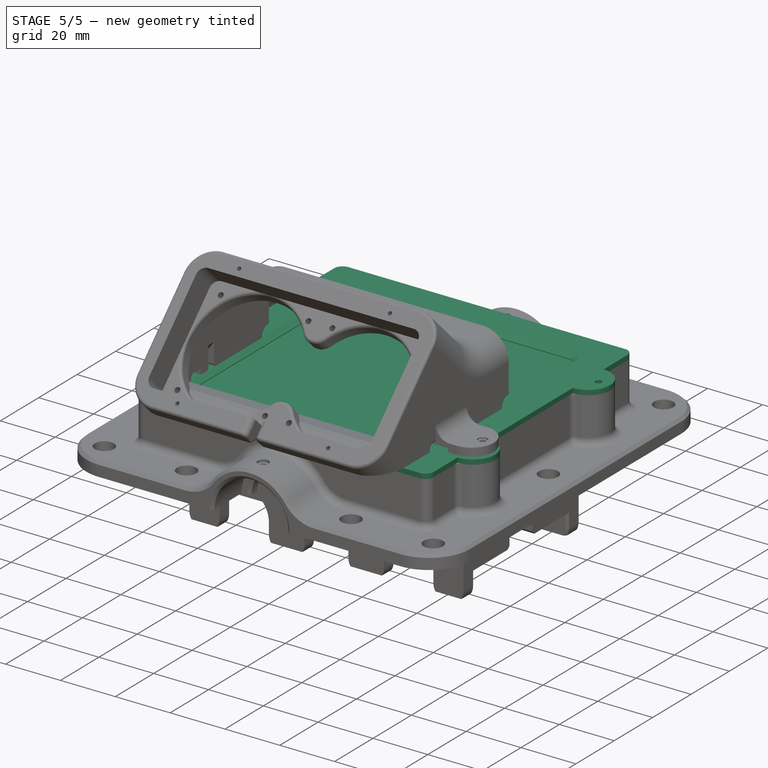
[diagram: stage 5 of 5 — iso view after this stage's code; geometry added in this stage tinted green]
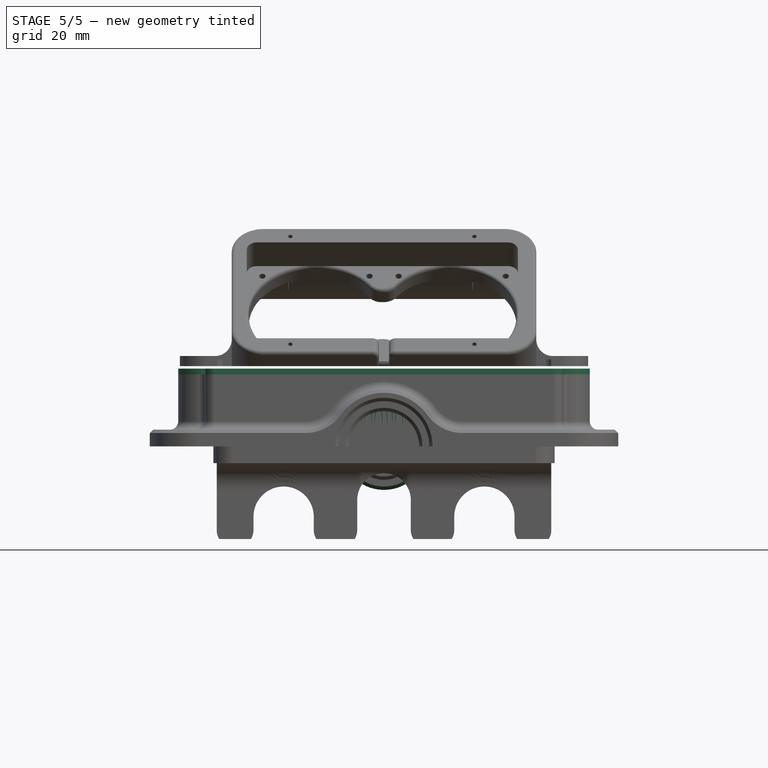
[diagram: stage 5 of 5 — front view after this stage's code; geometry added in this stage tinted green]
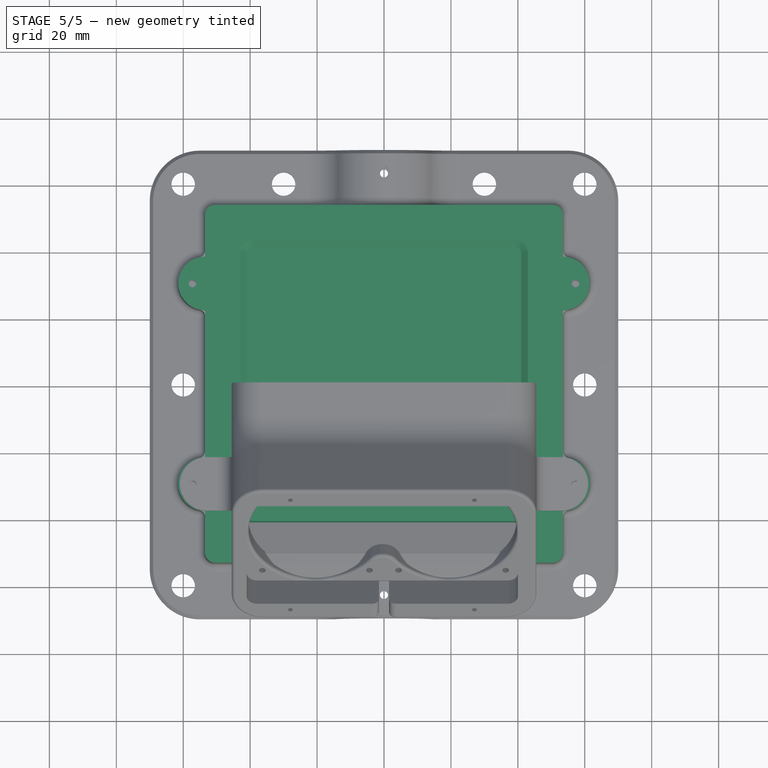
[diagram: stage 5 of 5 — top view after this stage's code; geometry added in this stage tinted green]
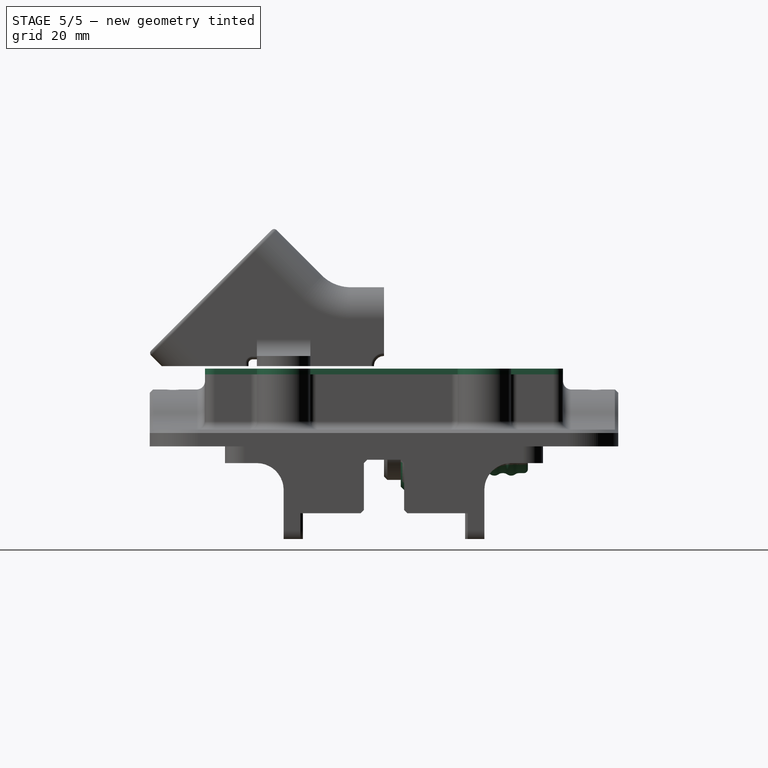
[diagram: stage 5 of 5 — right view after this stage's code; geometry added in this stage tinted green]
FEATURE [Sketcher::SketchObject] Sketch024
  FullyConstrained = true
  MapMode = 5
  Support = -> [XY_Plane002]
  sketch-geometry (4):
    g0: LineSegment StartX=-50 StartY=50 StartZ=0 EndX=50 EndY=50 EndZ=0
    g1: LineSegment StartX=50 StartY=50 StartZ=0 EndX=50 EndY=-50 EndZ=0
    g2: LineSegment StartX=50 StartY=-50 StartZ=0 EndX=-50 EndY=-50 EndZ=0
    g3: LineSegment StartX=-50 StartY=-50 StartZ=0 EndX=-50 EndY=50 EndZ=0
  constraints (12):
    c: Coincident(g0,g1)
    c: Coincident(g1,g2)
    c: Coincident(g2,g3)
    c: Coincident(g3,g0)
    c: Horizontal(g0)
    c: Horizontal(g2)
    c: Vertical(g1)
    c: Vertical(g3)
    c: DistanceX(g0,g0) = 100
    c: DistanceY(g1,g1) = 100
    c: DistanceX(g0,g-1) = 50
    c: DistanceY(g-1,g0) = 50
FEATURE [PartDesign::Pad] Pad004
  Direction = (1,1,1)
  Length = 1.5
  Length2 = 100
  Profile = -> Sketch024
  Type = 0
FEATURE [PartDesign::Body] Body002  label="AluminumSheet"
  Group = -> [Sketch024,Pad004]
  Origin = -> Origin002
  Placement = pos=(0,0,20) rot=(0,0,1;0rad)
  Tip = -> Pad004
FEATURE [PartDesign::FeatureBase] Clone001
  BaseFeature = -> Body002
  Placement = pos=(0,0,20) rot=(0,0,1;0rad)
FEATURE [Sketcher::SketchObject] Sketch027
  FullyConstrained = false
  MapMode = 5
  Support = -> [XY_Plane006]
  sketch-geometry (10):
    g0: LineSegment StartX=5 StartY=43 StartZ=0 EndX=5 EndY=0 EndZ=0
    g1: LineSegment StartX=5 StartY=0 StartZ=0 EndX=10 EndY=0 EndZ=0
    g2: LineSegment StartX=10 StartY=0 StartZ=0 EndX=10 EndY=5 EndZ=0
    g3: LineSegment StartX=13 StartY=5 StartZ=0 EndX=13 EndY=23 EndZ=0
    g4: LineSegment StartX=13 StartY=23 StartZ=0 EndX=8 EndY=23 EndZ=0
    g5: LineSegment StartX=8 StartY=23 StartZ=0 EndX=8 EndY=43 EndZ=0
    g6: LineSegment StartX=8 StartY=43 StartZ=0 EndX=5 EndY=43 EndZ=0
    g7: LineSegment StartX=13.5852 StartY=54.757 StartZ=0 EndX=13.5852 EndY=-12.7815 EndZ=0
    g8: LineSegment StartX=10.3428 StartY=72.3886 StartZ=0 EndX=10.3428 EndY=-17.9019 EndZ=0
    g9: LineSegment StartX=13 StartY=5 StartZ=0 EndX=10 EndY=5 EndZ=0
  constraints (26):
    c: Vertical(g0)
    c: Coincident(g1,g0)
    c: Horizontal(g1)
    c: Coincident(g2,g1)
    c: Vertical(g2)
    c: Vertical(g3)
    c: Horizontal(g4)
    c: Vertical(g5)
    c: Coincident(g6,g5)
    c: Coincident(g6,g0)
    c: Horizontal(g6)
    c: DistanceX(g-1,g5) = 8
    c: DistanceX(g-1,g0) = 5
    c: Coincident(g5,g4)
    c: DistanceY(g5,g5) = 20
    c: DistanceX(g-1,g3) = 13
    c: Vertical(g7)
    c: Vertical(g8)
    c: DistanceX(g-1,g2) = 10
    c: Coincident(g4,g3)
    c: Coincident(g9,g3)
    c: Horizontal(g9)
    c: Coincident(g2,g9)
    c: DistanceY(g1,g2) = 5
    c: DistanceY(g3,g3) = 18
    c: PointOnObject(g0,g-1)
FEATURE [PartDesign::Revolution] Revolution
  Angle = 360
  Axis = (0,1,0)
  Base = (0,0,0)
  Profile = -> Sketch027
  ReferenceAxis = -> Sketch027 [V_Axis]
  Reversed = true
FEATURE [PartDesign::Chamfer] Chamfer001
  Angle = 45
  Base = -> Revolution [Face6]
  BaseFeature = -> Revolution
  ChamferType = 0
  FlipDirection = false
  Size = 1.2
  Size2 = 1
  SupportTransform = false
FEATURE [PartDesign::Chamfer] Chamfer002
  Angle = 45
  Base = -> Chamfer001 [Edge15]
  BaseFeature = -> Chamfer001
  ChamferType = 0
  FlipDirection = false
  Size = 1
  Size2 = 1
  SupportTransform = false
FEATURE [PartDesign::Chamfer] Chamfer003
  Angle = 45
  Base = -> Chamfer002 [Edge3]
  BaseFeature = -> Chamfer002
  ChamferType = 0
  FlipDirection = false
  Size = 2
  Size2 = 1
  SupportTransform = false
FEATURE [PartDesign::Fillet] Fillet010
  Base = -> Chamfer003 [Face8]
  BaseFeature = -> Chamfer003
  Radius = 1.2
  SupportTransform = false
FEATURE [PartDesign::Plane] DatumPlane001
  AttachmentOffset = pos=(0,0,13) rot=(0,0,1;0rad)
  Length = 61.6619
  MapMode = 2
  Placement = pos=(0,0,13) rot=(0,0,1;0rad)
  ResizeMode = 0
  Support = -> [XY_Plane006]
  Width = 79.6619
FEATURE [Sketcher::SketchObject] Sketch030
  FullyConstrained = true
  MapMode = 5
  Placement = pos=(0,0,13) rot=(0,0,1;0rad)
  Support = -> [DatumPlane001]
  sketch-geometry (1):
    g0: Circle CenterX=0 CenterY=12.75 CenterZ=0 NormalX=0 NormalY=0 NormalZ=1 AngleXU=0 Radius=0.75
  constraints (3):
    c: PointOnObject(g0,g-2)
    c: Radius(g0) = 0.75
    c: DistanceY(g-1,g0) = 12.75
FEATURE [PartDesign::Pocket] Pocket007
  BaseFeature = -> Fillet010
  Length = 3
  Length2 = 100
  Profile = -> Sketch030
  Type = 0
FEATURE [PartDesign::PolarPattern] PolarPattern
  Angle = 180
  Axis = -> Y_Axis006
  BaseFeature = -> Pocket007
  Occurrences = 2
  Originals = -> [Pocket007]
FEATURE [Sketcher::SketchObject] Sketch031
  FullyConstrained = false
  MapMode = 5
  Support = -> [XY_Plane006]
  sketch-geometry (4):
    g0: ArcOfCircle CenterX=6.75 CenterY=38 CenterZ=0 NormalX=0 NormalY=0 NormalZ=1 AngleXU=0 Radius=2 StartAngle=5.23599 EndAngle=7.33038
    g1: LineSegment StartX=7.75 StartY=48.9191 StartZ=0 EndX=7.75 EndY=17.5125 EndZ=0
    g2: LineSegment StartX=8.75 StartY=43.3668 StartZ=0 EndX=8.75 EndY=29.5809 EndZ=0
    g3: LineSegment StartX=7.75 StartY=39.7321 StartZ=0 EndX=7.75 EndY=36.2679 EndZ=0
  constraints (11):
    c: Vertical(g1)
    c: PointOnObject(g0,g1)
    c: PointOnObject(g0,g1)
    c: DistanceX(g0,g0) = 1
    c: Radius(g0) = 2
    c: DistanceY(g-1,g0) = 38
    c: Vertical(g2)
    c: Tangent(g2,g0)
    c: DistanceX(g-1,g2) = 8.75
    c: Coincident(g3,g0)
    c: Coincident(g3,g0)
FEATURE [PartDesign::Revolution] Revolution001
  Angle = 360
  Axis = (1e-16,1,-1e-16)
  Base = (0,0,0)
  BaseFeature = -> PolarPattern
  Profile = -> Sketch031
  ReferenceAxis = -> Y_Axis006
  Reversed = true
FEATURE [PartDesign::LinearPattern] LinearPattern
  BaseFeature = -> Revolution001
  Direction = -> Y_Axis006
  Length = 10
  Occurrences = 3
  Originals = -> [Revolution001]
  Reversed = true
FEATURE [PartDesign::Fillet] Fillet011
  Base = -> LinearPattern [Face11,Face5,Face17,Edge3]
  BaseFeature = -> LinearPattern
  Radius = 2
  SupportTransform = false
FEATURE [PartDesign::Body] Body006  label="LargeInlet"
  Group = -> [Sketch027,Revolution,Chamfer001,Chamfer002,Chamfer003,Fillet010,DatumPlane001,Sketch030,Pocket007,PolarPattern,Sketch031,Revolution001,LinearPattern,Fillet011]
  Origin = -> Origin006
  Placement = pos=(0,50.25,0) rot=(0,0,1;0rad)
  Tip = -> Fillet011
FEATURE [App::Part] Part001  label="AluminumSheets"
  Group = -> [Body003,Body002]
  Origin = -> Origin009
FEATURE [Sketcher::SketchObject] Sketch032
  FullyConstrained = true
  MapMode = 5
  Support = -> [XY_Plane012]
  sketch-geometry (4):
    g0: LineSegment StartX=-20 StartY=20 StartZ=0 EndX=20 EndY=20 EndZ=0
    g1: LineSegment StartX=20 StartY=20 StartZ=0 EndX=20 EndY=-20 EndZ=0
    g2: LineSegment StartX=20 StartY=-20 StartZ=0 EndX=-20 EndY=-20 EndZ=0
    g3: LineSegment StartX=-20 StartY=-20 StartZ=0 EndX=-20 EndY=20 EndZ=0
  constraints (12):
    c: Coincident(g0,g1)
    c: Coincident(g1,g2)
    c: Coincident(g2,g3)
    c: Coincident(g3,g0)
    c: Horizontal(g0)
    c: Horizontal(g2)
    c: Vertical(g1)
    c: Vertical(g3)
    c: DistanceX(g0,g0) = 40
    c: DistanceY(g1,g1) = 40
    c: DistanceX(g0,g-1) = 20
    c: DistanceY(g-1,g0) = 20
FEATURE [PartDesign::Pad] Pad007
  Direction = (1,1,1)
  Length = 4
  Length2 = 100
  Profile = -> Sketch032
  Type = 0
FEATURE [PartDesign::Body] Body008  label="Peltier1"
  Group = -> [Sketch032,Pad007]
  Origin = -> Origin012
  Tip = -> Pad007
FEATURE [Sketcher::SketchObject] Sketch033
  FullyConstrained = true
  MapMode = 5
  Support = -> [XY_Plane013]
  sketch-geometry (4):
    g0: LineSegment StartX=-20 StartY=20 StartZ=0 EndX=20 EndY=20 EndZ=0
    g1: LineSegment StartX=20 StartY=20 StartZ=0 EndX=20 EndY=-20 EndZ=0
    g2: LineSegment StartX=20 StartY=-20 StartZ=0 EndX=-20 EndY=-20 EndZ=0
    g3: LineSegment StartX=-20 StartY=-20 StartZ=0 EndX=-20 EndY=20 EndZ=0
  constraints (12):
    c: Coincident(g0,g1)
    c: Coincident(g1,g2)
    c: Coincident(g2,g3)
    c: Coincident(g3,g0)
    c: Horizontal(g0)
    c: Horizontal(g2)
    c: Vertical(g1)
    c: Vertical(g3)
    c: DistanceX(g0,g0) = 40
    c: DistanceY(g1,g1) = 40
    c: DistanceX(g0,g-1) = 20
    c: DistanceY(g-1,g0) = 20
FEATURE [PartDesign::Pad] Pad008
  Direction = (1,1,1)
  Length = 11
  Length2 = 100
  Profile = -> Sketch033
  Type = 0
FEATURE [Sketcher::SketchObject] Sketch034
  FullyConstrained = true
  MapMode = 5
  Placement = pos=(0,0,0) rot=(1,0,0;1.5708rad)
  Support = -> [XZ_Plane013]
  sketch-geometry (4):
    g0: LineSegment StartX=-19 StartY=14.87 StartZ=0 EndX=-18.25 EndY=14.87 EndZ=0
    g1: LineSegment StartX=-18.25 StartY=14.87 StartZ=0 EndX=-18.25 EndY=1.75 EndZ=0
    g2: LineSegment StartX=-18.25 StartY=1.75 StartZ=0 EndX=-19 EndY=1.75 EndZ=0
    g3: LineSegment StartX=-19 StartY=1.75 StartZ=0 EndX=-19 EndY=14.87 EndZ=0
  constraints (12):
    c: Coincident(g0,g1)
    c: Coincident(g1,g2)
    c: Coincident(g2,g3)
    c: Coincident(g3,g0)
    c: Horizontal(g0)
    c: Horizontal(g2)
    c: Vertical(g1)
    c: Vertical(g3)
    c: DistanceY(g-1,g1) = 1.75
    c: DistanceX(g0,g0) = 0.75
    c: DistanceY(g1,g1) = 13.12
    c: DistanceX(g0,g-1) = 19
FEATURE [PartDesign::Pocket] Pocket008
  BaseFeature = -> Pad008
  Length = 5
  Length2 = 100
  Midplane = true
  Profile = -> Sketch034
  Type = 1
FEATURE [PartDesign::LinearPattern] LinearPattern001
  BaseFeature = -> Pocket008
  Direction = -> X_Axis013
  Length = 37
  Occurrences = 25
  Originals = -> [Pocket008]
FEATURE [PartDesign::Body] Body009  label="HeatSink"
  Group = -> [Sketch033,Pad008,Sketch034,Pocket008,LinearPattern001]
  Origin = -> Origin013
  Placement = pos=(0,0,4) rot=(0,0,1;0rad)
  Tip = -> LinearPattern001
FEATURE [PartDesign::FeatureBase] Clone007
  BaseFeature = -> Body008
FEATURE [PartDesign::Body] Body013  label="Peltier2"
  BaseFeature = -> Body008
  Group = -> [Clone007]
  Origin = -> Origin017
  Tip = -> Clone007
FEATURE [PartDesign::FeatureBase] Clone008
  BaseFeature = -> Body008
FEATURE [PartDesign::Body] Body014  label="Peltier3"
  BaseFeature = -> Body008
  Group = -> [Clone008]
  Origin = -> Origin018
  Tip = -> Clone008
FEATURE [PartDesign::FeatureBase] Clone009
  BaseFeature = -> Body008
FEATURE [PartDesign::Body] Body015  label="Peltier4"
  BaseFeature = -> Body008
  Group = -> [Clone009]
  Origin = -> Origin019
  Tip = -> Clone009
FEATURE [App::Part] Part004  label="PeltierAsm1"
  Group = -> [Body008,Body009]
  Origin = -> Origin020
FEATURE [PartDesign::FeatureBase] Clone010
  BaseFeature = -> Body009
  Placement = pos=(0,0,4) rot=(0,0,1;0rad)
FEATURE [PartDesign::Body] Body016  label="HeatSink2"
  BaseFeature = -> Body009
  Group = -> [Clone010]
  Origin = -> Origin029
  Tip = -> Clone010
FEATURE [App::Part] Part005  label="PeltierAsm2"
  Group = -> [Body013,Body016]
  Origin = -> Origin021
  Placement = pos=(0,40.5,0) rot=(0,0,1;0rad)
FEATURE [PartDesign::FeatureBase] Clone011
  BaseFeature = -> Body016
FEATURE [PartDesign::Body] Body017  label="HeatSink3"
  BaseFeature = -> Body016
  Group = -> [Clone011]
  Origin = -> Origin030
  Tip = -> Clone011
FEATURE [App::Part] Part006  label="PeltierAsm3"
  Group = -> [Body014,Body017]
  Origin = -> Origin022
  Placement = pos=(40.65,0,0) rot=(0,0,1;0rad)
FEATURE [PartDesign::FeatureBase] Clone012
  BaseFeature = -> Body016
FEATURE [PartDesign::Body] Body018  label="HeatSink4"
  BaseFeature = -> Body016
  Group = -> [Clone012]
  Origin = -> Origin031
  Tip = -> Clone012
FEATURE [App::Part] Part007  label="PeltierAsm4"
  Group = -> [Body015,Body018]
  Origin = -> Origin023
  Placement = pos=(40.4,40.6,0) rot=(0,0,1;0rad)
FEATURE [App::Part] Part003  label="Peltiers1"
  Group = -> [Part004,Part005,Part006,Part007]
  Origin = -> Origin011
  Placement = pos=(-20,-20,21) rot=(0,0,1;0rad)
FEATURE [Sketcher::SketchObject] Sketch035
  FullyConstrained = true
  MapMode = 5
  Support = -> [XY_Plane042]
  sketch-geometry (4):
    g0: LineSegment StartX=-20 StartY=20 StartZ=0 EndX=20 EndY=20 EndZ=0
    g1: LineSegment StartX=20 StartY=20 StartZ=0 EndX=20 EndY=-20 EndZ=0
    g2: LineSegment StartX=20 StartY=-20 StartZ=0 EndX=-20 EndY=-20 EndZ=0
    g3: LineSegment StartX=-20 StartY=-20 StartZ=0 EndX=-20 EndY=20 EndZ=0
  constraints (12):
    c: Coincident(g0,g1)
    c: Coincident(g1,g2)
    c: Coincident(g2,g3)
    c: Coincident(g3,g0)
    c: Horizontal(g0)
    c: Horizontal(g2)
    c: Vertical(g1)
    c: Vertical(g3)
    c: DistanceX(g0,g0) = 40
    c: DistanceY(g1,g1) = 40
    c: DistanceX(g0,g-1) = 20
    c: DistanceY(g-1,g0) = 20
FEATURE [PartDesign::Pad] Pad010
  Direction = (1,1,1)
  Length = 4
  Length2 = 100
  Profile = -> Sketch035
  Type = 0
FEATURE [Sketcher::SketchObject] Sketch036
  FullyConstrained = true
  MapMode = 5
  Support = -> [XY_Plane038]
  sketch-geometry (4):
    g0: LineSegment StartX=-20 StartY=20 StartZ=0 EndX=20 EndY=20 EndZ=0
    g1: LineSegment StartX=20 StartY=20 StartZ=0 EndX=20 EndY=-20 EndZ=0
    g2: LineSegment StartX=20 StartY=-20 StartZ=0 EndX=-20 EndY=-20 EndZ=0
    g3: LineSegment StartX=-20 StartY=-20 StartZ=0 EndX=-20 EndY=20 EndZ=0
  constraints (12):
    c: Coincident(g0,g1)
    c: Coincident(g1,g2)
    c: Coincident(g2,g3)
    c: Coincident(g3,g0)
    c: Horizontal(g0)
    c: Horizontal(g2)
    c: Vertical(g1)
    c: Vertical(g3)
    c: DistanceX(g0,g0) = 40
    c: DistanceY(g1,g1) = 40
    c: DistanceX(g0,g-1) = 20
    c: DistanceY(g-1,g0) = 20
FEATURE [PartDesign::Pad] Pad009
  Direction = (1,1,1)
  Length = 11
  Length2 = 100
  Profile = -> Sketch036
  Type = 0
FEATURE [PartDesign::Body] Body025  label="Peltier007"
  Group = -> [Sketch035,Pad010]
  Origin = -> Origin043
  Tip = -> Pad010
FEATURE [PartDesign::FeatureBase] Clone014
  BaseFeature = -> Body025
FEATURE [PartDesign::Body] Body019  label="Peltier005"
  BaseFeature = -> Body025
  Group = -> [Clone014]
  Origin = -> Origin044
  Tip = -> Clone014
FEATURE [PartDesign::FeatureBase] Clone016
  BaseFeature = -> Body025
FEATURE [PartDesign::Body] Body023  label="Peltier006"
  BaseFeature = -> Body025
  Group = -> [Clone016]
  Origin = -> Origin033
  Tip = -> Clone016
FEATURE [PartDesign::FeatureBase] Clone017
  BaseFeature = -> Body025
FEATURE [PartDesign::Body] Body026  label="Peltier008"
  BaseFeature = -> Body025
  Group = -> [Clone017]
  Origin = -> Origin039
  Tip = -> Clone017
FEATURE [Sketcher::SketchObject] Sketch037
  FullyConstrained = true
  MapMode = 5
  Placement = pos=(0,0,0) rot=(1,0,0;1.5708rad)
  Support = -> [XZ_Plane033]
  sketch-geometry (4):
    g0: LineSegment StartX=-19 StartY=14.87 StartZ=0 EndX=-18.25 EndY=14.87 EndZ=0
    g1: LineSegment StartX=-18.25 StartY=14.87 StartZ=0 EndX=-18.25 EndY=1.75 EndZ=0
    g2: LineSegment StartX=-18.25 StartY=1.75 StartZ=0 EndX=-19 EndY=1.75 EndZ=0
    g3: LineSegment StartX=-19 StartY=1.75 StartZ=0 EndX=-19 EndY=14.87 EndZ=0
  constraints (12):
    c: Coincident(g0,g1)
    c: Coincident(g1,g2)
    c: Coincident(g2,g3)
    c: Coincident(g3,g0)
    c: Horizontal(g0)
    c: Horizontal(g2)
    c: Vertical(g1)
    c: Vertical(g3)
    c: DistanceY(g-1,g1) = 1.75
    c: DistanceX(g0,g0) = 0.75
    c: DistanceY(g1,g1) = 13.12
    c: DistanceX(g0,g-1) = 19
FEATURE [PartDesign::Pocket] Pocket009
  BaseFeature = -> Pad009
  Length = 5
  Length2 = 100
  Midplane = true
  Profile = -> Sketch037
  Type = 1
FEATURE [PartDesign::LinearPattern] LinearPattern002
  BaseFeature = -> Pocket009
  Direction = -> X_Axis039
  Length = 37
  Occurrences = 25
  Originals = -> [Pocket009]
FEATURE [PartDesign::Body] Body022  label="HeatSink007"
  Group = -> [Sketch036,Pad009,Sketch037,Pocket009,LinearPattern002]
  Origin = -> Origin040
  Placement = pos=(0,0,4) rot=(0,0,1;0rad)
  Tip = -> LinearPattern002
FEATURE [App::Part] Part008  label="PeltierAsm005"
  Group = -> [Body025,Body022]
  Origin = -> Origin036
FEATURE [PartDesign::FeatureBase] Clone015
  BaseFeature = -> Body022
  Placement = pos=(0,0,4) rot=(0,0,1;0rad)
FEATURE [PartDesign::Body] Body024  label="HeatSink008"
  Group = -> [Clone015]
  Origin = -> Origin037
  Tip = -> Clone015
FEATURE [PartDesign::FeatureBase] Clone013
  BaseFeature = -> Body024
FEATURE [PartDesign::Body] Body021  label="HeatSink006"
  Group = -> [Clone013]
  Origin = -> Origin034
  Tip = -> Clone013
FEATURE [App::Part] Part010  label="PeltierAsm007"
  Group = -> [Body019,Body021]
  Origin = -> Origin042
  Placement = pos=(40.65,0,0) rot=(0,0,1;0rad)
FEATURE [App::Part] Part012  label="PeltierAsm008"
  Group = -> [Body023,Body024]
  Origin = -> Origin041
  Placement = pos=(0,40.5,0) rot=(0,0,1;0rad)
FEATURE [PartDesign::FeatureBase] Clone018
  BaseFeature = -> Body024
FEATURE [PartDesign::Body] Body020  label="HeatSink005"
  BaseFeature = -> Body024
  Group = -> [Clone018]
  Origin = -> Origin038
  Tip = -> Clone018
FEATURE [App::Part] Part009  label="PeltierAsm006"
  Group = -> [Body026,Body020]
  Origin = -> Origin032
  Placement = pos=(40.4,40.6,0) rot=(0,0,1;0rad)
FEATURE [App::Part] Part011  label="Peltiers2"
  Group = -> [Part008,Part012,Part010,Part009]
  Origin = -> Origin035
  Placement = pos=(-20.4,20.5,-23.5) rot=(1,0,0;3.14159rad)
FEATURE [Sketcher::SketchObject] Sketch038
  FullyConstrained = true
  MapMode = 5
  Support = -> [XY_Plane045]
  sketch-geometry (4):
    g0: LineSegment StartX=-20 StartY=20 StartZ=0 EndX=20 EndY=20 EndZ=0
    g1: LineSegment StartX=20 StartY=20 StartZ=0 EndX=20 EndY=-20 EndZ=0
    g2: LineSegment StartX=20 StartY=-20 StartZ=0 EndX=-20 EndY=-20 EndZ=0
    g3: LineSegment StartX=-20 StartY=-20 StartZ=0 EndX=-20 EndY=20 EndZ=0
  constraints (12):
    c: Coincident(g0,g1)
    c: Coincident(g1,g2)
    c: Coincident(g2,g3)
    c: Coincident(g3,g0)
    c: Horizontal(g0)
    c: Horizontal(g2)
    c: Vertical(g1)
    c: Vertical(g3)
    c: DistanceX(g0,g0) = 40
    c: DistanceY(g1,g1) = 40
    c: DistanceX(g0,g-1) = 20
    c: DistanceY(g1,g-1) = 20
FEATURE [PartDesign::Pad] Pad011
  Direction = (1,1,1)
  Length = 11
  Length2 = 100
  Profile = -> Sketch038
  Type = 0
FEATURE [Sketcher::SketchObject] Sketch039
  FullyConstrained = true
  MapMode = 5
  Placement = pos=(0,0,11) rot=(0,0,1;0rad)
  Support = -> [Pad011]
  sketch-geometry (1):
    g0: Circle CenterX=0 CenterY=0 CenterZ=0 NormalX=0 NormalY=0 NormalZ=1 AngleXU=0 Radius=19
  constraints (2):
    c: Coincident(g0,g-1)
    c: Radius(g0) = 19
FEATURE [PartDesign::Pocket] Pocket010
  BaseFeature = -> Pad011
  Length = 5
  Length2 = 100
  Profile = -> Sketch039
  Type = 1
FEATURE [Sketcher::SketchObject] Sketch040
  ExternalGeometry = -> [Pocket010]
  FullyConstrained = false
  MapMode = 5
  Placement = pos=(0,0,11) rot=(0,0,1;0rad)
  Support = -> [Pocket010]
  sketch-geometry (8):
    g0: Circle CenterX=16 CenterY=16 CenterZ=0 NormalX=0 NormalY=0 NormalZ=1 AngleXU=0 Radius=1.75
    g1: LineSegment StartX=16 StartY=26.8506 StartZ=0 EndX=16 EndY=-28.9031 EndZ=0
    g2: Circle CenterX=16 CenterY=-16 CenterZ=0 NormalX=0 NormalY=0 NormalZ=1 AngleXU=0 Radius=1.75
    g3: LineSegment StartX=-28.6992 StartY=-16 StartZ=0 EndX=48.6186 EndY=-16 EndZ=0
    g4: LineSegment StartX=-16 StartY=27.4413 StartZ=0 EndX=-16 EndY=-28.3124 EndZ=0
    g5: LineSegment StartX=-29.9463 StartY=16 StartZ=0 EndX=47.3716 EndY=16 EndZ=0
    g6: Circle CenterX=-16 CenterY=16 CenterZ=0 NormalX=0 NormalY=0 NormalZ=1 AngleXU=0 Radius=1.75
    g7: Circle CenterX=-16 CenterY=-16 CenterZ=0 NormalX=0 NormalY=0 NormalZ=1 AngleXU=0 Radius=1.75
  constraints (20):
    c: Vertical(g1)
    c: PointOnObject(g0,g1)
    c: PointOnObject(g2,g1)
    c: Horizontal(g3)
    c: PointOnObject(g2,g3)
    c: Vertical(g4)
    c: Horizontal(g5)
    c: PointOnObject(g0,g5)
    c: Radius(g0) = 1.75
    c: DistanceY(g0,g-4) = 4
    c: DistanceX(g0,g-4) = 4
    c: DistanceY(g-4,g2) = 4
    c: Radius(g2) = 1.75
    c: DistanceX(g-3,g4) = 4
    c: PointOnObject(g6,g4)
    c: PointOnObject(g6,g5)
    c: Radius(g6) = 1.75
    c: Equal(g6,g7) = 1.75
    c: PointOnObject(g7,g4)
    c: PointOnObject(g7,g3)
FEATURE [PartDesign::Hole] Hole002
  BaseFeature = -> Pocket010
  Depth = 25
  DepthType = 0
  Diameter = 3.9
  DrillForDepth = false
  DrillPoint = 1
  DrillPointAngle = 118
  HoleCutCountersinkAngle = 90
  HoleCutCustomValues = false
  HoleCutDepth = 3.9
  HoleCutDiameter = 6.1
  HoleCutType = 1
  ModelActualThread = false
  Profile = -> Sketch040
  Tapered = false
  TaperedAngle = 90
  ThreadAngle = 0
  ThreadClass = 0
  ThreadCutOffInner = 0
  ThreadCutOffOuter = 0
  ThreadDirection = 0
  ThreadFit = 0
  ThreadPitch = 0
  ThreadSize = 10
  ThreadType = 1
  Threaded = false
FEATURE [PartDesign::Fillet] Fillet012
  Base = -> Hole002 [Edge2,Edge1,Edge5,Edge8]
  BaseFeature = -> Hole002
  Radius = 4
  SupportTransform = false
FEATURE [Sketcher::SketchObject] Sketch041
  FullyConstrained = true
  MapMode = 5
  Support = -> [XY_Plane046]
  sketch-geometry (1):
    g0: Circle CenterX=0 CenterY=0 CenterZ=0 NormalX=0 NormalY=0 NormalZ=1 AngleXU=0 Radius=12.25
  constraints (2):
    c: Coincident(g0,g-1)
    c: Radius(g0) = 12.25
FEATURE [PartDesign::Pad] Pad012
  Direction = (1,1,1)
  Length = 10
  Length2 = 100
  Profile = -> Sketch041
  Type = 0
FEATURE [PartDesign::Fillet] Fillet013
  Base = -> Pad012 [Face3,Face2]
  BaseFeature = -> Pad012
  Radius = 0.5
  SupportTransform = false
FEATURE [PartDesign::Fillet] Fillet014
  Base = -> Fillet012 [Face14]
  BaseFeature = -> Fillet012
  Radius = 0.5
  SupportTransform = false
FEATURE [PartDesign::Fillet] Fillet015
  Base = -> Fillet014 [Face10,Face7,Face3,Face6]
  BaseFeature = -> Fillet014
  Radius = 0.25
  SupportTransform = false
FEATURE [PartDesign::Body] Body027  label="Duct"
  Group = -> [Sketch038,Pad011,Sketch039,Pocket010,Sketch040,Hole002,Fillet012,Fillet014,Fillet015]
  Origin = -> Origin045
  Tip = -> Fillet015
FEATURE [PartDesign::Plane] DatumPlane002
  AttachmentOffset = pos=(0,-2,-13) rot=(0,0,1;0rad)
  Length = 60
  MapMode = 2
  Placement = pos=(0,13,-2) rot=(1,0,0;1.5708rad)
  ResizeMode = 0
  Support = -> [XZ_Plane046]
  Width = 60
FEATURE [Sketcher::SketchObject] Sketch042
  FullyConstrained = true
  MapMode = 5
  Placement = pos=(0,13,-2) rot=(1,0,0;1.5708rad)
  Support = -> [DatumPlane002]
  sketch-geometry (2):
    g0: ArcOfCircle CenterX=4.54824 CenterY=0.0282968 CenterZ=0 NormalX=0 NormalY=0 NormalZ=1 AngleXU=0 Radius=10 StartAngle=1.49555 EndAngle=2.83986
    g1: ArcOfCircle CenterX=6.56442 CenterY=-2.93836 CenterZ=0 NormalX=0 NormalY=0 NormalZ=1 AngleXU=0 Radius=13 StartAngle=1.66821 EndAngle=2.6672
  constraints (8):
    c: Coincident(g1,g0)
    c: Coincident(g1,g0)
    c: DistanceX(g-1,g0) = 5.3
    c: DistanceY(g-1,g0) = 10
    c: DistanceX(g0,g-1) = 5
    c: DistanceY(g-1,g0) = 3
    c: Radius(g1) = 13
    c: Radius(g0) = 10
FEATURE [PartDesign::Pad] Pad013
  BaseFeature = -> Fillet013
  Direction = (1,1,1)
  Length = 15
  Length2 = 100
  Midplane = true
  Profile = -> Sketch042
  Type = 0
FEATURE [Sketcher::SketchObject] Sketch043
  FullyConstrained = true
  MapMode = 5
  Placement = pos=(0,0,10) rot=(0,0,1;0rad)
  Support = -> [Pad013]
  sketch-geometry (2):
    g0: Circle CenterX=0 CenterY=0 CenterZ=0 NormalX=0 NormalY=0 NormalZ=1 AngleXU=0 Radius=18.75
    g1: Circle CenterX=0 CenterY=0 CenterZ=0 NormalX=0 NormalY=0 NormalZ=1 AngleXU=0 Radius=32.89
  constraints (4):
    c: Coincident(g0,g-1)
    c: Coincident(g1,g0)
    c: Radius(g0) = 18.75
    c: Radius(g1) = 32.89
FEATURE [PartDesign::Pocket] Pocket011
  BaseFeature = -> Pad013
  Length = 5
  Length2 = 100
  Profile = -> Sketch043
  Type = 1
FEATURE [PartDesign::PolarPattern] PolarPattern001
  Angle = 360
  Axis = -> Z_Axis046
  BaseFeature = -> Pocket011
  Occurrences = 8
  Originals = -> [Pad013,Pocket011]
FEATURE [PartDesign::Plane] DatumPlane003
  AttachmentOffset = pos=(0,-2,-13) rot=(0,0,1;0rad)
  Length = 60
  MapMode = 2
  Placement = pos=(0,13,-2) rot=(1,0,0;1.5708rad)
  ResizeMode = 0
  Support = -> [XZ_Plane050]
  Width = 60
FEATURE [Sketcher::SketchObject] Sketch048
  FullyConstrained = true
  MapMode = 5
  Placement = pos=(0,13,-2) rot=(1,0,0;1.5708rad)
  Support = -> [DatumPlane003]
  sketch-geometry (2):
    g0: ArcOfCircle CenterX=4.54824 CenterY=0.0282968 CenterZ=0 NormalX=0 NormalY=0 NormalZ=1 AngleXU=0 Radius=10 StartAngle=1.49555 EndAngle=2.83986
    g1: ArcOfCircle CenterX=6.56442 CenterY=-2.93836 CenterZ=0 NormalX=0 NormalY=0 NormalZ=1 AngleXU=0 Radius=13 StartAngle=1.66821 EndAngle=2.6672
  constraints (8):
    c: Coincident(g1,g0)
    c: Coincident(g1,g0)
    c: DistanceX(g-1,g0) = 5.3
    c: DistanceY(g-1,g0) = 10
    c: DistanceX(g0,g-1) = 5
    c: DistanceY(g-1,g0) = 3
    c: Radius(g1) = 13
    c: Radius(g0) = 10
FEATURE [PartDesign::Pad] Pad015
  BaseFeature = -> Fillet017
  Direction = (1,1,1)
  Length = 15
  Length2 = 100
  Midplane = true
  Profile = -> Sketch048
  Type = 0
FEATURE [Sketcher::SketchObject] Sketch045
  FullyConstrained = true
  MapMode = 5
  Placement = pos=(0,0,10) rot=(0,0,1;0rad)
  Support = -> [Pad015]
  sketch-geometry (2):
    g0: Circle CenterX=0 CenterY=0 CenterZ=0 NormalX=0 NormalY=0 NormalZ=1 AngleXU=0 Radius=18.75
    g1: Circle CenterX=0 CenterY=0 CenterZ=0 NormalX=0 NormalY=0 NormalZ=1 AngleXU=0 Radius=32.89
  constraints (4):
    c: Coincident(g0,g-1)
    c: Coincident(g1,g0)
    c: Radius(g0) = 18.75
    c: Radius(g1) = 32.89
FEATURE [PartDesign::Pocket] Pocket013
  BaseFeature = -> Pad015
  Length = 5
  Length2 = 100
  Profile = -> Sketch045
  Type = 1
FEATURE [PartDesign::PolarPattern] PolarPattern002
  Angle = 360
  Axis = -> Z_Axis048
  BaseFeature = -> Pocket013
  Occurrences = 8
  Originals = -> [Pad015,Pocket013]
FEATURE [PartDesign::Body] Body  label="HalfCore1"
  Group = -> [Sketch,Pad,Sketch001,Pad001,Sketch002,Pocket,Sketch003,Pad002,Sketch004,Pocket001,Sketch005,Pocket002,Mirrored,Sketch008,Pocket003,Sketch009,Pocket004,Fillet,Fillet001,Fillet002,Fillet003,Sketch010,Pad003,Sketch011,Pocket005,Sketch022,Hole,Sketch023,AdditivePipe,Fillet004,Fillet005,Fillet006,Fillet007,Chamfer,Sketch028,Hole001,DatumPlane,Sketch029,Pocket006,Chamfer010]
  Origin = -> Origin
  Tip = -> Chamfer010
FEATURE [PartDesign::FeatureBase] Clone
  BaseFeature = -> Body
FEATURE [PartDesign::Body] Body004  label="CounterPlate"
  Group = -> [Sketch025,Pad005,Sketch026,Pad006,Fillet008,Fillet009,Chamfer014]
  Origin = -> Origin004
  Placement = pos=(0,0,21.5) rot=(0,0,1;0rad)
  Tip = -> Chamfer014
FEATURE [PartDesign::FeatureBase] Clone002
  BaseFeature = -> Body004
  Placement = pos=(0,0,21.5) rot=(0,0,1;0rad)
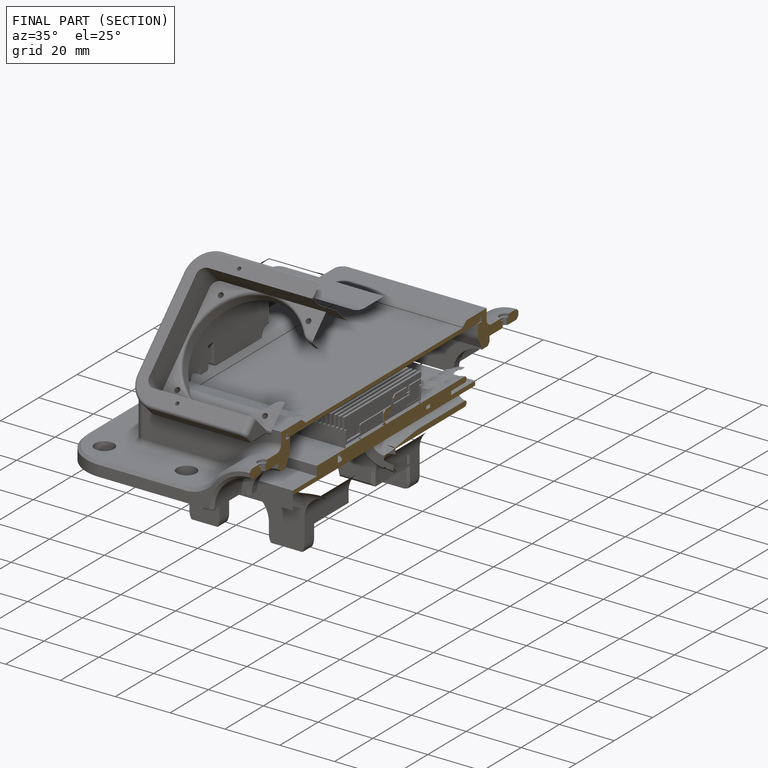
[diagram: finished part — half-section view (interior)]
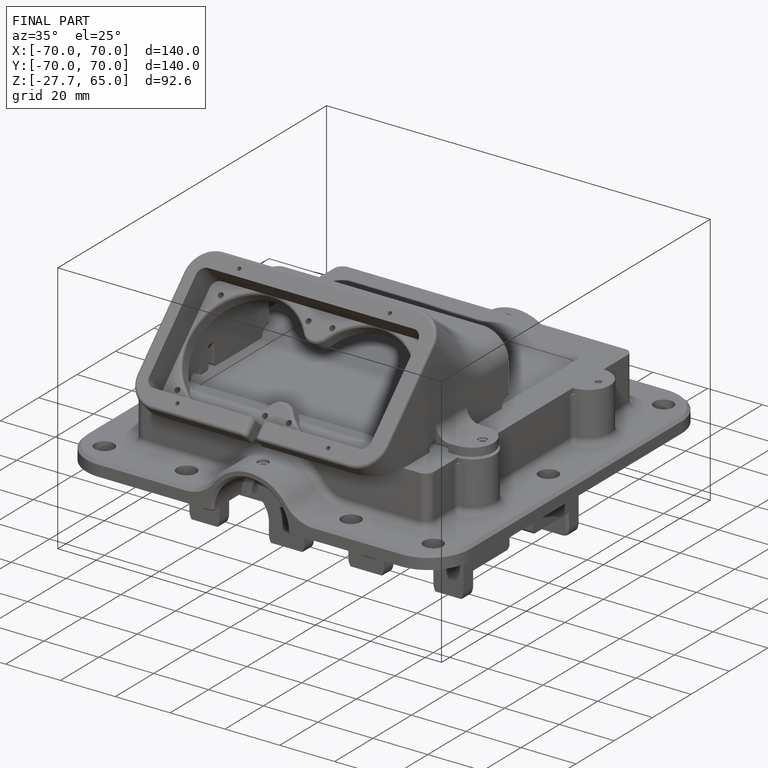
[diagram: finished part — iso view with bounding-box wireframe]
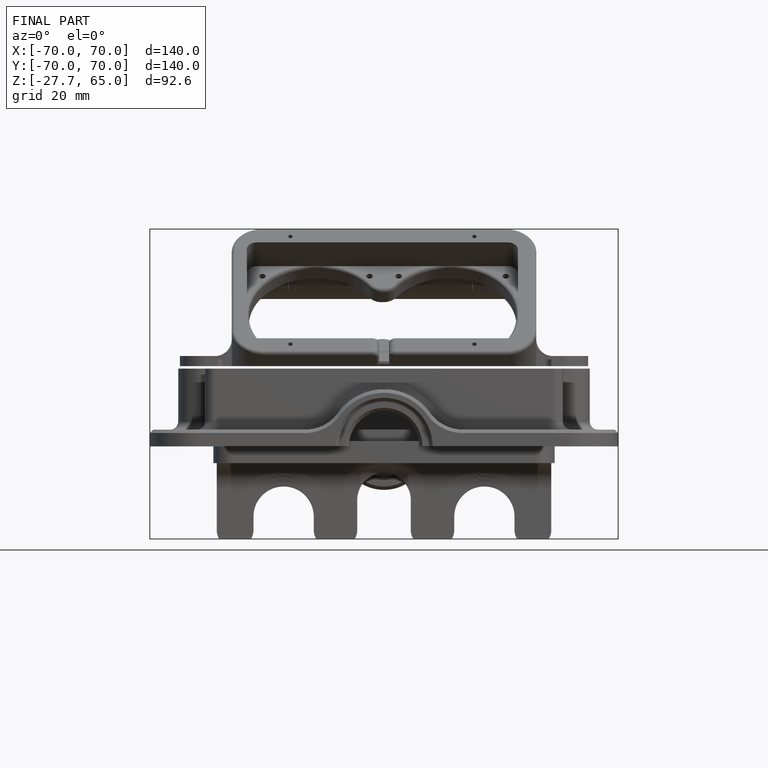
[diagram: finished part — front view with bounding-box wireframe]
